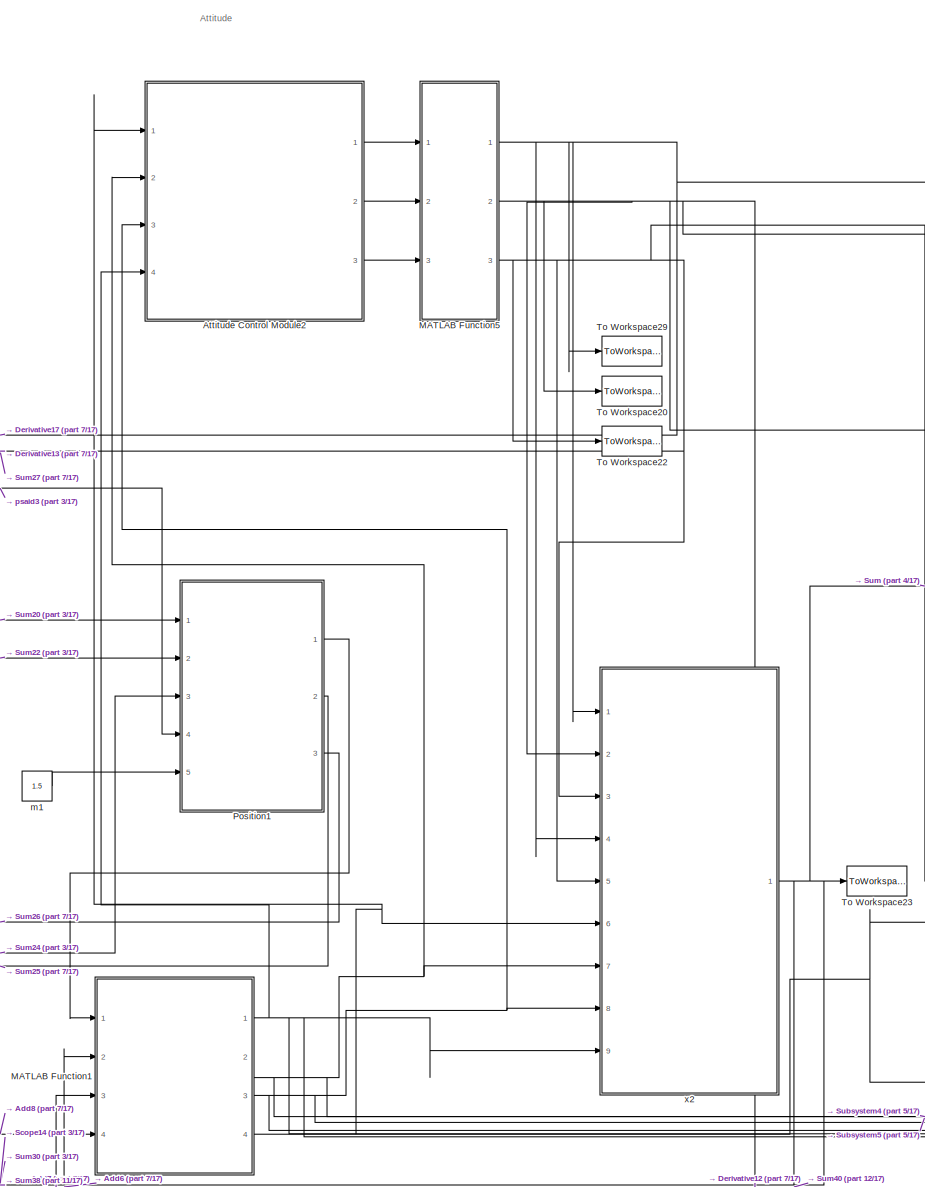
[diagram: root canvas - part 1/17, top left region]
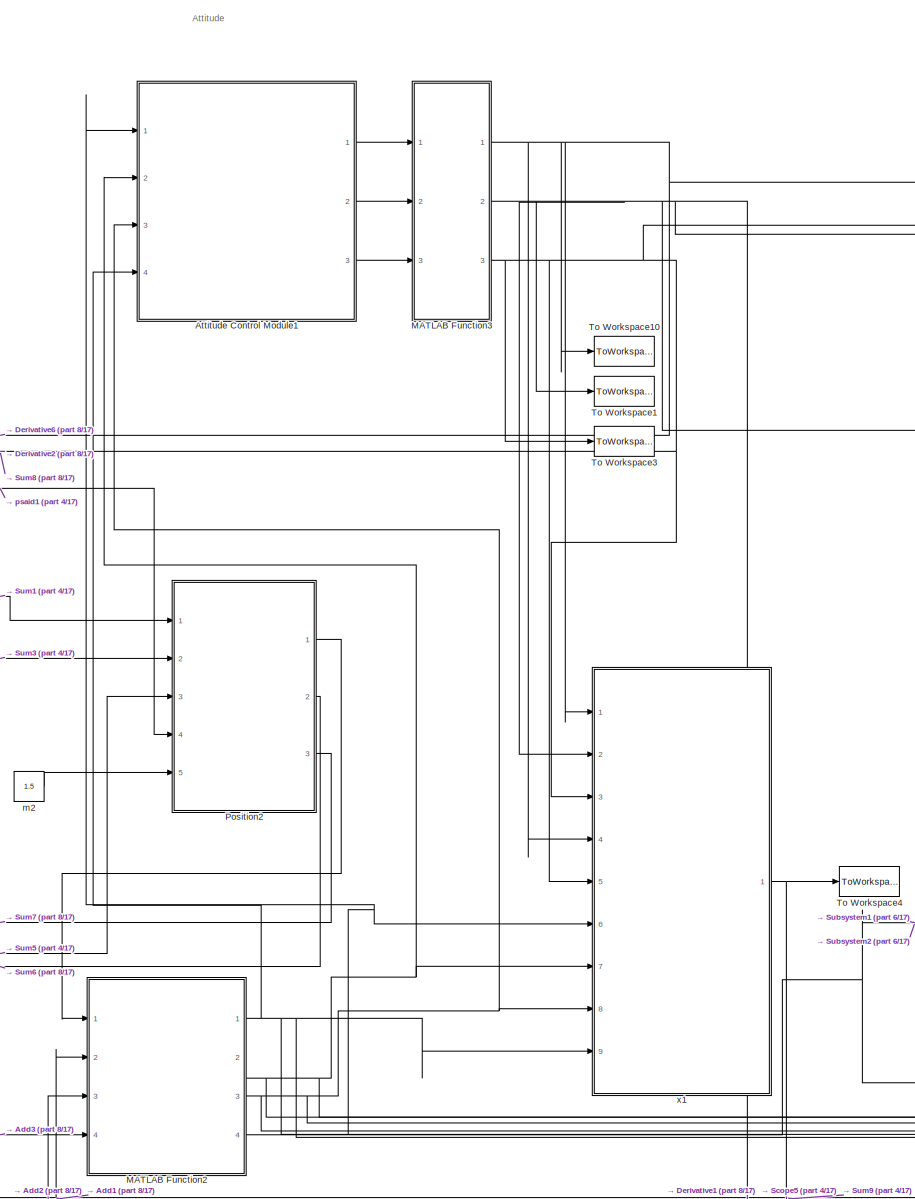
[diagram: root canvas - part 2/17, top right region]
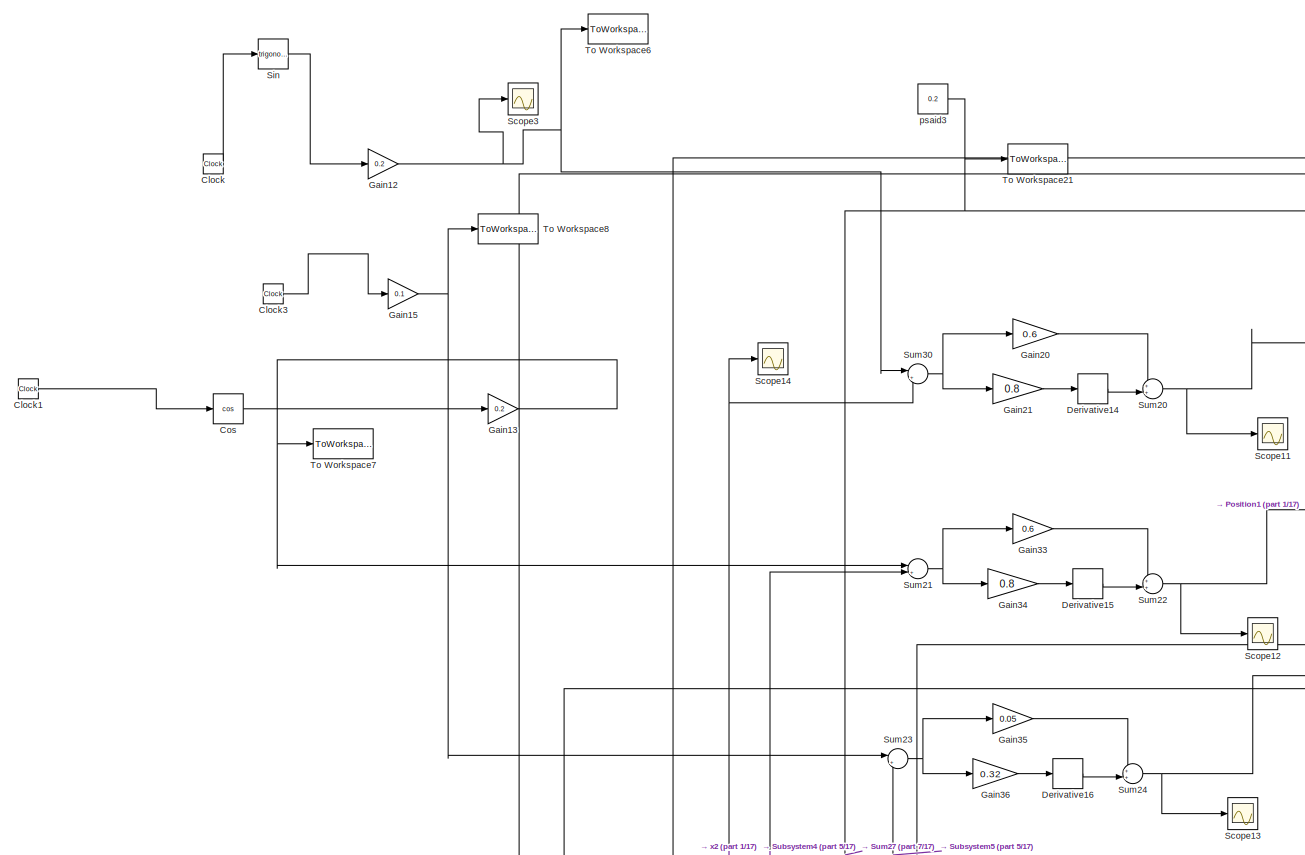
[diagram: root canvas - part 3/17, top left region]
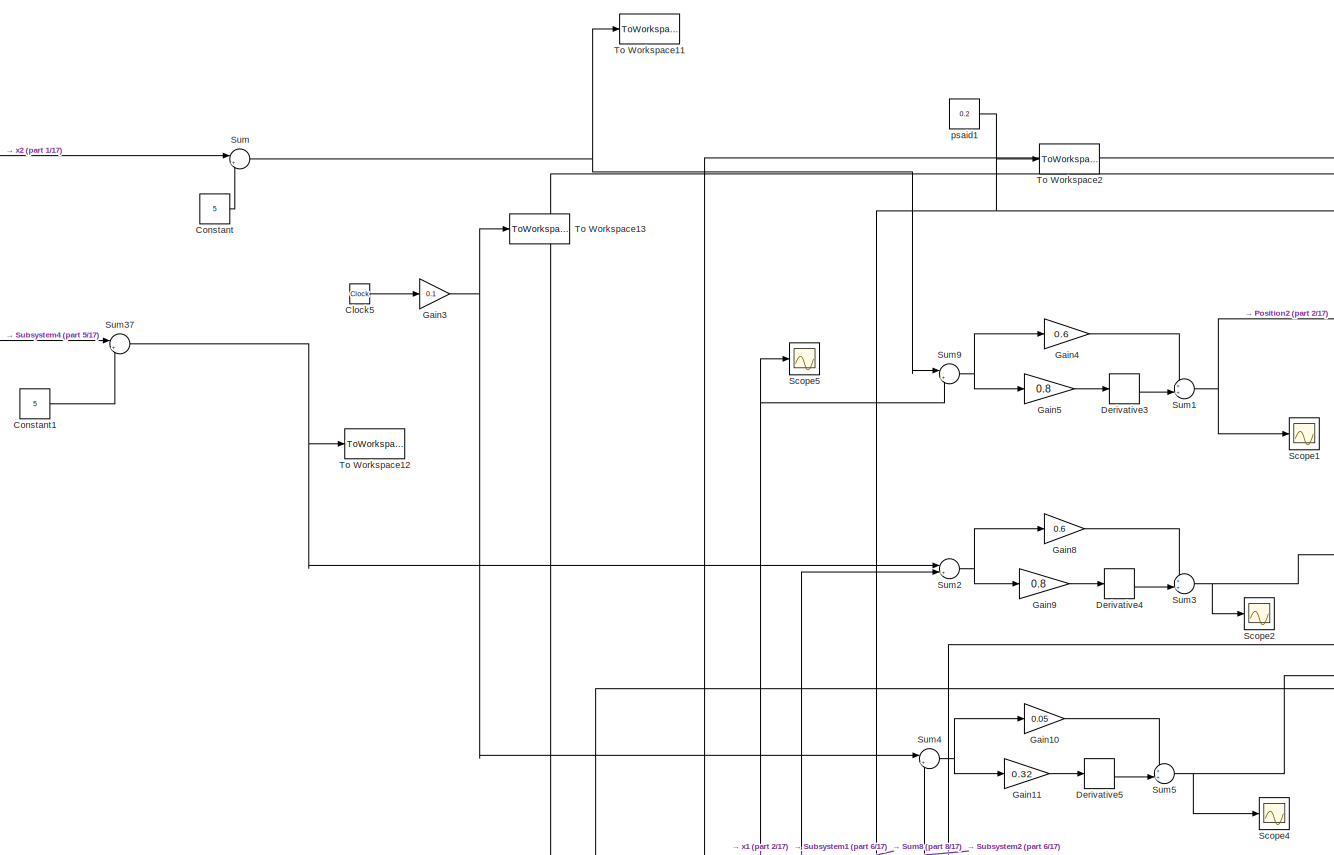
[diagram: root canvas - part 4/17, top center region]
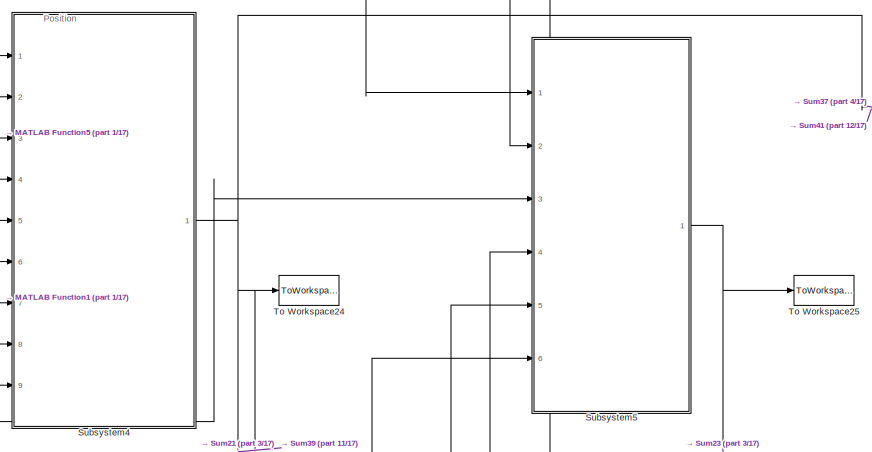
[diagram: root canvas - part 5/17, top center region]
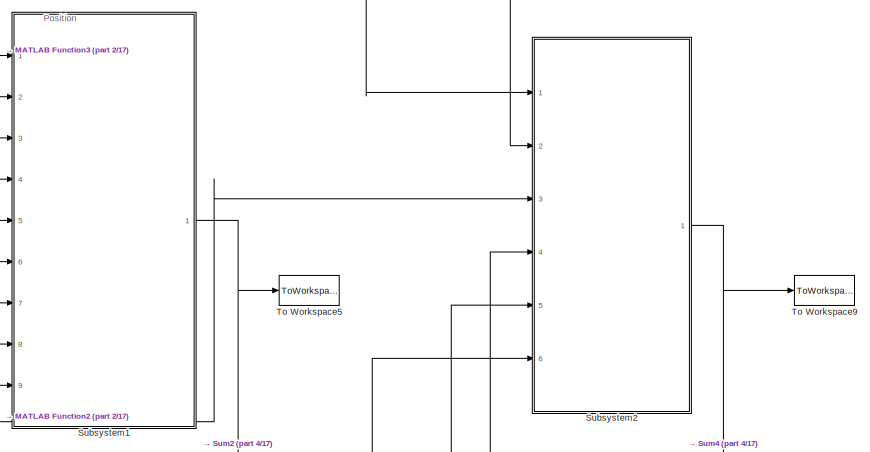
[diagram: root canvas - part 6/17, top right region]
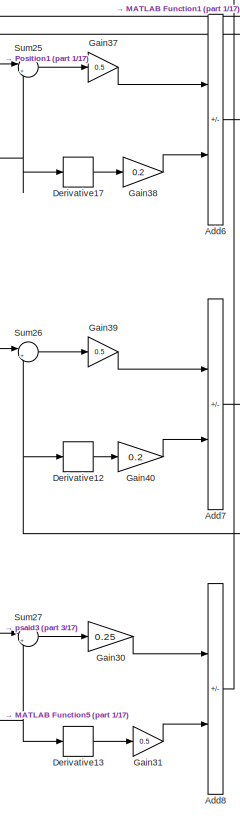
[diagram: root canvas - part 7/17, middle left region]
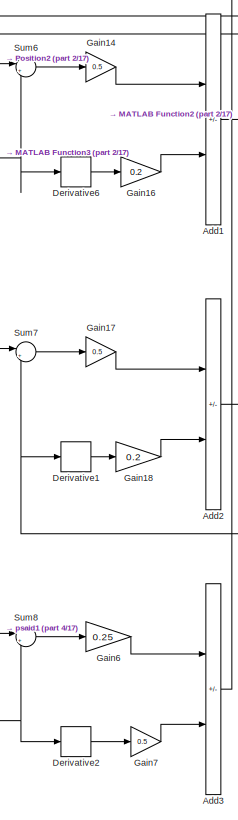
[diagram: root canvas - part 8/17, central region]
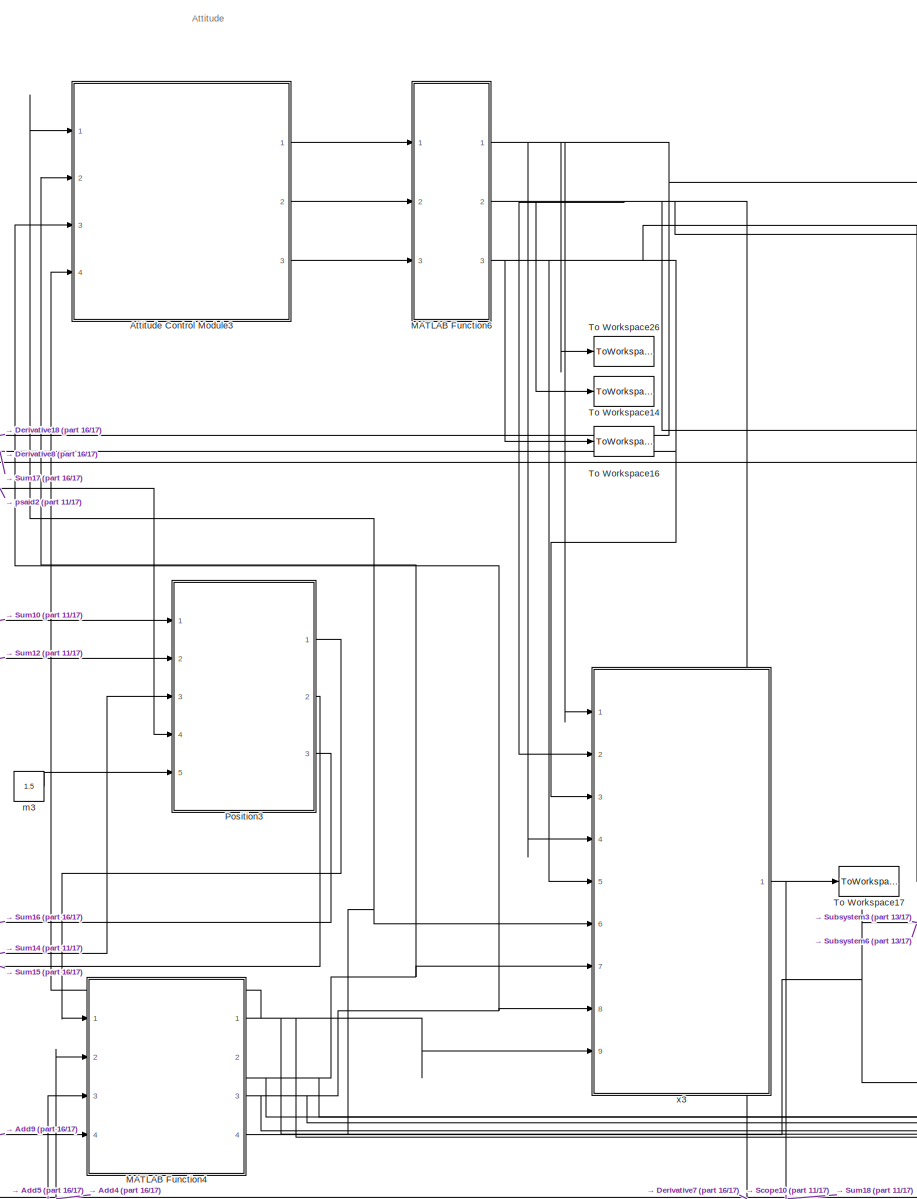
[diagram: root canvas - part 9/17, bottom left region]
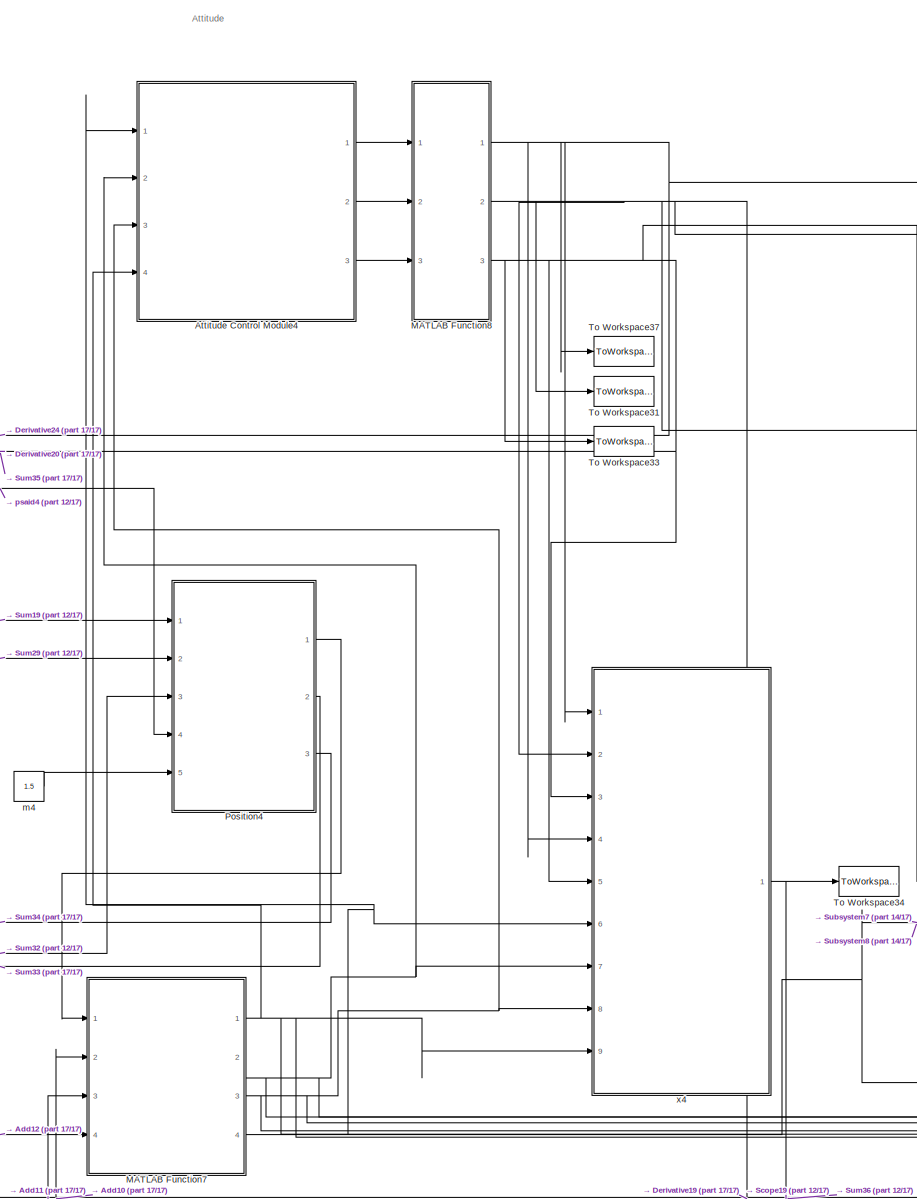
[diagram: root canvas - part 10/17, bottom right region]
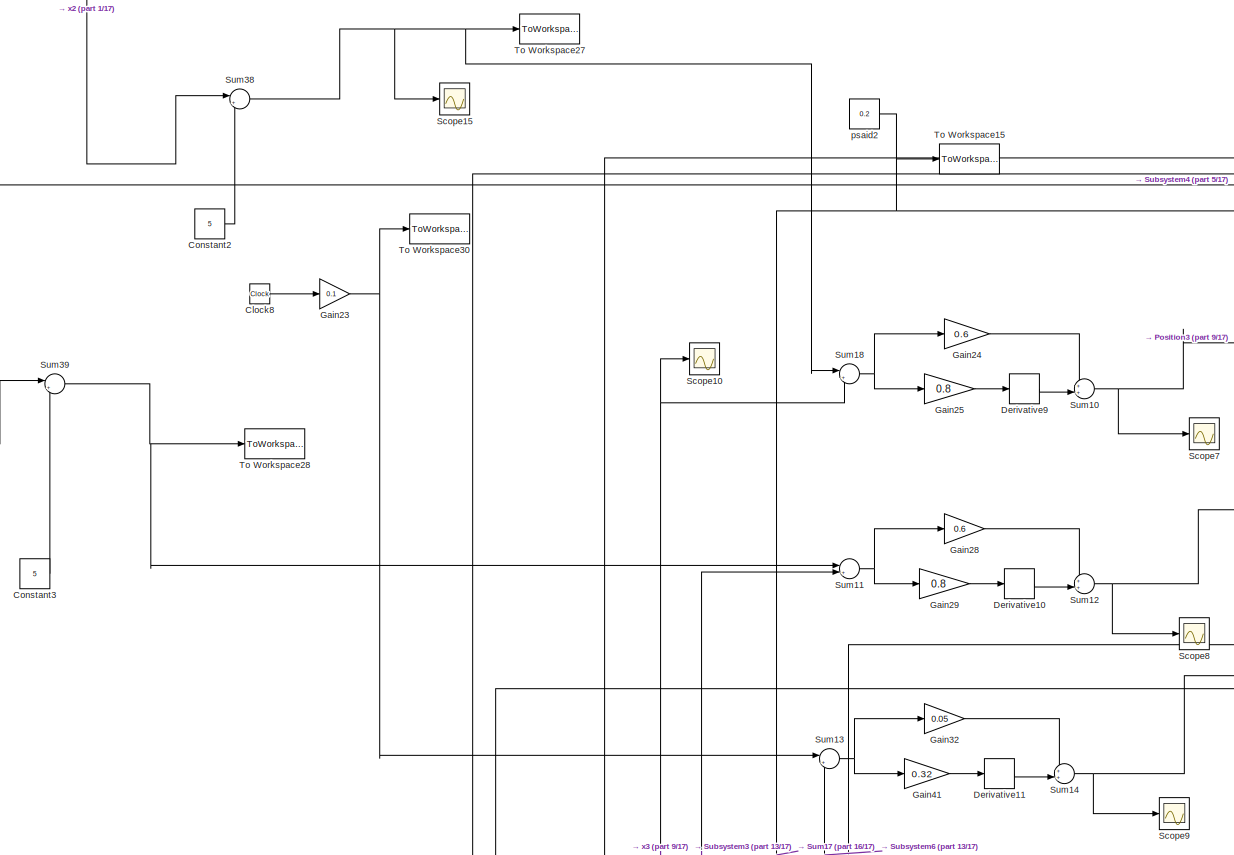
[diagram: root canvas - part 11/17, bottom left region]
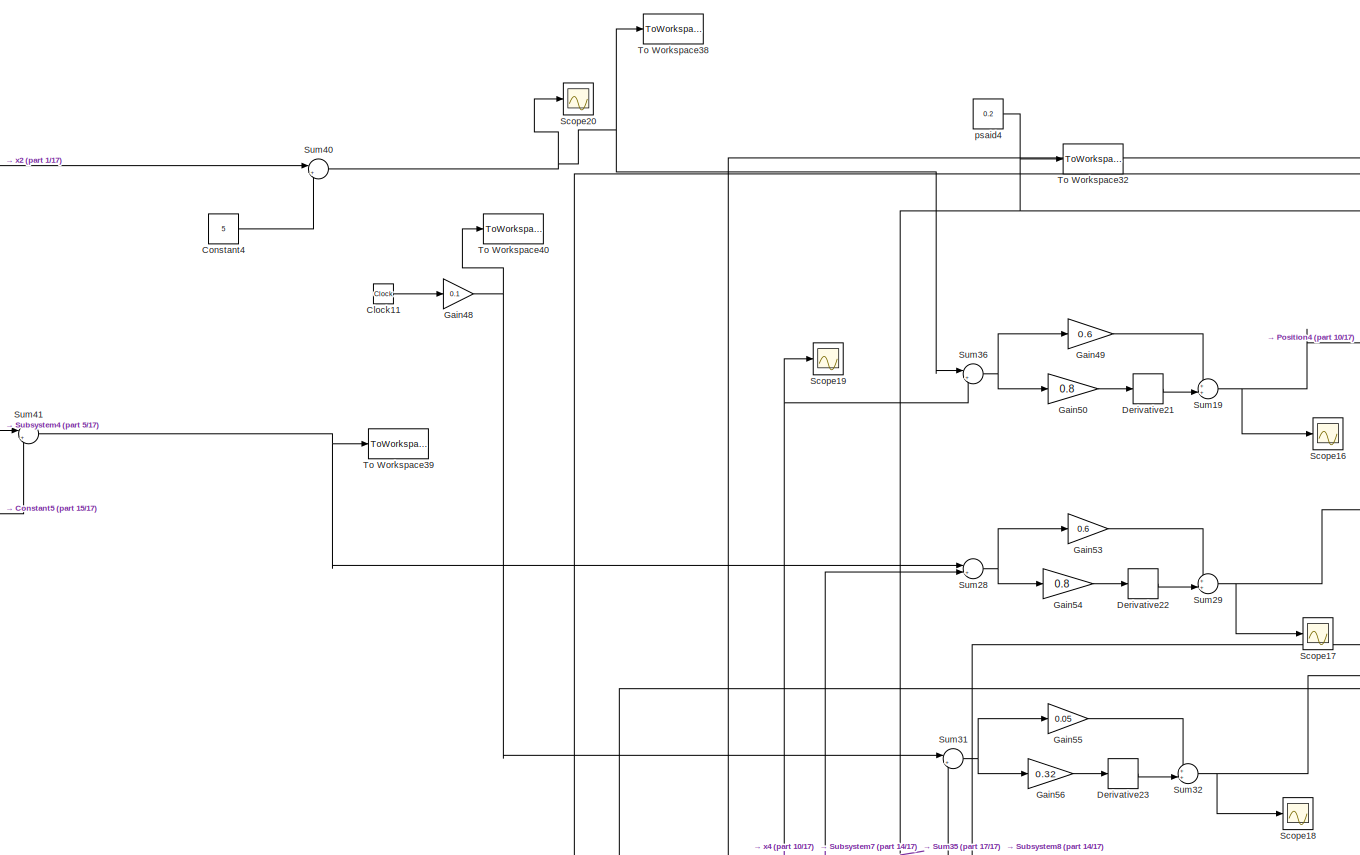
[diagram: root canvas - part 12/17, bottom center region]
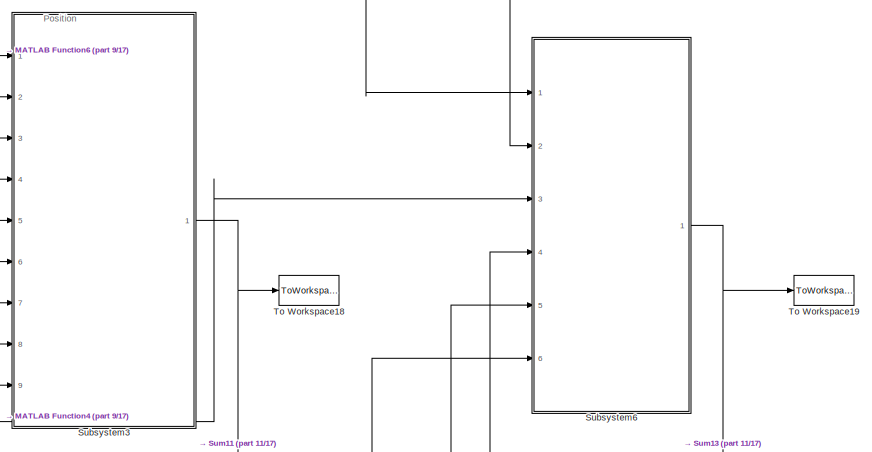
[diagram: root canvas - part 13/17, bottom center region]
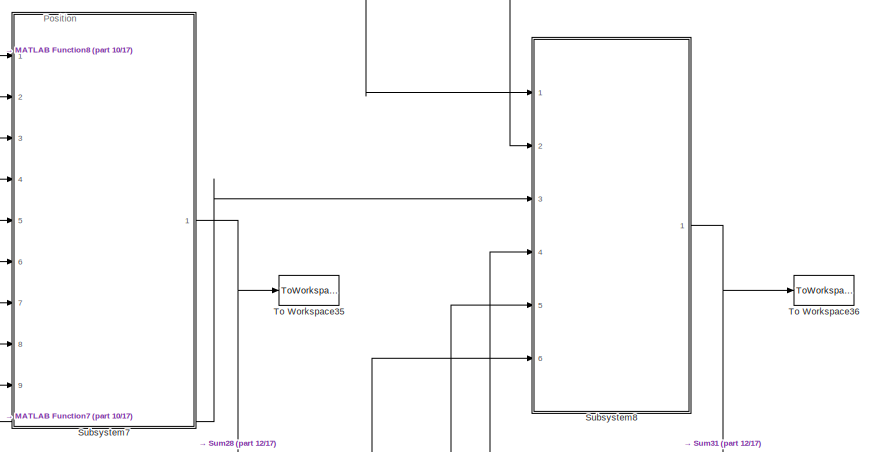
[diagram: root canvas - part 14/17, bottom right region]
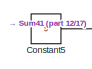
[diagram: root canvas - part 15/17, bottom center region]
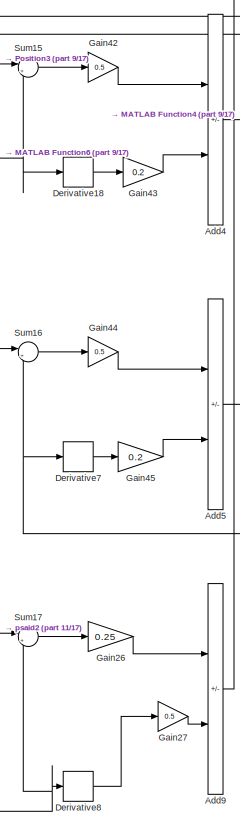
[diagram: root canvas - part 16/17, bottom left region]
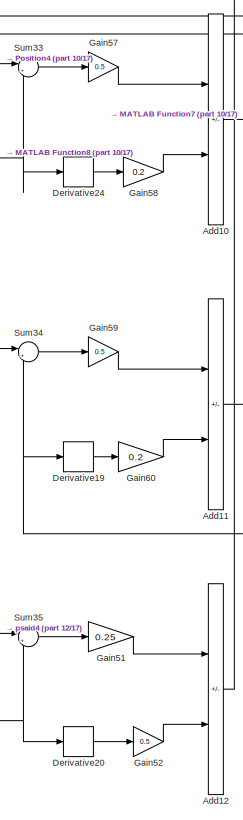
[diagram: root canvas - part 17/17, bottom right region]
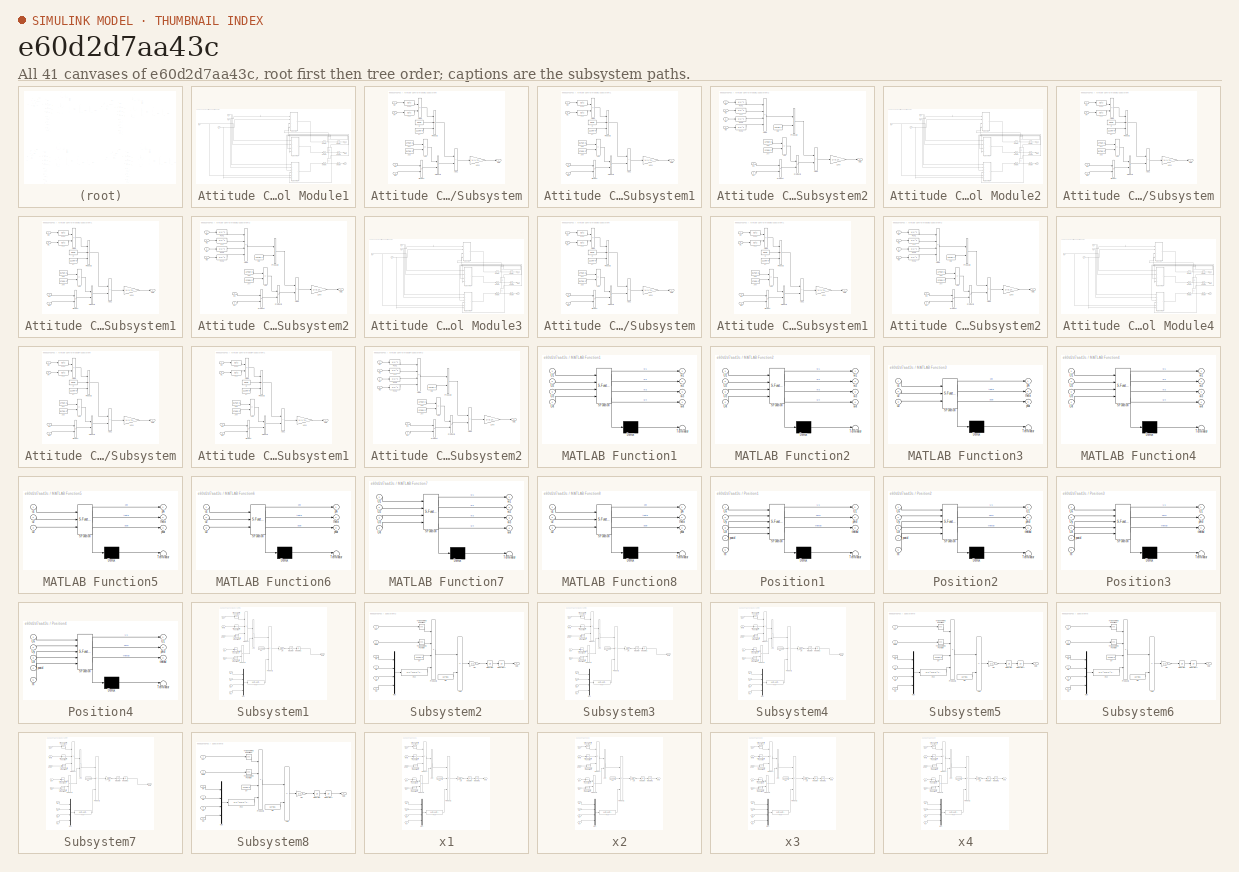
[diagram: thumbnail index - all 41 canvases of the model, root first then tree order]
MODEL slx_e60d2d7aa43c
KIND model
CONFIG AbsTol = auto
CONFIG EnableMultiTasking = off
CONFIG FixedStep = 0.1
CONFIG MaxStep = auto
CONFIG MinStep = auto
CONFIG RelTol = 1e-3
CONFIG SampleTimeConstraint = Unconstrained
CONFIG SolverName = FixedStepAuto
CONFIG StartTime = 0.0
CONFIG StopTime = 150
BLOCK [Sum] Add1
  IconShape = rectangular
  Inputs = +-
  Ports = [2, 1]
BLOCK [Sum] Add10
  IconShape = rectangular
  Inputs = +-
  Ports = [2, 1]
BLOCK [Sum] Add11
  IconShape = rectangular
  Inputs = +-
  Ports = [2, 1]
BLOCK [Sum] Add12
  IconShape = rectangular
  Inputs = +-
  Ports = [2, 1]
BLOCK [Sum] Add2
  IconShape = rectangular
  Inputs = +-
  Ports = [2, 1]
BLOCK [Sum] Add3
  IconShape = rectangular
  Inputs = +-
  Ports = [2, 1]
BLOCK [Sum] Add4
  IconShape = rectangular
  Inputs = +-
  Ports = [2, 1]
BLOCK [Sum] Add5
  IconShape = rectangular
  Inputs = +-
  Ports = [2, 1]
BLOCK [Sum] Add6
  IconShape = rectangular
  Inputs = +-
  Ports = [2, 1]
BLOCK [Sum] Add7
  IconShape = rectangular
  Inputs = +-
  Ports = [2, 1]
BLOCK [Sum] Add8
  IconShape = rectangular
  Inputs = +-
  Ports = [2, 1]
BLOCK [Sum] Add9
  IconShape = rectangular
  Inputs = +-
  Ports = [2, 1]
BLOCK [SubSystem] Attitude Control Module1
  Ports = [4, 3]
  RequestExecContextInheritance = off
BLOCK [Integrator] Attitude Control Module1/Integrator
  Ports = [1, 1]
BLOCK [Integrator] Attitude Control Module1/Integrator1
  Ports = [1, 1]
BLOCK [Integrator] Attitude Control Module1/Integrator2
  Ports = [1, 1]
BLOCK [Integrator] Attitude Control Module1/Integrator3
  Ports = [1, 1]
BLOCK [Integrator] Attitude Control Module1/Integrator4
  Ports = [1, 1]
BLOCK [Integrator] Attitude Control Module1/Integrator5
  Ports = [1, 1]
BLOCK [SubSystem] Attitude Control Module1/Subsystem
  Ports = [4, 1]
  RequestExecContextInheritance = off
BLOCK [Gain] Attitude Control Module1/Subsystem/1//Jxx
  Gain = 1/(1.745e-2)
BLOCK [Sum] Attitude Control Module1/Subsystem/Add
  IconShape = rectangular
  Inputs = +-
  Ports = [2, 1]
BLOCK [Sum] Attitude Control Module1/Subsystem/Add1
  IconShape = rectangular
  Ports = [2, 1]
BLOCK [Sum] Attitude Control Module1/Subsystem/Add2
  IconShape = rectangular
  Inputs = +-
  Ports = [2, 1]
BLOCK [Constant] Attitude Control Module1/Subsystem/CT
  Value = 1.116e-5
BLOCK [Fcn] Attitude Control Module1/Subsystem/Fcn
  Expr = u(1)^2
BLOCK [Fcn] Attitude Control Module1/Subsystem/Fcn1
  Expr = u(1)^2
BLOCK [Inport] Attitude Control Module1/Subsystem/In3
  Port = 3
BLOCK [Inport] Attitude Control Module1/Subsystem/In4
  Port = 4
BLOCK [Constant] Attitude Control Module1/Subsystem/Jyy
  Value = 1.745e-2
BLOCK [Constant] Attitude Control Module1/Subsystem/Jzz 
  Value = 3.175e-2
BLOCK [Outport] Attitude Control Module1/Subsystem/Out1
  VectorParamsAs1DForOutWhenUnconnected = off
BLOCK [Product] Attitude Control Module1/Subsystem/Product
  Ports = [2, 1]
BLOCK [Product] Attitude Control Module1/Subsystem/Product1
  Ports = [2, 1]
BLOCK [Product] Attitude Control Module1/Subsystem/Product2
  Inputs = 3
  Ports = [3, 1]
BLOCK [Constant] Attitude Control Module1/Subsystem/d
  Value = 0.225
BLOCK [Inport] Attitude Control Module1/Subsystem/w2
BLOCK [Inport] Attitude Control Module1/Subsystem/w4
  Port = 2
BLOCK [SubSystem] Attitude Control Module1/Subsystem1
  Ports = [4, 1]
  RequestExecContextInheritance = off
BLOCK [Gain] Attitude Control Module1/Subsystem1/1//Jxx
  Gain = 1/(1.745e-2)
BLOCK [Sum] Attitude Control Module1/Subsystem1/Add
  IconShape = rectangular
  Inputs = +-
  Ports = [2, 1]
BLOCK [Sum] Attitude Control Module1/Subsystem1/Add1
  IconShape = rectangular
  Ports = [2, 1]
BLOCK [Sum] Attitude Control Module1/Subsystem1/Add2
  IconShape = rectangular
  Inputs = +-
  Ports = [2, 1]
BLOCK [Constant] Attitude Control Module1/Subsystem1/CT
  Value = 1.116e-5
BLOCK [Fcn] Attitude Control Module1/Subsystem1/Fcn
  Expr = u(1)^2
BLOCK [Fcn] Attitude Control Module1/Subsystem1/Fcn1
  Expr = u(1)^2
BLOCK [Inport] Attitude Control Module1/Subsystem1/In3
  Port = 3
BLOCK [Inport] Attitude Control Module1/Subsystem1/In4
  Port = 4
BLOCK [Constant] Attitude Control Module1/Subsystem1/Jxx
  Value = 1.745e-2
BLOCK [Constant] Attitude Control Module1/Subsystem1/Jzz
  Value = 3.175e-2
BLOCK [Outport] Attitude Control Module1/Subsystem1/Out1
  VectorParamsAs1DForOutWhenUnconnected = off
BLOCK [Product] Attitude Control Module1/Subsystem1/Product
  Ports = [2, 1]
BLOCK [Product] Attitude Control Module1/Subsystem1/Product1
  Ports = [2, 1]
BLOCK [Product] Attitude Control Module1/Subsystem1/Product2
  Inputs = 3
  Ports = [3, 1]
BLOCK [Constant] Attitude Control Module1/Subsystem1/d
  Value = 0.225
BLOCK [Inport] Attitude Control Module1/Subsystem1/w1
  Port = 2
BLOCK [Inport] Attitude Control Module1/Subsystem1/w3
BLOCK [SubSystem] Attitude Control Module1/Subsystem2
  Ports = [6, 1]
  RequestExecContextInheritance = off
BLOCK [Gain] Attitude Control Module1/Subsystem2/1//Jxx
  Gain = 1/(3.175e-2)
BLOCK [Sum] Attitude Control Module1/Subsystem2/Add
  IconShape = rectangular
  Inputs = +-
  Ports = [2, 1]
BLOCK [Sum] Attitude Control Module1/Subsystem2/Add1
  IconShape = rectangular
  Ports = [2, 1]
BLOCK [Sum] Attitude Control Module1/Subsystem2/Add2
  IconShape = rectangular
  Inputs = +-+-
  Ports = [4, 1]
BLOCK [Constant] Attitude Control Module1/Subsystem2/CM
  Value = 1.474e-7
BLOCK [Fcn] Attitude Control Module1/Subsystem2/Fcn
  Expr = u(1)^2
BLOCK [Fcn] Attitude Control Module1/Subsystem2/Fcn1
  Expr = u(1)^2
BLOCK [Fcn] Attitude Control Module1/Subsystem2/Fcn2
  Expr = u(1)^2
BLOCK [Fcn] Attitude Control Module1/Subsystem2/Fcn3
  Expr = u(1)^2
BLOCK [Inport] Attitude Control Module1/Subsystem2/In3
  Port = 3
BLOCK [Inport] Attitude Control Module1/Subsystem2/In4
  Port = 4
BLOCK [Constant] Attitude Control Module1/Subsystem2/Jxx
  Value = 1.745e-2
BLOCK [Constant] Attitude Control Module1/Subsystem2/Jyy
  Value = 1.745e-2
BLOCK [Outport] Attitude Control Module1/Subsystem2/Out1
  VectorParamsAs1DForOutWhenUnconnected = off
BLOCK [Product] Attitude Control Module1/Subsystem2/Product
  Ports = [2, 1]
BLOCK [Product] Attitude Control Module1/Subsystem2/Product1
  Ports = [2, 1]
BLOCK [Product] Attitude Control Module1/Subsystem2/Product2
  Ports = [2, 1]
BLOCK [Inport] Attitude Control Module1/Subsystem2/w1
BLOCK [Inport] Attitude Control Module1/Subsystem2/w2
  Port = 2
BLOCK [Inport] Attitude Control Module1/Subsystem2/w3
  Port = 5
BLOCK [Inport] Attitude Control Module1/Subsystem2/w4
  Port = 6
BLOCK [Outport] Attitude Control Module1/phi
  VectorParamsAs1DForOutWhenUnconnected = off
BLOCK [Outport] Attitude Control Module1/psai
  Port = 3
  VectorParamsAs1DForOutWhenUnconnected = off
BLOCK [Outport] Attitude Control Module1/theta
  Port = 2
  VectorParamsAs1DForOutWhenUnconnected = off
BLOCK [Inport] Attitude Control Module1/w1
  Port = 4
BLOCK [Inport] Attitude Control Module1/w2
  Port = 2
BLOCK [Inport] Attitude Control Module1/w3
  Port = 3
BLOCK [Inport] Attitude Control Module1/w4
BLOCK [SubSystem] Attitude Control Module2
  Ports = [4, 3]
  RequestExecContextInheritance = off
BLOCK [Integrator] Attitude Control Module2/Integrator
  Ports = [1, 1]
BLOCK [Integrator] Attitude Control Module2/Integrator1
  Ports = [1, 1]
BLOCK [Integrator] Attitude Control Module2/Integrator2
  Ports = [1, 1]
BLOCK [Integrator] Attitude Control Module2/Integrator3
  Ports = [1, 1]
BLOCK [Integrator] Attitude Control Module2/Integrator4
  Ports = [1, 1]
BLOCK [Integrator] Attitude Control Module2/Integrator5
  Ports = [1, 1]
BLOCK [SubSystem] Attitude Control Module2/Subsystem
  Ports = [4, 1]
  RequestExecContextInheritance = off
BLOCK [Gain] Attitude Control Module2/Subsystem/1//Jxx
  Gain = 1/(1.745e-2)
BLOCK [Sum] Attitude Control Module2/Subsystem/Add
  IconShape = rectangular
  Inputs = +-
  Ports = [2, 1]
BLOCK [Sum] Attitude Control Module2/Subsystem/Add1
  IconShape = rectangular
  Ports = [2, 1]
BLOCK [Sum] Attitude Control Module2/Subsystem/Add2
  IconShape = rectangular
  Inputs = +-
  Ports = [2, 1]
BLOCK [Constant] Attitude Control Module2/Subsystem/CT
  Value = 1.116e-5
BLOCK [Fcn] Attitude Control Module2/Subsystem/Fcn
  Expr = u(1)^2
BLOCK [Fcn] Attitude Control Module2/Subsystem/Fcn1
  Expr = u(1)^2
BLOCK [Inport] Attitude Control Module2/Subsystem/In3
  Port = 3
BLOCK [Inport] Attitude Control Module2/Subsystem/In4
  Port = 4
BLOCK [Constant] Attitude Control Module2/Subsystem/Jyy
  Value = 1.745e-2
BLOCK [Constant] Attitude Control Module2/Subsystem/Jzz 
  Value = 3.175e-2
BLOCK [Outport] Attitude Control Module2/Subsystem/Out1
  VectorParamsAs1DForOutWhenUnconnected = off
BLOCK [Product] Attitude Control Module2/Subsystem/Product
  Ports = [2, 1]
BLOCK [Product] Attitude Control Module2/Subsystem/Product1
  Ports = [2, 1]
BLOCK [Product] Attitude Control Module2/Subsystem/Product2
  Inputs = 3
  Ports = [3, 1]
BLOCK [Constant] Attitude Control Module2/Subsystem/d
  Value = 0.225
BLOCK [Inport] Attitude Control Module2/Subsystem/w2
BLOCK [Inport] Attitude Control Module2/Subsystem/w4
  Port = 2
BLOCK [SubSystem] Attitude Control Module2/Subsystem1
  Ports = [4, 1]
  RequestExecContextInheritance = off
BLOCK [Gain] Attitude Control Module2/Subsystem1/1//Jxx
  Gain = 1/(1.745e-2)
BLOCK [Sum] Attitude Control Module2/Subsystem1/Add
  IconShape = rectangular
  Inputs = +-
  Ports = [2, 1]
BLOCK [Sum] Attitude Control Module2/Subsystem1/Add1
  IconShape = rectangular
  Ports = [2, 1]
BLOCK [Sum] Attitude Control Module2/Subsystem1/Add2
  IconShape = rectangular
  Inputs = +-
  Ports = [2, 1]
BLOCK [Constant] Attitude Control Module2/Subsystem1/CT
  Value = 1.116e-5
BLOCK [Fcn] Attitude Control Module2/Subsystem1/Fcn
  Expr = u(1)^2
BLOCK [Fcn] Attitude Control Module2/Subsystem1/Fcn1
  Expr = u(1)^2
BLOCK [Inport] Attitude Control Module2/Subsystem1/In3
  Port = 3
BLOCK [Inport] Attitude Control Module2/Subsystem1/In4
  Port = 4
BLOCK [Constant] Attitude Control Module2/Subsystem1/Jxx
  Value = 1.745e-2
BLOCK [Constant] Attitude Control Module2/Subsystem1/Jzz
  Value = 3.175e-2
BLOCK [Outport] Attitude Control Module2/Subsystem1/Out1
  VectorParamsAs1DForOutWhenUnconnected = off
BLOCK [Product] Attitude Control Module2/Subsystem1/Product
  Ports = [2, 1]
BLOCK [Product] Attitude Control Module2/Subsystem1/Product1
  Ports = [2, 1]
BLOCK [Product] Attitude Control Module2/Subsystem1/Product2
  Inputs = 3
  Ports = [3, 1]
BLOCK [Constant] Attitude Control Module2/Subsystem1/d
  Value = 0.225
BLOCK [Inport] Attitude Control Module2/Subsystem1/w1
  Port = 2
BLOCK [Inport] Attitude Control Module2/Subsystem1/w3
BLOCK [SubSystem] Attitude Control Module2/Subsystem2
  Ports = [6, 1]
  RequestExecContextInheritance = off
BLOCK [Gain] Attitude Control Module2/Subsystem2/1//Jxx
  Gain = 1/(3.175e-2)
BLOCK [Sum] Attitude Control Module2/Subsystem2/Add
  IconShape = rectangular
  Inputs = +-
  Ports = [2, 1]
BLOCK [Sum] Attitude Control Module2/Subsystem2/Add1
  IconShape = rectangular
  Ports = [2, 1]
BLOCK [Sum] Attitude Control Module2/Subsystem2/Add2
  IconShape = rectangular
  Inputs = +-+-
  Ports = [4, 1]
BLOCK [Constant] Attitude Control Module2/Subsystem2/CM
  Value = 1.474e-7
BLOCK [Fcn] Attitude Control Module2/Subsystem2/Fcn
  Expr = u(1)^2
BLOCK [Fcn] Attitude Control Module2/Subsystem2/Fcn1
  Expr = u(1)^2
BLOCK [Fcn] Attitude Control Module2/Subsystem2/Fcn2
  Expr = u(1)^2
BLOCK [Fcn] Attitude Control Module2/Subsystem2/Fcn3
  Expr = u(1)^2
BLOCK [Inport] Attitude Control Module2/Subsystem2/In3
  Port = 3
BLOCK [Inport] Attitude Control Module2/Subsystem2/In4
  Port = 4
BLOCK [Constant] Attitude Control Module2/Subsystem2/Jxx
  Value = 1.745e-2
BLOCK [Constant] Attitude Control Module2/Subsystem2/Jyy
  Value = 1.745e-2
BLOCK [Outport] Attitude Control Module2/Subsystem2/Out1
  VectorParamsAs1DForOutWhenUnconnected = off
BLOCK [Product] Attitude Control Module2/Subsystem2/Product
  Ports = [2, 1]
BLOCK [Product] Attitude Control Module2/Subsystem2/Product1
  Ports = [2, 1]
BLOCK [Product] Attitude Control Module2/Subsystem2/Product2
  Ports = [2, 1]
BLOCK [Inport] Attitude Control Module2/Subsystem2/w1
BLOCK [Inport] Attitude Control Module2/Subsystem2/w2
  Port = 2
BLOCK [Inport] Attitude Control Module2/Subsystem2/w3
  Port = 5
BLOCK [Inport] Attitude Control Module2/Subsystem2/w4
  Port = 6
BLOCK [Outport] Attitude Control Module2/phi
  VectorParamsAs1DForOutWhenUnconnected = off
BLOCK [Outport] Attitude Control Module2/psai
  Port = 3
  VectorParamsAs1DForOutWhenUnconnected = off
BLOCK [Outport] Attitude Control Module2/theta
  Port = 2
  VectorParamsAs1DForOutWhenUnconnected = off
BLOCK [Inport] Attitude Control Module2/w1
  Port = 4
BLOCK [Inport] Attitude Control Module2/w2
  Port = 2
BLOCK [Inport] Attitude Control Module2/w3
  Port = 3
BLOCK [Inport] Attitude Control Module2/w4
BLOCK [SubSystem] Attitude Control Module3
  Ports = [4, 3]
  RequestExecContextInheritance = off
BLOCK [Integrator] Attitude Control Module3/Integrator
  Ports = [1, 1]
BLOCK [Integrator] Attitude Control Module3/Integrator1
  Ports = [1, 1]
BLOCK [Integrator] Attitude Control Module3/Integrator2
  Ports = [1, 1]
BLOCK [Integrator] Attitude Control Module3/Integrator3
  Ports = [1, 1]
BLOCK [Integrator] Attitude Control Module3/Integrator4
  Ports = [1, 1]
BLOCK [Integrator] Attitude Control Module3/Integrator5
  Ports = [1, 1]
BLOCK [SubSystem] Attitude Control Module3/Subsystem
  Ports = [4, 1]
  RequestExecContextInheritance = off
BLOCK [Gain] Attitude Control Module3/Subsystem/1//Jxx
  Gain = 1/(1.745e-2)
BLOCK [Sum] Attitude Control Module3/Subsystem/Add
  IconShape = rectangular
  Inputs = +-
  Ports = [2, 1]
BLOCK [Sum] Attitude Control Module3/Subsystem/Add1
  IconShape = rectangular
  Ports = [2, 1]
BLOCK [Sum] Attitude Control Module3/Subsystem/Add2
  IconShape = rectangular
  Inputs = +-
  Ports = [2, 1]
BLOCK [Constant] Attitude Control Module3/Subsystem/CT
  Value = 1.116e-5
BLOCK [Fcn] Attitude Control Module3/Subsystem/Fcn
  Expr = u(1)^2
BLOCK [Fcn] Attitude Control Module3/Subsystem/Fcn1
  Expr = u(1)^2
BLOCK [Inport] Attitude Control Module3/Subsystem/In3
  Port = 3
BLOCK [Inport] Attitude Control Module3/Subsystem/In4
  Port = 4
BLOCK [Constant] Attitude Control Module3/Subsystem/Jyy
  Value = 1.745e-2
BLOCK [Constant] Attitude Control Module3/Subsystem/Jzz 
  Value = 3.175e-2
BLOCK [Outport] Attitude Control Module3/Subsystem/Out1
  VectorParamsAs1DForOutWhenUnconnected = off
BLOCK [Product] Attitude Control Module3/Subsystem/Product
  Ports = [2, 1]
BLOCK [Product] Attitude Control Module3/Subsystem/Product1
  Ports = [2, 1]
BLOCK [Product] Attitude Control Module3/Subsystem/Product2
  Inputs = 3
  Ports = [3, 1]
BLOCK [Constant] Attitude Control Module3/Subsystem/d
  Value = 0.225
BLOCK [Inport] Attitude Control Module3/Subsystem/w2
BLOCK [Inport] Attitude Control Module3/Subsystem/w4
  Port = 2
BLOCK [SubSystem] Attitude Control Module3/Subsystem1
  Ports = [4, 1]
  RequestExecContextInheritance = off
BLOCK [Gain] Attitude Control Module3/Subsystem1/1//Jxx
  Gain = 1/(1.745e-2)
BLOCK [Sum] Attitude Control Module3/Subsystem1/Add
  IconShape = rectangular
  Inputs = +-
  Ports = [2, 1]
BLOCK [Sum] Attitude Control Module3/Subsystem1/Add1
  IconShape = rectangular
  Ports = [2, 1]
BLOCK [Sum] Attitude Control Module3/Subsystem1/Add2
  IconShape = rectangular
  Inputs = +-
  Ports = [2, 1]
BLOCK [Constant] Attitude Control Module3/Subsystem1/CT
  Value = 1.116e-5
BLOCK [Fcn] Attitude Control Module3/Subsystem1/Fcn
  Expr = u(1)^2
BLOCK [Fcn] Attitude Control Module3/Subsystem1/Fcn1
  Expr = u(1)^2
BLOCK [Inport] Attitude Control Module3/Subsystem1/In3
  Port = 3
BLOCK [Inport] Attitude Control Module3/Subsystem1/In4
  Port = 4
BLOCK [Constant] Attitude Control Module3/Subsystem1/Jxx
  Value = 1.745e-2
BLOCK [Constant] Attitude Control Module3/Subsystem1/Jzz
  Value = 3.175e-2
BLOCK [Outport] Attitude Control Module3/Subsystem1/Out1
  VectorParamsAs1DForOutWhenUnconnected = off
BLOCK [Product] Attitude Control Module3/Subsystem1/Product
  Ports = [2, 1]
BLOCK [Product] Attitude Control Module3/Subsystem1/Product1
  Ports = [2, 1]
BLOCK [Product] Attitude Control Module3/Subsystem1/Product2
  Inputs = 3
  Ports = [3, 1]
BLOCK [Constant] Attitude Control Module3/Subsystem1/d
  Value = 0.225
BLOCK [Inport] Attitude Control Module3/Subsystem1/w1
  Port = 2
BLOCK [Inport] Attitude Control Module3/Subsystem1/w3
BLOCK [SubSystem] Attitude Control Module3/Subsystem2
  Ports = [6, 1]
  RequestExecContextInheritance = off
BLOCK [Gain] Attitude Control Module3/Subsystem2/1//Jxx
  Gain = 1/(3.175e-2)
BLOCK [Sum] Attitude Control Module3/Subsystem2/Add
  IconShape = rectangular
  Inputs = +-
  Ports = [2, 1]
BLOCK [Sum] Attitude Control Module3/Subsystem2/Add1
  IconShape = rectangular
  Ports = [2, 1]
BLOCK [Sum] Attitude Control Module3/Subsystem2/Add2
  IconShape = rectangular
  Inputs = +-+-
  Ports = [4, 1]
BLOCK [Constant] Attitude Control Module3/Subsystem2/CM
  Value = 1.474e-7
BLOCK [Fcn] Attitude Control Module3/Subsystem2/Fcn
  Expr = u(1)^2
BLOCK [Fcn] Attitude Control Module3/Subsystem2/Fcn1
  Expr = u(1)^2
BLOCK [Fcn] Attitude Control Module3/Subsystem2/Fcn2
  Expr = u(1)^2
BLOCK [Fcn] Attitude Control Module3/Subsystem2/Fcn3
  Expr = u(1)^2
BLOCK [Inport] Attitude Control Module3/Subsystem2/In3
  Port = 3
BLOCK [Inport] Attitude Control Module3/Subsystem2/In4
  Port = 4
BLOCK [Constant] Attitude Control Module3/Subsystem2/Jxx
  Value = 1.745e-2
BLOCK [Constant] Attitude Control Module3/Subsystem2/Jyy
  Value = 1.745e-2
BLOCK [Outport] Attitude Control Module3/Subsystem2/Out1
  VectorParamsAs1DForOutWhenUnconnected = off
BLOCK [Product] Attitude Control Module3/Subsystem2/Product
  Ports = [2, 1]
BLOCK [Product] Attitude Control Module3/Subsystem2/Product1
  Ports = [2, 1]
BLOCK [Product] Attitude Control Module3/Subsystem2/Product2
  Ports = [2, 1]
BLOCK [Inport] Attitude Control Module3/Subsystem2/w1
BLOCK [Inport] Attitude Control Module3/Subsystem2/w2
  Port = 2
BLOCK [Inport] Attitude Control Module3/Subsystem2/w3
  Port = 5
BLOCK [Inport] Attitude Control Module3/Subsystem2/w4
  Port = 6
BLOCK [Outport] Attitude Control Module3/phi
  VectorParamsAs1DForOutWhenUnconnected = off
BLOCK [Outport] Attitude Control Module3/psai
  Port = 3
  VectorParamsAs1DForOutWhenUnconnected = off
BLOCK [Outport] Attitude Control Module3/theta
  Port = 2
  VectorParamsAs1DForOutWhenUnconnected = off
BLOCK [Inport] Attitude Control Module3/w1
  Port = 4
BLOCK [Inport] Attitude Control Module3/w2
  Port = 2
BLOCK [Inport] Attitude Control Module3/w3
  Port = 3
BLOCK [Inport] Attitude Control Module3/w4
BLOCK [SubSystem] Attitude Control Module4
  Ports = [4, 3]
  RequestExecContextInheritance = off
BLOCK [Integrator] Attitude Control Module4/Integrator
  Ports = [1, 1]
BLOCK [Integrator] Attitude Control Module4/Integrator1
  Ports = [1, 1]
BLOCK [Integrator] Attitude Control Module4/Integrator2
  Ports = [1, 1]
BLOCK [Integrator] Attitude Control Module4/Integrator3
  Ports = [1, 1]
BLOCK [Integrator] Attitude Control Module4/Integrator4
  Ports = [1, 1]
BLOCK [Integrator] Attitude Control Module4/Integrator5
  Ports = [1, 1]
BLOCK [SubSystem] Attitude Control Module4/Subsystem
  Ports = [4, 1]
  RequestExecContextInheritance = off
BLOCK [Gain] Attitude Control Module4/Subsystem/1//Jxx
  Gain = 1/(1.745e-2)
BLOCK [Sum] Attitude Control Module4/Subsystem/Add
  IconShape = rectangular
  Inputs = +-
  Ports = [2, 1]
BLOCK [Sum] Attitude Control Module4/Subsystem/Add1
  IconShape = rectangular
  Ports = [2, 1]
BLOCK [Sum] Attitude Control Module4/Subsystem/Add2
  IconShape = rectangular
  Inputs = +-
  Ports = [2, 1]
BLOCK [Constant] Attitude Control Module4/Subsystem/CT
  Value = 1.116e-5
BLOCK [Fcn] Attitude Control Module4/Subsystem/Fcn
  Expr = u(1)^2
BLOCK [Fcn] Attitude Control Module4/Subsystem/Fcn1
  Expr = u(1)^2
BLOCK [Inport] Attitude Control Module4/Subsystem/In3
  Port = 3
BLOCK [Inport] Attitude Control Module4/Subsystem/In4
  Port = 4
BLOCK [Constant] Attitude Control Module4/Subsystem/Jyy
  Value = 1.745e-2
BLOCK [Constant] Attitude Control Module4/Subsystem/Jzz 
  Value = 3.175e-2
BLOCK [Outport] Attitude Control Module4/Subsystem/Out1
  VectorParamsAs1DForOutWhenUnconnected = off
BLOCK [Product] Attitude Control Module4/Subsystem/Product
  Ports = [2, 1]
BLOCK [Product] Attitude Control Module4/Subsystem/Product1
  Ports = [2, 1]
BLOCK [Product] Attitude Control Module4/Subsystem/Product2
  Inputs = 3
  Ports = [3, 1]
BLOCK [Constant] Attitude Control Module4/Subsystem/d
  Value = 0.225
BLOCK [Inport] Attitude Control Module4/Subsystem/w2
BLOCK [Inport] Attitude Control Module4/Subsystem/w4
  Port = 2
BLOCK [SubSystem] Attitude Control Module4/Subsystem1
  Ports = [4, 1]
  RequestExecContextInheritance = off
BLOCK [Gain] Attitude Control Module4/Subsystem1/1//Jxx
  Gain = 1/(1.745e-2)
BLOCK [Sum] Attitude Control Module4/Subsystem1/Add
  IconShape = rectangular
  Inputs = +-
  Ports = [2, 1]
BLOCK [Sum] Attitude Control Module4/Subsystem1/Add1
  IconShape = rectangular
  Ports = [2, 1]
BLOCK [Sum] Attitude Control Module4/Subsystem1/Add2
  IconShape = rectangular
  Inputs = +-
  Ports = [2, 1]
BLOCK [Constant] Attitude Control Module4/Subsystem1/CT
  Value = 1.116e-5
BLOCK [Fcn] Attitude Control Module4/Subsystem1/Fcn
  Expr = u(1)^2
BLOCK [Fcn] Attitude Control Module4/Subsystem1/Fcn1
  Expr = u(1)^2
BLOCK [Inport] Attitude Control Module4/Subsystem1/In3
  Port = 3
BLOCK [Inport] Attitude Control Module4/Subsystem1/In4
  Port = 4
BLOCK [Constant] Attitude Control Module4/Subsystem1/Jxx
  Value = 1.745e-2
BLOCK [Constant] Attitude Control Module4/Subsystem1/Jzz
  Value = 3.175e-2
BLOCK [Outport] Attitude Control Module4/Subsystem1/Out1
  VectorParamsAs1DForOutWhenUnconnected = off
BLOCK [Product] Attitude Control Module4/Subsystem1/Product
  Ports = [2, 1]
BLOCK [Product] Attitude Control Module4/Subsystem1/Product1
  Ports = [2, 1]
BLOCK [Product] Attitude Control Module4/Subsystem1/Product2
  Inputs = 3
  Ports = [3, 1]
BLOCK [Constant] Attitude Control Module4/Subsystem1/d
  Value = 0.225
BLOCK [Inport] Attitude Control Module4/Subsystem1/w1
  Port = 2
BLOCK [Inport] Attitude Control Module4/Subsystem1/w3
BLOCK [SubSystem] Attitude Control Module4/Subsystem2
  Ports = [6, 1]
  RequestExecContextInheritance = off
BLOCK [Gain] Attitude Control Module4/Subsystem2/1//Jxx
  Gain = 1/(3.175e-2)
BLOCK [Sum] Attitude Control Module4/Subsystem2/Add
  IconShape = rectangular
  Inputs = +-
  Ports = [2, 1]
BLOCK [Sum] Attitude Control Module4/Subsystem2/Add1
  IconShape = rectangular
  Ports = [2, 1]
BLOCK [Sum] Attitude Control Module4/Subsystem2/Add2
  IconShape = rectangular
  Inputs = +-+-
  Ports = [4, 1]
BLOCK [Constant] Attitude Control Module4/Subsystem2/CM
  Value = 1.474e-7
BLOCK [Fcn] Attitude Control Module4/Subsystem2/Fcn
  Expr = u(1)^2
BLOCK [Fcn] Attitude Control Module4/Subsystem2/Fcn1
  Expr = u(1)^2
BLOCK [Fcn] Attitude Control Module4/Subsystem2/Fcn2
  Expr = u(1)^2
BLOCK [Fcn] Attitude Control Module4/Subsystem2/Fcn3
  Expr = u(1)^2
BLOCK [Inport] Attitude Control Module4/Subsystem2/In3
  Port = 3
BLOCK [Inport] Attitude Control Module4/Subsystem2/In4
  Port = 4
BLOCK [Constant] Attitude Control Module4/Subsystem2/Jxx
  Value = 1.745e-2
BLOCK [Constant] Attitude Control Module4/Subsystem2/Jyy
  Value = 1.745e-2
BLOCK [Outport] Attitude Control Module4/Subsystem2/Out1
  VectorParamsAs1DForOutWhenUnconnected = off
BLOCK [Product] Attitude Control Module4/Subsystem2/Product
  Ports = [2, 1]
BLOCK [Product] Attitude Control Module4/Subsystem2/Product1
  Ports = [2, 1]
BLOCK [Product] Attitude Control Module4/Subsystem2/Product2
  Ports = [2, 1]
BLOCK [Inport] Attitude Control Module4/Subsystem2/w1
BLOCK [Inport] Attitude Control Module4/Subsystem2/w2
  Port = 2
BLOCK [Inport] Attitude Control Module4/Subsystem2/w3
  Port = 5
BLOCK [Inport] Attitude Control Module4/Subsystem2/w4
  Port = 6
BLOCK [Outport] Attitude Control Module4/phi
  VectorParamsAs1DForOutWhenUnconnected = off
BLOCK [Outport] Attitude Control Module4/psai
  Port = 3
  VectorParamsAs1DForOutWhenUnconnected = off
BLOCK [Outport] Attitude Control Module4/theta
  Port = 2
  VectorParamsAs1DForOutWhenUnconnected = off
BLOCK [Inport] Attitude Control Module4/w1
  Port = 4
BLOCK [Inport] Attitude Control Module4/w2
  Port = 2
BLOCK [Inport] Attitude Control Module4/w3
  Port = 3
BLOCK [Inport] Attitude Control Module4/w4
BLOCK [Clock] Clock
BLOCK [Clock] Clock1
BLOCK [Clock] Clock11
BLOCK [Clock] Clock3
BLOCK [Clock] Clock5
BLOCK [Clock] Clock8
BLOCK [Constant] Constant
  Value = 5
BLOCK [Constant] Constant1
  Value = 5
BLOCK [Constant] Constant2
  Value = 5
BLOCK [Constant] Constant3
  Value = 5
BLOCK [Constant] Constant4
  Value = 5
BLOCK [Constant] Constant5
  Value = 5
BLOCK [Trigonometry] Cos
  Operator = cos
  Ports = [1, 1]
BLOCK [Derivative] Derivative1
BLOCK [Derivative] Derivative10
BLOCK [Derivative] Derivative11
BLOCK [Derivative] Derivative12
BLOCK [Derivative] Derivative13
BLOCK [Derivative] Derivative14
BLOCK [Derivative] Derivative15
BLOCK [Derivative] Derivative16
BLOCK [Derivative] Derivative17
BLOCK [Derivative] Derivative18
BLOCK [Derivative] Derivative19
BLOCK [Derivative] Derivative2
BLOCK [Derivative] Derivative20
BLOCK [Derivative] Derivative21
BLOCK [Derivative] Derivative22
BLOCK [Derivative] Derivative23
BLOCK [Derivative] Derivative24
BLOCK [Derivative] Derivative3
BLOCK [Derivative] Derivative4
BLOCK [Derivative] Derivative5
BLOCK [Derivative] Derivative6
BLOCK [Derivative] Derivative7
BLOCK [Derivative] Derivative8
BLOCK [Derivative] Derivative9
BLOCK [Gain] Gain10
  Gain = 0.05
BLOCK [Gain] Gain11
  Gain = 0.32
BLOCK [Gain] Gain12
  Gain = 0.2
BLOCK [Gain] Gain13
  Gain = 0.2
BLOCK [Gain] Gain14
  Gain = 0.5
BLOCK [Gain] Gain15
  Gain = 0.1
BLOCK [Gain] Gain16
  Gain = 0.2
BLOCK [Gain] Gain17
  Gain = 0.5
BLOCK [Gain] Gain18
  Gain = 0.2
BLOCK [Gain] Gain20
  Gain = 0.6
BLOCK [Gain] Gain21
  Gain = 0.8
BLOCK [Gain] Gain23
  Gain = 0.1
BLOCK [Gain] Gain24
  Gain = 0.6
BLOCK [Gain] Gain25
  Gain = 0.8
BLOCK [Gain] Gain26
  Gain = 0.25
BLOCK [Gain] Gain27
  Gain = 0.5
BLOCK [Gain] Gain28
  Gain = 0.6
BLOCK [Gain] Gain29
  Gain = 0.8
BLOCK [Gain] Gain3
  Gain = 0.1
BLOCK [Gain] Gain30
  Gain = 0.25
BLOCK [Gain] Gain31
  Gain = 0.5
BLOCK [Gain] Gain32
  Gain = 0.05
BLOCK [Gain] Gain33
  Gain = 0.6
BLOCK [Gain] Gain34
  Gain = 0.8
BLOCK [Gain] Gain35
  Gain = 0.05
BLOCK [Gain] Gain36
  Gain = 0.32
BLOCK [Gain] Gain37
  Gain = 0.5
BLOCK [Gain] Gain38
  Gain = 0.2
BLOCK [Gain] Gain39
  Gain = 0.5
BLOCK [Gain] Gain4
  Gain = 0.6
BLOCK [Gain] Gain40
  Gain = 0.2
BLOCK [Gain] Gain41
  Gain = 0.32
BLOCK [Gain] Gain42
  Gain = 0.5
BLOCK [Gain] Gain43
  Gain = 0.2
BLOCK [Gain] Gain44
  Gain = 0.5
BLOCK [Gain] Gain45
  Gain = 0.2
BLOCK [Gain] Gain48
  Gain = 0.1
BLOCK [Gain] Gain49
  Gain = 0.6
BLOCK [Gain] Gain5
  Gain = 0.8
BLOCK [Gain] Gain50
  Gain = 0.8
BLOCK [Gain] Gain51
  Gain = 0.25
BLOCK [Gain] Gain52
  Gain = 0.5
BLOCK [Gain] Gain53
  Gain = 0.6
BLOCK [Gain] Gain54
  Gain = 0.8
BLOCK [Gain] Gain55
  Gain = 0.05
BLOCK [Gain] Gain56
  Gain = 0.32
BLOCK [Gain] Gain57
  Gain = 0.5
BLOCK [Gain] Gain58
  Gain = 0.2
BLOCK [Gain] Gain59
  Gain = 0.5
BLOCK [Gain] Gain6
  Gain = 0.25
BLOCK [Gain] Gain60
  Gain = 0.2
BLOCK [Gain] Gain7
  Gain = 0.5
BLOCK [Gain] Gain8
  Gain = 0.6
BLOCK [Gain] Gain9
  Gain = 0.8
BLOCK [SubSystem] MATLAB Function1
  ErrorFcn = Stateflow.Translate.translate
  PermitHierarchicalResolution = ExplicitOnly
  Ports = [4, 4]
  RequestExecContextInheritance = off
  SFBlockType = MATLAB Function
  TreatAsAtomicUnit = on
BLOCK [Demux] MATLAB Function1/ Demux 
  Outputs = 1
  Ports = [1, 1]
BLOCK [S-Function] MATLAB Function1/ SFunction 
  EnableBusSupport = on
  FunctionName = sf_sfun
  PortCounts = [4 5]
  Ports = [4, 5]
  SFcnIsStateOwnerBlock = off
  SFunctionDeploymentMode = off
  Tag = Stateflow S-Function 3
BLOCK [Terminator] MATLAB Function1/ Terminator 
BLOCK [Inport] MATLAB Function1/U1
BLOCK [Inport] MATLAB Function1/U2
  Port = 2
BLOCK [Inport] MATLAB Function1/U3
  Port = 3
BLOCK [Inport] MATLAB Function1/U4
  Port = 4
BLOCK [Outport] MATLAB Function1/w1
  VectorParamsAs1DForOutWhenUnconnected = off
BLOCK [Outport] MATLAB Function1/w2
  Port = 2
  VectorParamsAs1DForOutWhenUnconnected = off
BLOCK [Outport] MATLAB Function1/w3
  Port = 3
  VectorParamsAs1DForOutWhenUnconnected = off
BLOCK [Outport] MATLAB Function1/w4
  Port = 4
  VectorParamsAs1DForOutWhenUnconnected = off
BLOCK [SubSystem] MATLAB Function2
  ErrorFcn = Stateflow.Translate.translate
  PermitHierarchicalResolution = ExplicitOnly
  Ports = [4, 4]
  RequestExecContextInheritance = off
  SFBlockType = MATLAB Function
  TreatAsAtomicUnit = on
BLOCK [Demux] MATLAB Function2/ Demux 
  Outputs = 1
  Ports = [1, 1]
BLOCK [S-Function] MATLAB Function2/ SFunction 
  EnableBusSupport = on
  FunctionName = sf_sfun
  PortCounts = [4 5]
  Ports = [4, 5]
  SFcnIsStateOwnerBlock = off
  SFunctionDeploymentMode = off
  Tag = Stateflow S-Function 2
BLOCK [Terminator] MATLAB Function2/ Terminator 
BLOCK [Inport] MATLAB Function2/U1
BLOCK [Inport] MATLAB Function2/U2
  Port = 2
BLOCK [Inport] MATLAB Function2/U3
  Port = 3
BLOCK [Inport] MATLAB Function2/U4
  Port = 4
BLOCK [Outport] MATLAB Function2/w1
  VectorParamsAs1DForOutWhenUnconnected = off
BLOCK [Outport] MATLAB Function2/w2
  Port = 2
  VectorParamsAs1DForOutWhenUnconnected = off
BLOCK [Outport] MATLAB Function2/w3
  Port = 3
  VectorParamsAs1DForOutWhenUnconnected = off
BLOCK [Outport] MATLAB Function2/w4
  Port = 4
  VectorParamsAs1DForOutWhenUnconnected = off
BLOCK [SubSystem] MATLAB Function3
  ErrorFcn = Stateflow.Translate.translate
  PermitHierarchicalResolution = ExplicitOnly
  Ports = [3, 3]
  RequestExecContextInheritance = off
  SFBlockType = MATLAB Function
  TreatAsAtomicUnit = on
BLOCK [Demux] MATLAB Function3/ Demux 
  Outputs = 1
  Ports = [1, 1]
BLOCK [S-Function] MATLAB Function3/ SFunction 
  EnableBusSupport = on
  FunctionName = sf_sfun
  PortCounts = [3 4]
  Ports = [3, 4]
  SFcnIsStateOwnerBlock = off
  SFunctionDeploymentMode = off
  Tag = Stateflow S-Function 5
BLOCK [Terminator] MATLAB Function3/ Terminator 
BLOCK [Outport] MATLAB Function3/phi
  VectorParamsAs1DForOutWhenUnconnected = off
BLOCK [Outport] MATLAB Function3/psai
  Port = 3
  VectorParamsAs1DForOutWhenUnconnected = off
BLOCK [Outport] MATLAB Function3/theta
  Port = 2
  VectorParamsAs1DForOutWhenUnconnected = off
BLOCK [Inport] MATLAB Function3/u1
BLOCK [Inport] MATLAB Function3/u2
  Port = 2
BLOCK [Inport] MATLAB Function3/u3
  Port = 3
BLOCK [SubSystem] MATLAB Function4
  ErrorFcn = Stateflow.Translate.translate
  PermitHierarchicalResolution = ExplicitOnly
  Ports = [4, 4]
  RequestExecContextInheritance = off
  SFBlockType = MATLAB Function
  TreatAsAtomicUnit = on
BLOCK [Demux] MATLAB Function4/ Demux 
  Outputs = 1
  Ports = [1, 1]
BLOCK [S-Function] MATLAB Function4/ SFunction 
  EnableBusSupport = on
  FunctionName = sf_sfun
  PortCounts = [4 5]
  Ports = [4, 5]
  SFcnIsStateOwnerBlock = off
  SFunctionDeploymentMode = off
  Tag = Stateflow S-Function 7
BLOCK [Terminator] MATLAB Function4/ Terminator 
BLOCK [Inport] MATLAB Function4/U1
BLOCK [Inport] MATLAB Function4/U2
  Port = 2
BLOCK [Inport] MATLAB Function4/U3
  Port = 3
BLOCK [Inport] MATLAB Function4/U4
  Port = 4
BLOCK [Outport] MATLAB Function4/w1
  VectorParamsAs1DForOutWhenUnconnected = off
BLOCK [Outport] MATLAB Function4/w2
  Port = 2
  VectorParamsAs1DForOutWhenUnconnected = off
BLOCK [Outport] MATLAB Function4/w3
  Port = 3
  VectorParamsAs1DForOutWhenUnconnected = off
BLOCK [Outport] MATLAB Function4/w4
  Port = 4
  VectorParamsAs1DForOutWhenUnconnected = off
BLOCK [SubSystem] MATLAB Function5
  ErrorFcn = Stateflow.Translate.translate
  PermitHierarchicalResolution = ExplicitOnly
  Ports = [3, 3]
  RequestExecContextInheritance = off
  SFBlockType = MATLAB Function
  TreatAsAtomicUnit = on
BLOCK [Demux] MATLAB Function5/ Demux 
  Outputs = 1
  Ports = [1, 1]
BLOCK [S-Function] MATLAB Function5/ SFunction 
  EnableBusSupport = on
  FunctionName = sf_sfun
  PortCounts = [3 4]
  Ports = [3, 4]
  SFcnIsStateOwnerBlock = off
  SFunctionDeploymentMode = off
  Tag = Stateflow S-Function 1
BLOCK [Terminator] MATLAB Function5/ Terminator 
BLOCK [Outport] MATLAB Function5/phi
  VectorParamsAs1DForOutWhenUnconnected = off
BLOCK [Outport] MATLAB Function5/psai
  Port = 3
  VectorParamsAs1DForOutWhenUnconnected = off
BLOCK [Outport] MATLAB Function5/theta
  Port = 2
  VectorParamsAs1DForOutWhenUnconnected = off
BLOCK [Inport] MATLAB Function5/u1
BLOCK [Inport] MATLAB Function5/u2
  Port = 2
BLOCK [Inport] MATLAB Function5/u3
  Port = 3
BLOCK [SubSystem] MATLAB Function6
  ErrorFcn = Stateflow.Translate.translate
  PermitHierarchicalResolution = ExplicitOnly
  Ports = [3, 3]
  RequestExecContextInheritance = off
  SFBlockType = MATLAB Function
  TreatAsAtomicUnit = on
BLOCK [Demux] MATLAB Function6/ Demux 
  Outputs = 1
  Ports = [1, 1]
BLOCK [S-Function] MATLAB Function6/ SFunction 
  EnableBusSupport = on
  FunctionName = sf_sfun
  PortCounts = [3 4]
  Ports = [3, 4]
  SFcnIsStateOwnerBlock = off
  SFunctionDeploymentMode = off
  Tag = Stateflow S-Function 8
BLOCK [Terminator] MATLAB Function6/ Terminator 
BLOCK [Outport] MATLAB Function6/phi
  VectorParamsAs1DForOutWhenUnconnected = off
BLOCK [Outport] MATLAB Function6/psai
  Port = 3
  VectorParamsAs1DForOutWhenUnconnected = off
BLOCK [Outport] MATLAB Function6/theta
  Port = 2
  VectorParamsAs1DForOutWhenUnconnected = off
BLOCK [Inport] MATLAB Function6/u1
BLOCK [Inport] MATLAB Function6/u2
  Port = 2
BLOCK [Inport] MATLAB Function6/u3
  Port = 3
BLOCK [SubSystem] MATLAB Function7
  ErrorFcn = Stateflow.Translate.translate
  PermitHierarchicalResolution = ExplicitOnly
  Ports = [4, 4]
  RequestExecContextInheritance = off
  SFBlockType = MATLAB Function
  TreatAsAtomicUnit = on
BLOCK [Demux] MATLAB Function7/ Demux 
  Outputs = 1
  Ports = [1, 1]
BLOCK [S-Function] MATLAB Function7/ SFunction 
  EnableBusSupport = on
  FunctionName = sf_sfun
  PortCounts = [4 5]
  Ports = [4, 5]
  SFcnIsStateOwnerBlock = off
  SFunctionDeploymentMode = off
  Tag = Stateflow S-Function 10
BLOCK [Terminator] MATLAB Function7/ Terminator 
BLOCK [Inport] MATLAB Function7/U1
BLOCK [Inport] MATLAB Function7/U2
  Port = 2
BLOCK [Inport] MATLAB Function7/U3
  Port = 3
BLOCK [Inport] MATLAB Function7/U4
  Port = 4
BLOCK [Outport] MATLAB Function7/w1
  VectorParamsAs1DForOutWhenUnconnected = off
BLOCK [Outport] MATLAB Function7/w2
  Port = 2
  VectorParamsAs1DForOutWhenUnconnected = off
BLOCK [Outport] MATLAB Function7/w3
  Port = 3
  VectorParamsAs1DForOutWhenUnconnected = off
BLOCK [Outport] MATLAB Function7/w4
  Port = 4
  VectorParamsAs1DForOutWhenUnconnected = off
BLOCK [SubSystem] MATLAB Function8
  ErrorFcn = Stateflow.Translate.translate
  PermitHierarchicalResolution = ExplicitOnly
  Ports = [3, 3]
  RequestExecContextInheritance = off
  SFBlockType = MATLAB Function
  TreatAsAtomicUnit = on
BLOCK [Demux] MATLAB Function8/ Demux 
  Outputs = 1
  Ports = [1, 1]
BLOCK [S-Function] MATLAB Function8/ SFunction 
  EnableBusSupport = on
  FunctionName = sf_sfun
  PortCounts = [3 4]
  Ports = [3, 4]
  SFcnIsStateOwnerBlock = off
  SFunctionDeploymentMode = off
  Tag = Stateflow S-Function 11
BLOCK [Terminator] MATLAB Function8/ Terminator 
BLOCK [Outport] MATLAB Function8/phi
  VectorParamsAs1DForOutWhenUnconnected = off
BLOCK [Outport] MATLAB Function8/psai
  Port = 3
  VectorParamsAs1DForOutWhenUnconnected = off
BLOCK [Outport] MATLAB Function8/theta
  Port = 2
  VectorParamsAs1DForOutWhenUnconnected = off
BLOCK [Inport] MATLAB Function8/u1
BLOCK [Inport] MATLAB Function8/u2
  Port = 2
BLOCK [Inport] MATLAB Function8/u3
  Port = 3
BLOCK [SubSystem] Position1
  ErrorFcn = Stateflow.Translate.translate
  PermitHierarchicalResolution = ExplicitOnly
  Ports = [5, 3]
  RequestExecContextInheritance = off
  SFBlockType = MATLAB Function
  TreatAsAtomicUnit = on
BLOCK [Demux] Position1/ Demux 
  Outputs = 1
  Ports = [1, 1]
BLOCK [S-Function] Position1/ SFunction 
  EnableBusSupport = on
  FunctionName = sf_sfun
  PortCounts = [5 4]
  Ports = [5, 4]
  SFcnIsStateOwnerBlock = off
  SFunctionDeploymentMode = off
  Tag = Stateflow S-Function 4
BLOCK [Terminator] Position1/ Terminator 
BLOCK [Outport] Position1/U1
  VectorParamsAs1DForOutWhenUnconnected = off
BLOCK [Inport] Position1/Ux
BLOCK [Inport] Position1/Uy
  Port = 2
BLOCK [Inport] Position1/Uz
  Port = 3
BLOCK [Inport] Position1/m
  Port = 5
BLOCK [Outport] Position1/phid
  Port = 2
  VectorParamsAs1DForOutWhenUnconnected = off
BLOCK [Inport] Position1/psaid
  Port = 4
BLOCK [Outport] Position1/thetad
  Port = 3
  VectorParamsAs1DForOutWhenUnconnected = off
BLOCK [SubSystem] Position2
  ErrorFcn = Stateflow.Translate.translate
  PermitHierarchicalResolution = ExplicitOnly
  Ports = [5, 3]
  RequestExecContextInheritance = off
  SFBlockType = MATLAB Function
  TreatAsAtomicUnit = on
BLOCK [Demux] Position2/ Demux 
  Outputs = 1
  Ports = [1, 1]
BLOCK [S-Function] Position2/ SFunction 
  EnableBusSupport = on
  FunctionName = sf_sfun
  PortCounts = [5 4]
  Ports = [5, 4]
  SFcnIsStateOwnerBlock = off
  SFunctionDeploymentMode = off
  Tag = Stateflow S-Function 6
BLOCK [Terminator] Position2/ Terminator 
BLOCK [Outport] Position2/U1
  VectorParamsAs1DForOutWhenUnconnected = off
BLOCK [Inport] Position2/Ux
BLOCK [Inport] Position2/Uy
  Port = 2
BLOCK [Inport] Position2/Uz
  Port = 3
BLOCK [Inport] Position2/m
  Port = 5
BLOCK [Outport] Position2/phid
  Port = 2
  VectorParamsAs1DForOutWhenUnconnected = off
BLOCK [Inport] Position2/psaid
  Port = 4
BLOCK [Outport] Position2/thetad
  Port = 3
  VectorParamsAs1DForOutWhenUnconnected = off
BLOCK [SubSystem] Position3
  ErrorFcn = Stateflow.Translate.translate
  PermitHierarchicalResolution = ExplicitOnly
  Ports = [5, 3]
  RequestExecContextInheritance = off
  SFBlockType = MATLAB Function
  TreatAsAtomicUnit = on
BLOCK [Demux] Position3/ Demux 
  Outputs = 1
  Ports = [1, 1]
BLOCK [S-Function] Position3/ SFunction 
  EnableBusSupport = on
  FunctionName = sf_sfun
  PortCounts = [5 4]
  Ports = [5, 4]
  SFcnIsStateOwnerBlock = off
  SFunctionDeploymentMode = off
  Tag = Stateflow S-Function 9
BLOCK [Terminator] Position3/ Terminator 
BLOCK [Outport] Position3/U1
  VectorParamsAs1DForOutWhenUnconnected = off
BLOCK [Inport] Position3/Ux
BLOCK [Inport] Position3/Uy
  Port = 2
BLOCK [Inport] Position3/Uz
  Port = 3
BLOCK [Inport] Position3/m
  Port = 5
BLOCK [Outport] Position3/phid
  Port = 2
  VectorParamsAs1DForOutWhenUnconnected = off
BLOCK [Inport] Position3/psaid
  Port = 4
BLOCK [Outport] Position3/thetad
  Port = 3
  VectorParamsAs1DForOutWhenUnconnected = off
BLOCK [SubSystem] Position4
  ErrorFcn = Stateflow.Translate.translate
  PermitHierarchicalResolution = ExplicitOnly
  Ports = [5, 3]
  RequestExecContextInheritance = off
  SFBlockType = MATLAB Function
  TreatAsAtomicUnit = on
BLOCK [Demux] Position4/ Demux 
  Outputs = 1
  Ports = [1, 1]
BLOCK [S-Function] Position4/ SFunction 
  EnableBusSupport = on
  FunctionName = sf_sfun
  PortCounts = [5 4]
  Ports = [5, 4]
  SFcnIsStateOwnerBlock = off
  SFunctionDeploymentMode = off
  Tag = Stateflow S-Function 12
BLOCK [Terminator] Position4/ Terminator 
BLOCK [Outport] Position4/U1
  VectorParamsAs1DForOutWhenUnconnected = off
BLOCK [Inport] Position4/Ux
BLOCK [Inport] Position4/Uy
  Port = 2
BLOCK [Inport] Position4/Uz
  Port = 3
BLOCK [Inport] Position4/m
  Port = 5
BLOCK [Outport] Position4/phid
  Port = 2
  VectorParamsAs1DForOutWhenUnconnected = off
BLOCK [Inport] Position4/psaid
  Port = 4
BLOCK [Outport] Position4/thetad
  Port = 3
  VectorParamsAs1DForOutWhenUnconnected = off
BLOCK [Scope] Scope1
  Floating = off
  NumInputPorts = 1
  Ports = [1]
  ScopeSpecificationString = Simulink.scopes.TimeScopeBlockCfg('CurrentConfiguration', extmgr.ConfigurationSet(extmgr.Configuration('Core','General UI',true),extmgr.Configuration('Core','Source UI',true),extmgr.Configuration('Sources','WiredSimulink',true),extmgr.Configuration('Visuals','Time Domain',true,'SerializedDisplays',{struct('MinYLimReal','-0.19028','MaxYLimReal','0.21254','YLabelReal','','MinYLimMag','0.00000','MaxY...<+1352ch>
BLOCK [Scope] Scope10
  Floating = off
  NumInputPorts = 1
  Ports = [1]
  ScopeSpecificationString = Simulink.scopes.TimeScopeBlockCfg('CurrentConfiguration', extmgr.ConfigurationSet(extmgr.Configuration('Core','General UI',true),extmgr.Configuration('Core','Source UI',true),extmgr.Configuration('Sources','WiredSimulink',true,'DataLoggingVariableName','ScopeData10'),extmgr.Configuration('Visuals','Time Domain',true,'SerializedDisplays',{struct('MinYLimReal','-8.03998','MaxYLimReal','1.82933','YLa...<+1362ch>
BLOCK [Scope] Scope11
  Floating = off
  NumInputPorts = 1
  Ports = [1]
  ScopeSpecificationString = Simulink.scopes.TimeScopeBlockCfg('CurrentConfiguration', extmgr.ConfigurationSet(extmgr.Configuration('Core','General UI',true),extmgr.Configuration('Core','Source UI',true),extmgr.Configuration('Sources','WiredSimulink',true,'DataLoggingVariableName','ScopeData4'),extmgr.Configuration('Visuals','Time Domain',true,'SerializedDisplays',{struct('MinYLimReal','-0.19028','MaxYLimReal','0.21254','YLab...<+1391ch>
BLOCK [Scope] Scope12
  Floating = off
  NumInputPorts = 1
  Ports = [1]
  ScopeSpecificationString = Simulink.scopes.TimeScopeBlockCfg('CurrentConfiguration', extmgr.ConfigurationSet(extmgr.Configuration('Core','General UI',true),extmgr.Configuration('Core','Source UI',true),extmgr.Configuration('Sources','WiredSimulink',true,'DataLoggingVariableName','ScopeData5'),extmgr.Configuration('Visuals','Time Domain',true,'SerializedDisplays',{struct('MinYLimReal','-0.13767','MaxYLimReal','0.10974','YLab...<+1364ch>
BLOCK [Scope] Scope13
  Floating = off
  NumInputPorts = 1
  Ports = [1]
  ScopeSpecificationString = Simulink.scopes.TimeScopeBlockCfg('CurrentConfiguration', extmgr.ConfigurationSet(extmgr.Configuration('Core','General UI',true),extmgr.Configuration('Core','Source UI',true),extmgr.Configuration('Sources','WiredSimulink',true,'DataLoggingVariableName','ScopeData6'),extmgr.Configuration('Visuals','Time Domain',true,'SerializedDisplays',{struct('MinYLimReal','-0.00636','MaxYLimReal','0.0364','YLabe...<+1360ch>
BLOCK [Scope] Scope14
  Floating = off
  NumInputPorts = 1
  Ports = [1]
  ScopeSpecificationString = Simulink.scopes.TimeScopeBlockCfg('CurrentConfiguration', extmgr.ConfigurationSet(extmgr.Configuration('Core','General UI',true),extmgr.Configuration('Core','Source UI',true),extmgr.Configuration('Sources','WiredSimulink',true,'DataLoggingVariableName','ScopeData7'),extmgr.Configuration('Visuals','Time Domain',true,'SerializedDisplays',{struct('MinYLimReal','-8.03998','MaxYLimReal','1.82933','YLab...<+1361ch>
BLOCK [Scope] Scope15
  Floating = off
  NumInputPorts = 1
  Ports = [1]
  ScopeSpecificationString = Simulink.scopes.TimeScopeBlockCfg('CurrentConfiguration', extmgr.ConfigurationSet(extmgr.Configuration('Core','General UI',true),extmgr.Configuration('Core','Source UI',true),extmgr.Configuration('Sources','WiredSimulink',true,'DataLoggingVariableName','ScopeData11'),extmgr.Configuration('Visuals','Time Domain',true,'SerializedDisplays',{struct('MinYLimReal','-2.5','MaxYLimReal','2.5','YLabelReal'...<+1380ch>
BLOCK [Scope] Scope16
  Floating = off
  NumInputPorts = 1
  Ports = [1]
  ScopeSpecificationString = Simulink.scopes.TimeScopeBlockCfg('CurrentConfiguration', extmgr.ConfigurationSet(extmgr.Configuration('Core','General UI',true),extmgr.Configuration('Core','Source UI',true),extmgr.Configuration('Sources','WiredSimulink',true,'DataLoggingVariableName','ScopeData15'),extmgr.Configuration('Visuals','Time Domain',true,'SerializedDisplays',{struct('MinYLimReal','-0.19028','MaxYLimReal','0.21254','YLa...<+1392ch>
BLOCK [Scope] Scope17
  Floating = off
  NumInputPorts = 1
  Ports = [1]
  ScopeSpecificationString = Simulink.scopes.TimeScopeBlockCfg('CurrentConfiguration', extmgr.ConfigurationSet(extmgr.Configuration('Core','General UI',true),extmgr.Configuration('Core','Source UI',true),extmgr.Configuration('Sources','WiredSimulink',true,'DataLoggingVariableName','ScopeData16'),extmgr.Configuration('Visuals','Time Domain',true,'SerializedDisplays',{struct('MinYLimReal','-0.13767','MaxYLimReal','0.10974','YLa...<+1365ch>
BLOCK [Scope] Scope18
  Floating = off
  NumInputPorts = 1
  Ports = [1]
  ScopeSpecificationString = Simulink.scopes.TimeScopeBlockCfg('CurrentConfiguration', extmgr.ConfigurationSet(extmgr.Configuration('Core','General UI',true),extmgr.Configuration('Core','Source UI',true),extmgr.Configuration('Sources','WiredSimulink',true,'DataLoggingVariableName','ScopeData17'),extmgr.Configuration('Visuals','Time Domain',true,'SerializedDisplays',{struct('MinYLimReal','-0.00636','MaxYLimReal','0.0364','YLab...<+1361ch>
BLOCK [Scope] Scope19
  Floating = off
  NumInputPorts = 1
  Ports = [1]
  ScopeSpecificationString = Simulink.scopes.TimeScopeBlockCfg('CurrentConfiguration', extmgr.ConfigurationSet(extmgr.Configuration('Core','General UI',true),extmgr.Configuration('Core','Source UI',true),extmgr.Configuration('Sources','WiredSimulink',true,'DataLoggingVariableName','ScopeData18'),extmgr.Configuration('Visuals','Time Domain',true,'SerializedDisplays',{struct('MinYLimReal','-8.03998','MaxYLimReal','1.82933','YLa...<+1362ch>
BLOCK [Scope] Scope2
  Floating = off
  NumInputPorts = 1
  Ports = [1]
  ScopeSpecificationString = Simulink.scopes.TimeScopeBlockCfg('CurrentConfiguration', extmgr.ConfigurationSet(extmgr.Configuration('Core','General UI',true),extmgr.Configuration('Core','Source UI',true),extmgr.Configuration('Sources','WiredSimulink',true,'DataLoggingVariableName','ScopeData1'),extmgr.Configuration('Visuals','Time Domain',true,'SerializedDisplays',{struct('MinYLimReal','-3.66667','MaxYLimReal','3.00006','YLab...<+1363ch>
BLOCK [Scope] Scope20
  Floating = off
  NumInputPorts = 1
  Ports = [1]
  ScopeSpecificationString = Simulink.scopes.TimeScopeBlockCfg('CurrentConfiguration', extmgr.ConfigurationSet(extmgr.Configuration('Core','General UI',true),extmgr.Configuration('Core','Source UI',true),extmgr.Configuration('Sources','WiredSimulink',true,'DataLoggingVariableName','ScopeData19'),extmgr.Configuration('Visuals','Time Domain',true,'SerializedDisplays',{struct('MinYLimReal','-2.5','MaxYLimReal','2.5','YLabelReal'...<+1380ch>
BLOCK [Scope] Scope3
  Floating = off
  NumInputPorts = 1
  Ports = [1]
  ScopeSpecificationString = Simulink.scopes.TimeScopeBlockCfg('CurrentConfiguration', extmgr.ConfigurationSet(extmgr.Configuration('Core','General UI',true),extmgr.Configuration('Core','Source UI',true),extmgr.Configuration('Sources','WiredSimulink',true,'DataLoggingVariableName','ScopeData8'),extmgr.Configuration('Visuals','Time Domain',true,'SerializedDisplays',{struct('MinYLimReal','-2.5','MaxYLimReal','2.5','YLabelReal',...<+1379ch>
BLOCK [Scope] Scope4
  Floating = off
  NumInputPorts = 1
  Ports = [1]
  ScopeSpecificationString = Simulink.scopes.TimeScopeBlockCfg('CurrentConfiguration', extmgr.ConfigurationSet(extmgr.Configuration('Core','General UI',true),extmgr.Configuration('Core','Source UI',true),extmgr.Configuration('Sources','WiredSimulink',true,'DataLoggingVariableName','ScopeData2'),extmgr.Configuration('Visuals','Time Domain',true,'SerializedDisplays',{struct('MinYLimReal','-0.00636','MaxYLimReal','0.0364','YLabe...<+1360ch>
BLOCK [Scope] Scope5
  Floating = off
  NumInputPorts = 1
  Ports = [1]
  ScopeSpecificationString = Simulink.scopes.TimeScopeBlockCfg('CurrentConfiguration', extmgr.ConfigurationSet(extmgr.Configuration('Core','General UI',true),extmgr.Configuration('Core','Source UI',true),extmgr.Configuration('Sources','WiredSimulink',true,'DataLoggingVariableName','ScopeData3'),extmgr.Configuration('Visuals','Time Domain',true,'SerializedDisplays',{struct('MinYLimReal','-8.03998','MaxYLimReal','1.82933','YLab...<+1361ch>
BLOCK [Scope] Scope7
  Floating = off
  NumInputPorts = 1
  Ports = [1]
  ScopeSpecificationString = Simulink.scopes.TimeScopeBlockCfg('CurrentConfiguration', extmgr.ConfigurationSet(extmgr.Configuration('Core','General UI',true),extmgr.Configuration('Core','Source UI',true),extmgr.Configuration('Sources','WiredSimulink',true,'DataLoggingVariableName','ScopeData12'),extmgr.Configuration('Visuals','Time Domain',true,'SerializedDisplays',{struct('MinYLimReal','-0.19028','MaxYLimReal','0.21254','YLa...<+1392ch>
BLOCK [Scope] Scope8
  Floating = off
  NumInputPorts = 1
  Ports = [1]
  ScopeSpecificationString = Simulink.scopes.TimeScopeBlockCfg('CurrentConfiguration', extmgr.ConfigurationSet(extmgr.Configuration('Core','General UI',true),extmgr.Configuration('Core','Source UI',true),extmgr.Configuration('Sources','WiredSimulink',true,'DataLoggingVariableName','ScopeData13'),extmgr.Configuration('Visuals','Time Domain',true,'SerializedDisplays',{struct('MinYLimReal','-0.13767','MaxYLimReal','0.10974','YLa...<+1365ch>
BLOCK [Scope] Scope9
  Floating = off
  NumInputPorts = 1
  Ports = [1]
  ScopeSpecificationString = Simulink.scopes.TimeScopeBlockCfg('CurrentConfiguration', extmgr.ConfigurationSet(extmgr.Configuration('Core','General UI',true),extmgr.Configuration('Core','Source UI',true),extmgr.Configuration('Sources','WiredSimulink',true,'DataLoggingVariableName','ScopeData14'),extmgr.Configuration('Visuals','Time Domain',true,'SerializedDisplays',{struct('MinYLimReal','-0.00636','MaxYLimReal','0.0364','YLab...<+1361ch>
BLOCK [Trigonometry] Sin
  Ports = [1, 1]
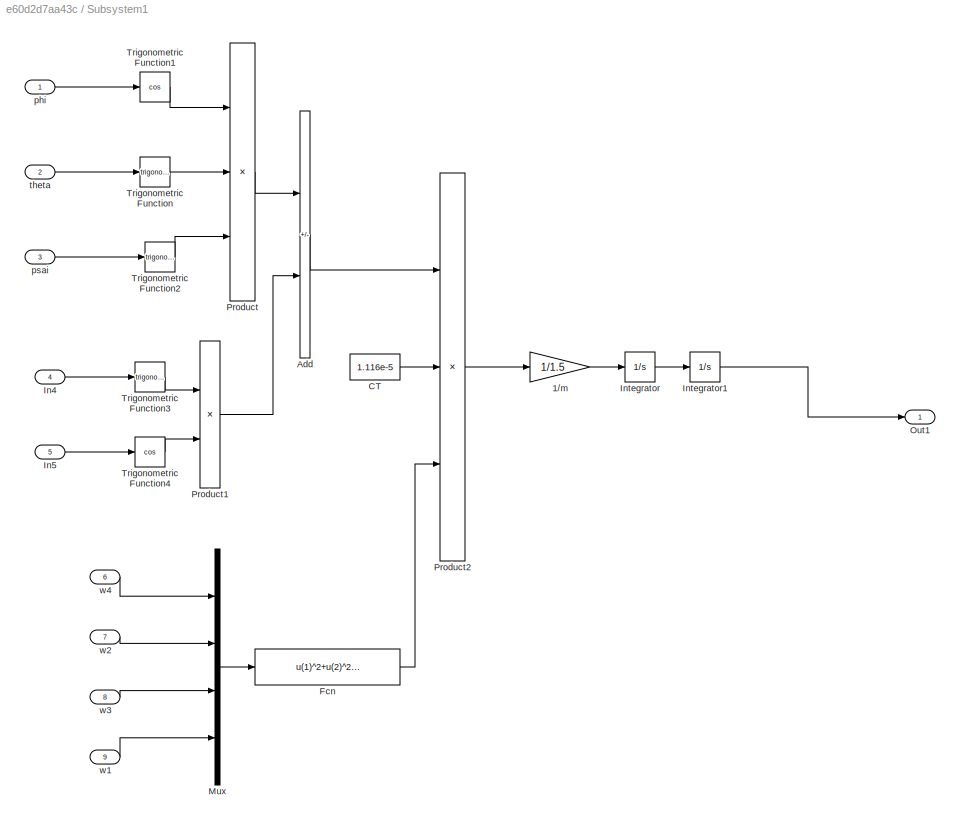
BLOCK [SubSystem] Subsystem1
  Ports = [9, 1]
  RequestExecContextInheritance = off
BLOCK [Gain] Subsystem1/1//m
  Gain = 1/1.5
BLOCK [Sum] Subsystem1/Add
  IconShape = rectangular
  Inputs = +-
  Ports = [2, 1]
BLOCK [Constant] Subsystem1/CT
  Value = 1.116e-5
BLOCK [Fcn] Subsystem1/Fcn
  Expr = u(1)^2+u(2)^2+u(3)^2+u(4)^2
BLOCK [Inport] Subsystem1/In4
  Port = 4
BLOCK [Inport] Subsystem1/In5
  Port = 5
BLOCK [Integrator] Subsystem1/Integrator
  Ports = [1, 1]
BLOCK [Integrator] Subsystem1/Integrator1
  Ports = [1, 1]
BLOCK [Mux] Subsystem1/Mux
  DisplayOption = bar
  Ports = [4, 1]
BLOCK [Outport] Subsystem1/Out1
  VectorParamsAs1DForOutWhenUnconnected = off
BLOCK [Product] Subsystem1/Product
  Inputs = 3
  Ports = [3, 1]
BLOCK [Product] Subsystem1/Product1
  Ports = [2, 1]
BLOCK [Product] Subsystem1/Product2
  Inputs = 3
  Ports = [3, 1]
BLOCK [Trigonometry] Subsystem1/Trigonometric Function
  Ports = [1, 1]
BLOCK [Trigonometry] Subsystem1/Trigonometric Function1
  Operator = cos
  Ports = [1, 1]
BLOCK [Trigonometry] Subsystem1/Trigonometric Function2
  Ports = [1, 1]
BLOCK [Trigonometry] Subsystem1/Trigonometric Function3
  Ports = [1, 1]
BLOCK [Trigonometry] Subsystem1/Trigonometric Function4
  Operator = cos
  Ports = [1, 1]
BLOCK [Inport] Subsystem1/phi
BLOCK [Inport] Subsystem1/psai
  Port = 3
BLOCK [Inport] Subsystem1/theta
  Port = 2
BLOCK [Inport] Subsystem1/w1
  Port = 9
BLOCK [Inport] Subsystem1/w2
  Port = 7
BLOCK [Inport] Subsystem1/w3
  Port = 8
BLOCK [Inport] Subsystem1/w4
  Port = 6
BLOCK [SubSystem] Subsystem2
  Ports = [6, 1]
  RequestExecContextInheritance = off
BLOCK [Gain] Subsystem2/1//m
  Gain = 1/1.5
BLOCK [Sum] Subsystem2/Add
  IconShape = rectangular
  Inputs = +-
  Ports = [2, 1]
BLOCK [Constant] Subsystem2/CT
  Value = 1.116e-5
BLOCK [Fcn] Subsystem2/Fcn
  Expr = u(1)^2+u(2)^2+u(3)^2+u(4)^2
BLOCK [Integrator] Subsystem2/Integrator
  Ports = [1, 1]
BLOCK [Integrator] Subsystem2/Integrator1
  Ports = [1, 1]
BLOCK [Mux] Subsystem2/Mux
  DisplayOption = bar
  Ports = [4, 1]
BLOCK [Outport] Subsystem2/Out1
  VectorParamsAs1DForOutWhenUnconnected = off
BLOCK [Product] Subsystem2/Product1
  Inputs = 4
  Ports = [4, 1]
BLOCK [Trigonometry] Subsystem2/Trigonometric Function
  Operator = cos
  Ports = [1, 1]
BLOCK [Trigonometry] Subsystem2/Trigonometric Function1
  Operator = cos
  Ports = [1, 1]
BLOCK [Constant] Subsystem2/mg
  Value = 1.5*9.81
BLOCK [Inport] Subsystem2/phi
BLOCK [Inport] Subsystem2/theta
  Port = 2
BLOCK [Inport] Subsystem2/w1
  Port = 6
BLOCK [Inport] Subsystem2/w2
  Port = 4
BLOCK [Inport] Subsystem2/w3
  Port = 5
BLOCK [Inport] Subsystem2/w4
  Port = 3
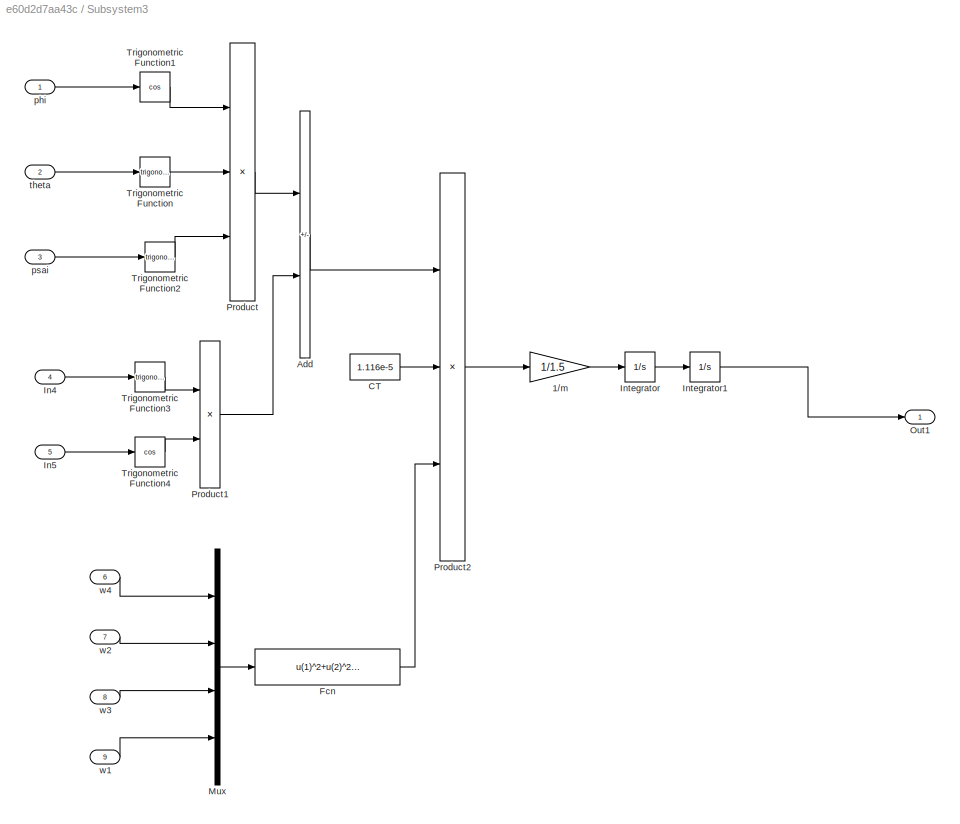
BLOCK [SubSystem] Subsystem3
  Ports = [9, 1]
  RequestExecContextInheritance = off
BLOCK [Gain] Subsystem3/1//m
  Gain = 1/1.5
BLOCK [Sum] Subsystem3/Add
  IconShape = rectangular
  Inputs = +-
  Ports = [2, 1]
BLOCK [Constant] Subsystem3/CT
  Value = 1.116e-5
BLOCK [Fcn] Subsystem3/Fcn
  Expr = u(1)^2+u(2)^2+u(3)^2+u(4)^2
BLOCK [Inport] Subsystem3/In4
  Port = 4
BLOCK [Inport] Subsystem3/In5
  Port = 5
BLOCK [Integrator] Subsystem3/Integrator
  Ports = [1, 1]
BLOCK [Integrator] Subsystem3/Integrator1
  Ports = [1, 1]
BLOCK [Mux] Subsystem3/Mux
  DisplayOption = bar
  Ports = [4, 1]
BLOCK [Outport] Subsystem3/Out1
  VectorParamsAs1DForOutWhenUnconnected = off
BLOCK [Product] Subsystem3/Product
  Inputs = 3
  Ports = [3, 1]
BLOCK [Product] Subsystem3/Product1
  Ports = [2, 1]
BLOCK [Product] Subsystem3/Product2
  Inputs = 3
  Ports = [3, 1]
BLOCK [Trigonometry] Subsystem3/Trigonometric Function
  Ports = [1, 1]
BLOCK [Trigonometry] Subsystem3/Trigonometric Function1
  Operator = cos
  Ports = [1, 1]
BLOCK [Trigonometry] Subsystem3/Trigonometric Function2
  Ports = [1, 1]
BLOCK [Trigonometry] Subsystem3/Trigonometric Function3
  Ports = [1, 1]
BLOCK [Trigonometry] Subsystem3/Trigonometric Function4
  Operator = cos
  Ports = [1, 1]
BLOCK [Inport] Subsystem3/phi
BLOCK [Inport] Subsystem3/psai
  Port = 3
BLOCK [Inport] Subsystem3/theta
  Port = 2
BLOCK [Inport] Subsystem3/w1
  Port = 9
BLOCK [Inport] Subsystem3/w2
  Port = 7
BLOCK [Inport] Subsystem3/w3
  Port = 8
BLOCK [Inport] Subsystem3/w4
  Port = 6
BLOCK [SubSystem] Subsystem4
  Ports = [9, 1]
  RequestExecContextInheritance = off
BLOCK [Gain] Subsystem4/1//m
  Gain = 1/1.5
BLOCK [Sum] Subsystem4/Add
  IconShape = rectangular
  Inputs = +-
  Ports = [2, 1]
BLOCK [Constant] Subsystem4/CT
  Value = 1.116e-5
BLOCK [Fcn] Subsystem4/Fcn
  Expr = u(1)^2+u(2)^2+u(3)^2+u(4)^2
BLOCK [Inport] Subsystem4/In4
  Port = 4
BLOCK [Inport] Subsystem4/In5
  Port = 5
BLOCK [Integrator] Subsystem4/Integrator
  Ports = [1, 1]
BLOCK [Integrator] Subsystem4/Integrator1
  Ports = [1, 1]
BLOCK [Mux] Subsystem4/Mux
  DisplayOption = bar
  Ports = [4, 1]
BLOCK [Outport] Subsystem4/Out1
  VectorParamsAs1DForOutWhenUnconnected = off
BLOCK [Product] Subsystem4/Product
  Inputs = 3
  Ports = [3, 1]
BLOCK [Product] Subsystem4/Product1
  Ports = [2, 1]
BLOCK [Product] Subsystem4/Product2
  Inputs = 3
  Ports = [3, 1]
BLOCK [Trigonometry] Subsystem4/Trigonometric Function
  Ports = [1, 1]
BLOCK [Trigonometry] Subsystem4/Trigonometric Function1
  Operator = cos
  Ports = [1, 1]
BLOCK [Trigonometry] Subsystem4/Trigonometric Function2
  Ports = [1, 1]
BLOCK [Trigonometry] Subsystem4/Trigonometric Function3
  Ports = [1, 1]
BLOCK [Trigonometry] Subsystem4/Trigonometric Function4
  Operator = cos
  Ports = [1, 1]
BLOCK [Inport] Subsystem4/phi
BLOCK [Inport] Subsystem4/psai
  Port = 3
BLOCK [Inport] Subsystem4/theta
  Port = 2
BLOCK [Inport] Subsystem4/w1
  Port = 9
BLOCK [Inport] Subsystem4/w2
  Port = 7
BLOCK [Inport] Subsystem4/w3
  Port = 8
BLOCK [Inport] Subsystem4/w4
  Port = 6
BLOCK [SubSystem] Subsystem5
  Ports = [6, 1]
  RequestExecContextInheritance = off
BLOCK [Gain] Subsystem5/1//m
  Gain = 1/1.5
BLOCK [Sum] Subsystem5/Add
  IconShape = rectangular
  Inputs = +-
  Ports = [2, 1]
BLOCK [Constant] Subsystem5/CT
  Value = 1.116e-5
BLOCK [Fcn] Subsystem5/Fcn
  Expr = u(1)^2+u(2)^2+u(3)^2+u(4)^2
BLOCK [Integrator] Subsystem5/Integrator
  Ports = [1, 1]
BLOCK [Integrator] Subsystem5/Integrator1
  Ports = [1, 1]
BLOCK [Mux] Subsystem5/Mux
  DisplayOption = bar
  Ports = [4, 1]
BLOCK [Outport] Subsystem5/Out1
  VectorParamsAs1DForOutWhenUnconnected = off
BLOCK [Product] Subsystem5/Product1
  Inputs = 4
  Ports = [4, 1]
BLOCK [Trigonometry] Subsystem5/Trigonometric Function
  Operator = cos
  Ports = [1, 1]
BLOCK [Trigonometry] Subsystem5/Trigonometric Function1
  Operator = cos
  Ports = [1, 1]
BLOCK [Constant] Subsystem5/mg
  Value = 1.5*9.81
BLOCK [Inport] Subsystem5/phi
BLOCK [Inport] Subsystem5/theta
  Port = 2
BLOCK [Inport] Subsystem5/w1
  Port = 6
BLOCK [Inport] Subsystem5/w2
  Port = 4
BLOCK [Inport] Subsystem5/w3
  Port = 5
BLOCK [Inport] Subsystem5/w4
  Port = 3
BLOCK [SubSystem] Subsystem6
  Ports = [6, 1]
  RequestExecContextInheritance = off
BLOCK [Gain] Subsystem6/1//m
  Gain = 1/1.5
BLOCK [Sum] Subsystem6/Add
  IconShape = rectangular
  Inputs = +-
  Ports = [2, 1]
BLOCK [Constant] Subsystem6/CT
  Value = 1.116e-5
BLOCK [Fcn] Subsystem6/Fcn
  Expr = u(1)^2+u(2)^2+u(3)^2+u(4)^2
BLOCK [Integrator] Subsystem6/Integrator
  Ports = [1, 1]
BLOCK [Integrator] Subsystem6/Integrator1
  Ports = [1, 1]
BLOCK [Mux] Subsystem6/Mux
  DisplayOption = bar
  Ports = [4, 1]
BLOCK [Outport] Subsystem6/Out1
  VectorParamsAs1DForOutWhenUnconnected = off
BLOCK [Product] Subsystem6/Product1
  Inputs = 4
  Ports = [4, 1]
BLOCK [Trigonometry] Subsystem6/Trigonometric Function
  Operator = cos
  Ports = [1, 1]
BLOCK [Trigonometry] Subsystem6/Trigonometric Function1
  Operator = cos
  Ports = [1, 1]
BLOCK [Constant] Subsystem6/mg
  Value = 1.5*9.81
BLOCK [Inport] Subsystem6/phi
BLOCK [Inport] Subsystem6/theta
  Port = 2
BLOCK [Inport] Subsystem6/w1
  Port = 6
BLOCK [Inport] Subsystem6/w2
  Port = 4
BLOCK [Inport] Subsystem6/w3
  Port = 5
BLOCK [Inport] Subsystem6/w4
  Port = 3
BLOCK [SubSystem] Subsystem7
  Ports = [9, 1]
  RequestExecContextInheritance = off
BLOCK [Gain] Subsystem7/1//m
  Gain = 1/1.5
BLOCK [Sum] Subsystem7/Add
  IconShape = rectangular
  Inputs = +-
  Ports = [2, 1]
BLOCK [Constant] Subsystem7/CT
  Value = 1.116e-5
BLOCK [Fcn] Subsystem7/Fcn
  Expr = u(1)^2+u(2)^2+u(3)^2+u(4)^2
BLOCK [Inport] Subsystem7/In4
  Port = 4
BLOCK [Inport] Subsystem7/In5
  Port = 5
BLOCK [Integrator] Subsystem7/Integrator
  Ports = [1, 1]
BLOCK [Integrator] Subsystem7/Integrator1
  Ports = [1, 1]
BLOCK [Mux] Subsystem7/Mux
  DisplayOption = bar
  Ports = [4, 1]
BLOCK [Outport] Subsystem7/Out1
  VectorParamsAs1DForOutWhenUnconnected = off
BLOCK [Product] Subsystem7/Product
  Inputs = 3
  Ports = [3, 1]
BLOCK [Product] Subsystem7/Product1
  Ports = [2, 1]
BLOCK [Product] Subsystem7/Product2
  Inputs = 3
  Ports = [3, 1]
BLOCK [Trigonometry] Subsystem7/Trigonometric Function
  Ports = [1, 1]
BLOCK [Trigonometry] Subsystem7/Trigonometric Function1
  Operator = cos
  Ports = [1, 1]
BLOCK [Trigonometry] Subsystem7/Trigonometric Function2
  Ports = [1, 1]
BLOCK [Trigonometry] Subsystem7/Trigonometric Function3
  Ports = [1, 1]
BLOCK [Trigonometry] Subsystem7/Trigonometric Function4
  Operator = cos
  Ports = [1, 1]
BLOCK [Inport] Subsystem7/phi
BLOCK [Inport] Subsystem7/psai
  Port = 3
BLOCK [Inport] Subsystem7/theta
  Port = 2
BLOCK [Inport] Subsystem7/w1
  Port = 9
BLOCK [Inport] Subsystem7/w2
  Port = 7
BLOCK [Inport] Subsystem7/w3
  Port = 8
BLOCK [Inport] Subsystem7/w4
  Port = 6
BLOCK [SubSystem] Subsystem8
  Ports = [6, 1]
  RequestExecContextInheritance = off
BLOCK [Gain] Subsystem8/1//m
  Gain = 1/1.5
BLOCK [Sum] Subsystem8/Add
  IconShape = rectangular
  Inputs = +-
  Ports = [2, 1]
BLOCK [Constant] Subsystem8/CT
  Value = 1.116e-5
BLOCK [Fcn] Subsystem8/Fcn
  Expr = u(1)^2+u(2)^2+u(3)^2+u(4)^2
BLOCK [Integrator] Subsystem8/Integrator
  Ports = [1, 1]
BLOCK [Integrator] Subsystem8/Integrator1
  Ports = [1, 1]
BLOCK [Mux] Subsystem8/Mux
  DisplayOption = bar
  Ports = [4, 1]
BLOCK [Outport] Subsystem8/Out1
  VectorParamsAs1DForOutWhenUnconnected = off
BLOCK [Product] Subsystem8/Product1
  Inputs = 4
  Ports = [4, 1]
BLOCK [Trigonometry] Subsystem8/Trigonometric Function
  Operator = cos
  Ports = [1, 1]
BLOCK [Trigonometry] Subsystem8/Trigonometric Function1
  Operator = cos
  Ports = [1, 1]
BLOCK [Constant] Subsystem8/mg
  Value = 1.5*9.81
BLOCK [Inport] Subsystem8/phi
BLOCK [Inport] Subsystem8/theta
  Port = 2
BLOCK [Inport] Subsystem8/w1
  Port = 6
BLOCK [Inport] Subsystem8/w2
  Port = 4
BLOCK [Inport] Subsystem8/w3
  Port = 5
BLOCK [Inport] Subsystem8/w4
  Port = 3
BLOCK [Sum] Sum
  Inputs = |+-
  Ports = [2, 1]
BLOCK [Sum] Sum1
  Inputs = ++|
  Ports = [2, 1]
BLOCK [Sum] Sum10
  Inputs = ++|
  Ports = [2, 1]
BLOCK [Sum] Sum11
  Inputs = |+-
  Ports = [2, 1]
BLOCK [Sum] Sum12
  Inputs = ++|
  Ports = [2, 1]
BLOCK [Sum] Sum13
  Inputs = |+-
  Ports = [2, 1]
BLOCK [Sum] Sum14
  Inputs = ++|
  Ports = [2, 1]
BLOCK [Sum] Sum15
  Inputs = |+-
  Ports = [2, 1]
BLOCK [Sum] Sum16
  Inputs = |+-
  Ports = [2, 1]
BLOCK [Sum] Sum17
  Inputs = |+-
  Ports = [2, 1]
BLOCK [Sum] Sum18
  Inputs = |+-
  Ports = [2, 1]
BLOCK [Sum] Sum19
  Inputs = ++|
  Ports = [2, 1]
BLOCK [Sum] Sum2
  Inputs = |+-
  Ports = [2, 1]
BLOCK [Sum] Sum20
  Inputs = ++|
  Ports = [2, 1]
BLOCK [Sum] Sum21
  Inputs = |+-
  Ports = [2, 1]
BLOCK [Sum] Sum22
  Inputs = ++|
  Ports = [2, 1]
BLOCK [Sum] Sum23
  Inputs = |+-
  Ports = [2, 1]
BLOCK [Sum] Sum24
  Inputs = ++|
  Ports = [2, 1]
BLOCK [Sum] Sum25
  Inputs = |+-
  Ports = [2, 1]
BLOCK [Sum] Sum26
  Inputs = |+-
  Ports = [2, 1]
BLOCK [Sum] Sum27
  Inputs = |+-
  Ports = [2, 1]
BLOCK [Sum] Sum28
  Inputs = |+-
  Ports = [2, 1]
BLOCK [Sum] Sum29
  Inputs = ++|
  Ports = [2, 1]
BLOCK [Sum] Sum3
  Inputs = ++|
  Ports = [2, 1]
BLOCK [Sum] Sum30
  Inputs = |+-
  Ports = [2, 1]
BLOCK [Sum] Sum31
  Inputs = |+-
  Ports = [2, 1]
BLOCK [Sum] Sum32
  Inputs = ++|
  Ports = [2, 1]
BLOCK [Sum] Sum33
  Inputs = |+-
  Ports = [2, 1]
BLOCK [Sum] Sum34
  Inputs = |+-
  Ports = [2, 1]
BLOCK [Sum] Sum35
  Inputs = |+-
  Ports = [2, 1]
BLOCK [Sum] Sum36
  Inputs = |+-
  Ports = [2, 1]
BLOCK [Sum] Sum37
  Inputs = |+-
  Ports = [2, 1]
BLOCK [Sum] Sum38
  Inputs = |+-
  Ports = [2, 1]
BLOCK [Sum] Sum39
  Inputs = |++
  Ports = [2, 1]
BLOCK [Sum] Sum4
  Inputs = |+-
  Ports = [2, 1]
BLOCK [Sum] Sum40
  Inputs = |++
  Ports = [2, 1]
BLOCK [Sum] Sum41
  Inputs = |+-
  Ports = [2, 1]
BLOCK [Sum] Sum5
  Inputs = ++|
  Ports = [2, 1]
BLOCK [Sum] Sum6
  Inputs = |+-
  Ports = [2, 1]
BLOCK [Sum] Sum7
  Inputs = |+-
  Ports = [2, 1]
BLOCK [Sum] Sum8
  Inputs = |+-
  Ports = [2, 1]
BLOCK [Sum] Sum9
  Inputs = |+-
  Ports = [2, 1]
BLOCK [ToWorkspace] To Workspace1
  FixptAsFi = on
  MaxDataPoints = inf
  Ports = [1]
  SampleTime = -1
  VariableName = theta1
BLOCK [ToWorkspace] To Workspace10
  FixptAsFi = on
  MaxDataPoints = inf
  Ports = [1]
  SampleTime = -1
  VariableName = phi1
BLOCK [ToWorkspace] To Workspace11
  FixptAsFi = on
  MaxDataPoints = inf
  Ports = [1]
  SampleTime = -1
  VariableName = xd1
BLOCK [ToWorkspace] To Workspace12
  FixptAsFi = on
  MaxDataPoints = inf
  Ports = [1]
  SampleTime = -1
  VariableName = yd1
BLOCK [ToWorkspace] To Workspace13
  FixptAsFi = on
  MaxDataPoints = inf
  Ports = [1]
  SampleTime = -1
  VariableName = zd1
BLOCK [ToWorkspace] To Workspace14
  FixptAsFi = on
  MaxDataPoints = inf
  Ports = [1]
  SampleTime = -1
  VariableName = theta2
BLOCK [ToWorkspace] To Workspace15
  FixptAsFi = on
  MaxDataPoints = inf
  Ports = [1]
  SampleTime = -1
  VariableName = psid2
BLOCK [ToWorkspace] To Workspace16
  FixptAsFi = on
  MaxDataPoints = inf
  Ports = [1]
  SampleTime = -1
  VariableName = psi2
BLOCK [ToWorkspace] To Workspace17
  FixptAsFi = on
  MaxDataPoints = inf
  Ports = [1]
  SampleTime = -1
  VariableName = x2
BLOCK [ToWorkspace] To Workspace18
  FixptAsFi = on
  MaxDataPoints = inf
  Ports = [1]
  SampleTime = -1
  VariableName = y2
BLOCK [ToWorkspace] To Workspace19
  FixptAsFi = on
  MaxDataPoints = inf
  Ports = [1]
  SampleTime = -1
  VariableName = z2
BLOCK [ToWorkspace] To Workspace2
  FixptAsFi = on
  MaxDataPoints = inf
  Ports = [1]
  SampleTime = -1
  VariableName = psid1
BLOCK [ToWorkspace] To Workspace20
  FixptAsFi = on
  MaxDataPoints = inf
  Ports = [1]
  SampleTime = -1
  VariableName = theta
BLOCK [ToWorkspace] To Workspace21
  FixptAsFi = on
  MaxDataPoints = inf
  Ports = [1]
  SampleTime = -1
  VariableName = psid
BLOCK [ToWorkspace] To Workspace22
  FixptAsFi = on
  MaxDataPoints = inf
  Ports = [1]
  SampleTime = -1
  VariableName = psi
BLOCK [ToWorkspace] To Workspace23
  FixptAsFi = on
  MaxDataPoints = inf
  Ports = [1]
  SampleTime = -1
  VariableName = x
BLOCK [ToWorkspace] To Workspace24
  FixptAsFi = on
  MaxDataPoints = inf
  Ports = [1]
  SampleTime = -1
  VariableName = y
BLOCK [ToWorkspace] To Workspace25
  FixptAsFi = on
  MaxDataPoints = inf
  Ports = [1]
  SampleTime = -1
  VariableName = z
BLOCK [ToWorkspace] To Workspace26
  FixptAsFi = on
  MaxDataPoints = inf
  Ports = [1]
  SampleTime = -1
  VariableName = phi2
BLOCK [ToWorkspace] To Workspace27
  FixptAsFi = on
  MaxDataPoints = inf
  Ports = [1]
  SampleTime = -1
  VariableName = xd2
BLOCK [ToWorkspace] To Workspace28
  FixptAsFi = on
  MaxDataPoints = inf
  Ports = [1]
  SampleTime = -1
  VariableName = yd2
BLOCK [ToWorkspace] To Workspace29
  FixptAsFi = on
  MaxDataPoints = inf
  Ports = [1]
  SampleTime = -1
  VariableName = phi
BLOCK [ToWorkspace] To Workspace3
  FixptAsFi = on
  MaxDataPoints = inf
  Ports = [1]
  SampleTime = -1
  VariableName = psi1
BLOCK [ToWorkspace] To Workspace30
  FixptAsFi = on
  MaxDataPoints = inf
  Ports = [1]
  SampleTime = -1
  VariableName = zd2
BLOCK [ToWorkspace] To Workspace31
  FixptAsFi = on
  MaxDataPoints = inf
  Ports = [1]
  SampleTime = -1
  VariableName = theta3
BLOCK [ToWorkspace] To Workspace32
  FixptAsFi = on
  MaxDataPoints = inf
  Ports = [1]
  SampleTime = -1
  VariableName = psid3
BLOCK [ToWorkspace] To Workspace33
  FixptAsFi = on
  MaxDataPoints = inf
  Ports = [1]
  SampleTime = -1
  VariableName = psi3
BLOCK [ToWorkspace] To Workspace34
  FixptAsFi = on
  MaxDataPoints = inf
  Ports = [1]
  SampleTime = -1
  VariableName = x3
BLOCK [ToWorkspace] To Workspace35
  FixptAsFi = on
  MaxDataPoints = inf
  Ports = [1]
  SampleTime = -1
  VariableName = y3
BLOCK [ToWorkspace] To Workspace36
  FixptAsFi = on
  MaxDataPoints = inf
  Ports = [1]
  SampleTime = -1
  VariableName = z3
BLOCK [ToWorkspace] To Workspace37
  FixptAsFi = on
  MaxDataPoints = inf
  Ports = [1]
  SampleTime = -1
  VariableName = phi3
BLOCK [ToWorkspace] To Workspace38
  FixptAsFi = on
  MaxDataPoints = inf
  Ports = [1]
  SampleTime = -1
  VariableName = xd3
BLOCK [ToWorkspace] To Workspace39
  FixptAsFi = on
  MaxDataPoints = inf
  Ports = [1]
  SampleTime = -1
  VariableName = yd3
BLOCK [ToWorkspace] To Workspace4
  FixptAsFi = on
  MaxDataPoints = inf
  Ports = [1]
  SampleTime = -1
  VariableName = x1
BLOCK [ToWorkspace] To Workspace40
  FixptAsFi = on
  MaxDataPoints = inf
  Ports = [1]
  SampleTime = -1
  VariableName = zd3
BLOCK [ToWorkspace] To Workspace5
  FixptAsFi = on
  MaxDataPoints = inf
  Ports = [1]
  SampleTime = -1
  VariableName = y1
BLOCK [ToWorkspace] To Workspace6
  FixptAsFi = on
  MaxDataPoints = inf
  Ports = [1]
  SampleTime = -1
  VariableName = xd
BLOCK [ToWorkspace] To Workspace7
  FixptAsFi = on
  MaxDataPoints = inf
  Ports = [1]
  SampleTime = -1
  VariableName = yd
BLOCK [ToWorkspace] To Workspace8
  FixptAsFi = on
  MaxDataPoints = inf
  Ports = [1]
  SampleTime = -1
  VariableName = zd
BLOCK [ToWorkspace] To Workspace9
  FixptAsFi = on
  MaxDataPoints = inf
  Ports = [1]
  SampleTime = -1
  VariableName = z1
BLOCK [Constant] m1
  Value = 1.5
BLOCK [Constant] m2
  Value = 1.5
BLOCK [Constant] m3
  Value = 1.5
BLOCK [Constant] m4
  Value = 1.5
BLOCK [Constant] psaid1
  Value = 0.2
BLOCK [Constant] psaid2
  Value = 0.2
BLOCK [Constant] psaid3
  Value = 0.2
BLOCK [Constant] psaid4
  Value = 0.2
BLOCK [SubSystem] x1
  Ports = [9, 1]
  RequestExecContextInheritance = off
BLOCK [Gain] x1/1//m
  Gain = 1/1.5
BLOCK [Sum] x1/Add
  IconShape = rectangular
  Ports = [2, 1]
BLOCK [Constant] x1/CT
  Value = 1.116e-5
BLOCK [Fcn] x1/Fcn
  Expr = u(1)^2+u(2)^2+u(3)^2+u(4)^2
BLOCK [Inport] x1/In4
  Port = 4
BLOCK [Inport] x1/In5
  Port = 5
BLOCK [Integrator] x1/Integrator
  Ports = [1, 1]
BLOCK [Integrator] x1/Integrator1
  Ports = [1, 1]
BLOCK [Mux] x1/Mux
  DisplayOption = bar
  Ports = [4, 1]
BLOCK [Outport] x1/Out1
  VectorParamsAs1DForOutWhenUnconnected = off
BLOCK [Product] x1/Product
  Inputs = 3
  Ports = [3, 1]
BLOCK [Product] x1/Product1
  Ports = [2, 1]
BLOCK [Product] x1/Product2
  Inputs = 3
  Ports = [3, 1]
BLOCK [Trigonometry] x1/Trigonometric Function
  Ports = [1, 1]
BLOCK [Trigonometry] x1/Trigonometric Function1
  Operator = cos
  Ports = [1, 1]
BLOCK [Trigonometry] x1/Trigonometric Function2
  Operator = cos
  Ports = [1, 1]
BLOCK [Trigonometry] x1/Trigonometric Function3
  Ports = [1, 1]
BLOCK [Trigonometry] x1/Trigonometric Function4
  Ports = [1, 1]
BLOCK [Inport] x1/phi
BLOCK [Inport] x1/psai
  Port = 3
BLOCK [Inport] x1/theta
  Port = 2
BLOCK [Inport] x1/w1
  Port = 9
BLOCK [Inport] x1/w2
  Port = 7
BLOCK [Inport] x1/w3
  Port = 8
BLOCK [Inport] x1/w4
  Port = 6
BLOCK [SubSystem] x2
  Ports = [9, 1]
  RequestExecContextInheritance = off
BLOCK [Gain] x2/1//m
  Gain = 1/1.5
BLOCK [Sum] x2/Add
  IconShape = rectangular
  Ports = [2, 1]
BLOCK [Constant] x2/CT
  Value = 1.116e-5
BLOCK [Fcn] x2/Fcn
  Expr = u(1)^2+u(2)^2+u(3)^2+u(4)^2
BLOCK [Inport] x2/In4
  Port = 4
BLOCK [Inport] x2/In5
  Port = 5
BLOCK [Integrator] x2/Integrator
  Ports = [1, 1]
BLOCK [Integrator] x2/Integrator1
  Ports = [1, 1]
BLOCK [Mux] x2/Mux
  DisplayOption = bar
  Ports = [4, 1]
BLOCK [Outport] x2/Out1
  VectorParamsAs1DForOutWhenUnconnected = off
BLOCK [Product] x2/Product
  Inputs = 3
  Ports = [3, 1]
BLOCK [Product] x2/Product1
  Ports = [2, 1]
BLOCK [Product] x2/Product2
  Inputs = 3
  Ports = [3, 1]
BLOCK [Trigonometry] x2/Trigonometric Function
  Ports = [1, 1]
BLOCK [Trigonometry] x2/Trigonometric Function1
  Operator = cos
  Ports = [1, 1]
BLOCK [Trigonometry] x2/Trigonometric Function2
  Operator = cos
  Ports = [1, 1]
BLOCK [Trigonometry] x2/Trigonometric Function3
  Ports = [1, 1]
BLOCK [Trigonometry] x2/Trigonometric Function4
  Ports = [1, 1]
BLOCK [Inport] x2/phi
BLOCK [Inport] x2/psai
  Port = 3
BLOCK [Inport] x2/theta
  Port = 2
BLOCK [Inport] x2/w1
  Port = 9
BLOCK [Inport] x2/w2
  Port = 7
BLOCK [Inport] x2/w3
  Port = 8
BLOCK [Inport] x2/w4
  Port = 6
BLOCK [SubSystem] x3
  Ports = [9, 1]
  RequestExecContextInheritance = off
BLOCK [Gain] x3/1//m
  Gain = 1/1.5
BLOCK [Sum] x3/Add
  IconShape = rectangular
  Ports = [2, 1]
BLOCK [Constant] x3/CT
  Value = 1.116e-5
BLOCK [Fcn] x3/Fcn
  Expr = u(1)^2+u(2)^2+u(3)^2+u(4)^2
BLOCK [Inport] x3/In4
  Port = 4
BLOCK [Inport] x3/In5
  Port = 5
BLOCK [Integrator] x3/Integrator
  Ports = [1, 1]
BLOCK [Integrator] x3/Integrator1
  Ports = [1, 1]
BLOCK [Mux] x3/Mux
  DisplayOption = bar
  Ports = [4, 1]
BLOCK [Outport] x3/Out1
  VectorParamsAs1DForOutWhenUnconnected = off
BLOCK [Product] x3/Product
  Inputs = 3
  Ports = [3, 1]
BLOCK [Product] x3/Product1
  Ports = [2, 1]
BLOCK [Product] x3/Product2
  Inputs = 3
  Ports = [3, 1]
BLOCK [Trigonometry] x3/Trigonometric Function
  Ports = [1, 1]
BLOCK [Trigonometry] x3/Trigonometric Function1
  Operator = cos
  Ports = [1, 1]
BLOCK [Trigonometry] x3/Trigonometric Function2
  Operator = cos
  Ports = [1, 1]
BLOCK [Trigonometry] x3/Trigonometric Function3
  Ports = [1, 1]
BLOCK [Trigonometry] x3/Trigonometric Function4
  Ports = [1, 1]
BLOCK [Inport] x3/phi
BLOCK [Inport] x3/psai
  Port = 3
BLOCK [Inport] x3/theta
  Port = 2
BLOCK [Inport] x3/w1
  Port = 9
BLOCK [Inport] x3/w2
  Port = 7
BLOCK [Inport] x3/w3
  Port = 8
BLOCK [Inport] x3/w4
  Port = 6
BLOCK [SubSystem] x4
  Ports = [9, 1]
  RequestExecContextInheritance = off
BLOCK [Gain] x4/1//m
  Gain = 1/1.5
BLOCK [Sum] x4/Add
  IconShape = rectangular
  Ports = [2, 1]
BLOCK [Constant] x4/CT
  Value = 1.116e-5
BLOCK [Fcn] x4/Fcn
  Expr = u(1)^2+u(2)^2+u(3)^2+u(4)^2
BLOCK [Inport] x4/In4
  Port = 4
BLOCK [Inport] x4/In5
  Port = 5
BLOCK [Integrator] x4/Integrator
  Ports = [1, 1]
BLOCK [Integrator] x4/Integrator1
  Ports = [1, 1]
BLOCK [Mux] x4/Mux
  DisplayOption = bar
  Ports = [4, 1]
BLOCK [Outport] x4/Out1
  VectorParamsAs1DForOutWhenUnconnected = off
BLOCK [Product] x4/Product
  Inputs = 3
  Ports = [3, 1]
BLOCK [Product] x4/Product1
  Ports = [2, 1]
BLOCK [Product] x4/Product2
  Inputs = 3
  Ports = [3, 1]
BLOCK [Trigonometry] x4/Trigonometric Function
  Ports = [1, 1]
BLOCK [Trigonometry] x4/Trigonometric Function1
  Operator = cos
  Ports = [1, 1]
BLOCK [Trigonometry] x4/Trigonometric Function2
  Operator = cos
  Ports = [1, 1]
BLOCK [Trigonometry] x4/Trigonometric Function3
  Ports = [1, 1]
BLOCK [Trigonometry] x4/Trigonometric Function4
  Ports = [1, 1]
BLOCK [Inport] x4/phi
BLOCK [Inport] x4/psai
  Port = 3
BLOCK [Inport] x4/theta
  Port = 2
BLOCK [Inport] x4/w1
  Port = 9
BLOCK [Inport] x4/w2
  Port = 7
BLOCK [Inport] x4/w3
  Port = 8
BLOCK [Inport] x4/w4
  Port = 6
ANNOTATION (root): Position
ANNOTATION (root): Attitude
ANNOTATION Attitude Control Module1: phi
ANNOTATION Attitude Control Module1: psi
ANNOTATION Attitude Control Module1: theta
ANNOTATION Attitude Control Module2: phi
ANNOTATION Attitude Control Module2: psi
ANNOTATION Attitude Control Module2: theta
ANNOTATION Attitude Control Module3: phi
ANNOTATION Attitude Control Module3: psi
ANNOTATION Attitude Control Module3: theta
ANNOTATION Attitude Control Module4: phi
ANNOTATION Attitude Control Module4: psi
ANNOTATION Attitude Control Module4: theta
LINE Add10:1 -> MATLAB Function7:2
LINE Add11:1 -> MATLAB Function7:3
LINE Add12:1 -> MATLAB Function7:4
LINE Add1:1 -> MATLAB Function2:2
LINE Add2:1 -> MATLAB Function2:3
LINE Add3:1 -> MATLAB Function2:4
LINE Add4:1 -> MATLAB Function4:2
LINE Add5:1 -> MATLAB Function4:3
LINE Add6:1 -> MATLAB Function1:2
LINE Add7:1 -> MATLAB Function1:3
LINE Add8:1 -> MATLAB Function1:4
LINE Add9:1 -> MATLAB Function4:4
NET Attitude Control Module1/Integrator1:1 -> Attitude Control Module1/Integrator:1, Attitude Control Module1/Subsystem1:3, Attitude Control Module1/Subsystem2:3
LINE Attitude Control Module1/Integrator2:1 -> Attitude Control Module1/theta:1
NET Attitude Control Module1/Integrator3:1 -> Attitude Control Module1/Integrator2:1, Attitude Control Module1/Subsystem2:4, Attitude Control Module1/Subsystem:3
LINE Attitude Control Module1/Integrator4:1 -> Attitude Control Module1/psai:1
NET Attitude Control Module1/Integrator5:1 -> Attitude Control Module1/Integrator4:1, Attitude Control Module1/Subsystem1:4, Attitude Control Module1/Subsystem:4
LINE Attitude Control Module1/Integrator:1 -> Attitude Control Module1/phi:1
LINE Attitude Control Module1/Subsystem/1//Jxx:1 -> Attitude Control Module1/Subsystem/Out1:1
LINE Attitude Control Module1/Subsystem/Add1:1 -> Attitude Control Module1/Subsystem/1//Jxx:1
LINE Attitude Control Module1/Subsystem/Add2:1 -> Attitude Control Module1/Subsystem/Product2:1
LINE Attitude Control Module1/Subsystem/Add:1 -> Attitude Control Module1/Subsystem/Product1:1
LINE Attitude Control Module1/Subsystem/CT:1 -> Attitude Control Module1/Subsystem/Product2:3
LINE Attitude Control Module1/Subsystem/Fcn1:1 -> Attitude Control Module1/Subsystem/Add2:1
LINE Attitude Control Module1/Subsystem/Fcn:1 -> Attitude Control Module1/Subsystem/Add2:2
LINE Attitude Control Module1/Subsystem/In3:1 -> Attitude Control Module1/Subsystem/Product:1
LINE Attitude Control Module1/Subsystem/In4:1 -> Attitude Control Module1/Subsystem/Product:2
LINE Attitude Control Module1/Subsystem/Jyy:1 -> Attitude Control Module1/Subsystem/Add:1
LINE Attitude Control Module1/Subsystem/Jzz :1 -> Attitude Control Module1/Subsystem/Add:2
LINE Attitude Control Module1/Subsystem/Product1:1 -> Attitude Control Module1/Subsystem/Add1:2
LINE Attitude Control Module1/Subsystem/Product2:1 -> Attitude Control Module1/Subsystem/Add1:1
LINE Attitude Control Module1/Subsystem/Product:1 -> Attitude Control Module1/Subsystem/Product1:2
LINE Attitude Control Module1/Subsystem/d:1 -> Attitude Control Module1/Subsystem/Product2:2
LINE Attitude Control Module1/Subsystem/w2:1 -> Attitude Control Module1/Subsystem/Fcn1:1
LINE Attitude Control Module1/Subsystem/w4:1 -> Attitude Control Module1/Subsystem/Fcn:1
LINE Attitude Control Module1/Subsystem1/1//Jxx:1 -> Attitude Control Module1/Subsystem1/Out1:1
LINE Attitude Control Module1/Subsystem1/Add1:1 -> Attitude Control Module1/Subsystem1/1//Jxx:1
LINE Attitude Control Module1/Subsystem1/Add2:1 -> Attitude Control Module1/Subsystem1/Product2:1
LINE Attitude Control Module1/Subsystem1/Add:1 -> Attitude Control Module1/Subsystem1/Product1:1
LINE Attitude Control Module1/Subsystem1/CT:1 -> Attitude Control Module1/Subsystem1/Product2:3
LINE Attitude Control Module1/Subsystem1/Fcn1:1 -> Attitude Control Module1/Subsystem1/Add2:1
LINE Attitude Control Module1/Subsystem1/Fcn:1 -> Attitude Control Module1/Subsystem1/Add2:2
LINE Attitude Control Module1/Subsystem1/In3:1 -> Attitude Control Module1/Subsystem1/Product:1
LINE Attitude Control Module1/Subsystem1/In4:1 -> Attitude Control Module1/Subsystem1/Product:2
LINE Attitude Control Module1/Subsystem1/Jxx:1 -> Attitude Control Module1/Subsystem1/Add:2
LINE Attitude Control Module1/Subsystem1/Jzz:1 -> Attitude Control Module1/Subsystem1/Add:1
LINE Attitude Control Module1/Subsystem1/Product1:1 -> Attitude Control Module1/Subsystem1/Add1:2
LINE Attitude Control Module1/Subsystem1/Product2:1 -> Attitude Control Module1/Subsystem1/Add1:1
LINE Attitude Control Module1/Subsystem1/Product:1 -> Attitude Control Module1/Subsystem1/Product1:2
LINE Attitude Control Module1/Subsystem1/d:1 -> Attitude Control Module1/Subsystem1/Product2:2
LINE Attitude Control Module1/Subsystem1/w1:1 -> Attitude Control Module1/Subsystem1/Fcn:1
LINE Attitude Control Module1/Subsystem1/w3:1 -> Attitude Control Module1/Subsystem1/Fcn1:1
LINE Attitude Control Module1/Subsystem1:1 -> Attitude Control Module1/Integrator3:1
LINE Attitude Control Module1/Subsystem2/1//Jxx:1 -> Attitude Control Module1/Subsystem2/Out1:1
LINE Attitude Control Module1/Subsystem2/Add1:1 -> Attitude Control Module1/Subsystem2/1//Jxx:1
LINE Attitude Control Module1/Subsystem2/Add2:1 -> Attitude Control Module1/Subsystem2/Product2:1
LINE Attitude Control Module1/Subsystem2/Add:1 -> Attitude Control Module1/Subsystem2/Product1:1
LINE Attitude Control Module1/Subsystem2/CM:1 -> Attitude Control Module1/Subsystem2/Product2:2
LINE Attitude Control Module1/Subsystem2/Fcn1:1 -> Attitude Control Module1/Subsystem2/Add2:1
LINE Attitude Control Module1/Subsystem2/Fcn2:1 -> Attitude Control Module1/Subsystem2/Add2:4
LINE Attitude Control Module1/Subsystem2/Fcn3:1 -> Attitude Control Module1/Subsystem2/Add2:3
LINE Attitude Control Module1/Subsystem2/Fcn:1 -> Attitude Control Module1/Subsystem2/Add2:2
LINE Attitude Control Module1/Subsystem2/In3:1 -> Attitude Control Module1/Subsystem2/Product:1
LINE Attitude Control Module1/Subsystem2/In4:1 -> Attitude Control Module1/Subsystem2/Product:2
LINE Attitude Control Module1/Subsystem2/Jxx:1 -> Attitude Control Module1/Subsystem2/Add:1
LINE Attitude Control Module1/Subsystem2/Jyy:1 -> Attitude Control Module1/Subsystem2/Add:2
LINE Attitude Control Module1/Subsystem2/Product1:1 -> Attitude Control Module1/Subsystem2/Add1:2
LINE Attitude Control Module1/Subsystem2/Product2:1 -> Attitude Control Module1/Subsystem2/Add1:1
LINE Attitude Control Module1/Subsystem2/Product:1 -> Attitude Control Module1/Subsystem2/Product1:2
LINE Attitude Control Module1/Subsystem2/w1:1 -> Attitude Control Module1/Subsystem2/Fcn:1
LINE Attitude Control Module1/Subsystem2/w2:1 -> Attitude Control Module1/Subsystem2/Fcn1:1
LINE Attitude Control Module1/Subsystem2/w3:1 -> Attitude Control Module1/Subsystem2/Fcn2:1
LINE Attitude Control Module1/Subsystem2/w4:1 -> Attitude Control Module1/Subsystem2/Fcn3:1
LINE Attitude Control Module1/Subsystem2:1 -> Attitude Control Module1/Integrator5:1
LINE Attitude Control Module1/Subsystem:1 -> Attitude Control Module1/Integrator1:1
NET Attitude Control Module1/w1:1 -> Attitude Control Module1/Subsystem1:2, Attitude Control Module1/Subsystem2:1
NET Attitude Control Module1/w2:1 -> Attitude Control Module1/Subsystem2:2, Attitude Control Module1/Subsystem:1
NET Attitude Control Module1/w3:1 -> Attitude Control Module1/Subsystem1:1, Attitude Control Module1/Subsystem2:5
NET Attitude Control Module1/w4:1 -> Attitude Control Module1/Subsystem2:6, Attitude Control Module1/Subsystem:2
LINE Attitude Control Module1:1 -> MATLAB Function3:1
LINE Attitude Control Module1:2 -> MATLAB Function3:2
LINE Attitude Control Module1:3 -> MATLAB Function3:3
NET Attitude Control Module2/Integrator1:1 -> Attitude Control Module2/Integrator:1, Attitude Control Module2/Subsystem1:3, Attitude Control Module2/Subsystem2:3
LINE Attitude Control Module2/Integrator2:1 -> Attitude Control Module2/theta:1
NET Attitude Control Module2/Integrator3:1 -> Attitude Control Module2/Integrator2:1, Attitude Control Module2/Subsystem2:4, Attitude Control Module2/Subsystem:3
LINE Attitude Control Module2/Integrator4:1 -> Attitude Control Module2/psai:1
NET Attitude Control Module2/Integrator5:1 -> Attitude Control Module2/Integrator4:1, Attitude Control Module2/Subsystem1:4, Attitude Control Module2/Subsystem:4
LINE Attitude Control Module2/Integrator:1 -> Attitude Control Module2/phi:1
LINE Attitude Control Module2/Subsystem/1//Jxx:1 -> Attitude Control Module2/Subsystem/Out1:1
LINE Attitude Control Module2/Subsystem/Add1:1 -> Attitude Control Module2/Subsystem/1//Jxx:1
LINE Attitude Control Module2/Subsystem/Add2:1 -> Attitude Control Module2/Subsystem/Product2:1
LINE Attitude Control Module2/Subsystem/Add:1 -> Attitude Control Module2/Subsystem/Product1:1
LINE Attitude Control Module2/Subsystem/CT:1 -> Attitude Control Module2/Subsystem/Product2:3
LINE Attitude Control Module2/Subsystem/Fcn1:1 -> Attitude Control Module2/Subsystem/Add2:1
LINE Attitude Control Module2/Subsystem/Fcn:1 -> Attitude Control Module2/Subsystem/Add2:2
LINE Attitude Control Module2/Subsystem/In3:1 -> Attitude Control Module2/Subsystem/Product:1
LINE Attitude Control Module2/Subsystem/In4:1 -> Attitude Control Module2/Subsystem/Product:2
LINE Attitude Control Module2/Subsystem/Jyy:1 -> Attitude Control Module2/Subsystem/Add:1
LINE Attitude Control Module2/Subsystem/Jzz :1 -> Attitude Control Module2/Subsystem/Add:2
LINE Attitude Control Module2/Subsystem/Product1:1 -> Attitude Control Module2/Subsystem/Add1:2
LINE Attitude Control Module2/Subsystem/Product2:1 -> Attitude Control Module2/Subsystem/Add1:1
LINE Attitude Control Module2/Subsystem/Product:1 -> Attitude Control Module2/Subsystem/Product1:2
LINE Attitude Control Module2/Subsystem/d:1 -> Attitude Control Module2/Subsystem/Product2:2
LINE Attitude Control Module2/Subsystem/w2:1 -> Attitude Control Module2/Subsystem/Fcn1:1
LINE Attitude Control Module2/Subsystem/w4:1 -> Attitude Control Module2/Subsystem/Fcn:1
LINE Attitude Control Module2/Subsystem1/1//Jxx:1 -> Attitude Control Module2/Subsystem1/Out1:1
LINE Attitude Control Module2/Subsystem1/Add1:1 -> Attitude Control Module2/Subsystem1/1//Jxx:1
LINE Attitude Control Module2/Subsystem1/Add2:1 -> Attitude Control Module2/Subsystem1/Product2:1
LINE Attitude Control Module2/Subsystem1/Add:1 -> Attitude Control Module2/Subsystem1/Product1:1
LINE Attitude Control Module2/Subsystem1/CT:1 -> Attitude Control Module2/Subsystem1/Product2:3
LINE Attitude Control Module2/Subsystem1/Fcn1:1 -> Attitude Control Module2/Subsystem1/Add2:1
LINE Attitude Control Module2/Subsystem1/Fcn:1 -> Attitude Control Module2/Subsystem1/Add2:2
LINE Attitude Control Module2/Subsystem1/In3:1 -> Attitude Control Module2/Subsystem1/Product:1
LINE Attitude Control Module2/Subsystem1/In4:1 -> Attitude Control Module2/Subsystem1/Product:2
LINE Attitude Control Module2/Subsystem1/Jxx:1 -> Attitude Control Module2/Subsystem1/Add:2
LINE Attitude Control Module2/Subsystem1/Jzz:1 -> Attitude Control Module2/Subsystem1/Add:1
LINE Attitude Control Module2/Subsystem1/Product1:1 -> Attitude Control Module2/Subsystem1/Add1:2
LINE Attitude Control Module2/Subsystem1/Product2:1 -> Attitude Control Module2/Subsystem1/Add1:1
LINE Attitude Control Module2/Subsystem1/Product:1 -> Attitude Control Module2/Subsystem1/Product1:2
LINE Attitude Control Module2/Subsystem1/d:1 -> Attitude Control Module2/Subsystem1/Product2:2
LINE Attitude Control Module2/Subsystem1/w1:1 -> Attitude Control Module2/Subsystem1/Fcn:1
LINE Attitude Control Module2/Subsystem1/w3:1 -> Attitude Control Module2/Subsystem1/Fcn1:1
LINE Attitude Control Module2/Subsystem1:1 -> Attitude Control Module2/Integrator3:1
LINE Attitude Control Module2/Subsystem2/1//Jxx:1 -> Attitude Control Module2/Subsystem2/Out1:1
LINE Attitude Control Module2/Subsystem2/Add1:1 -> Attitude Control Module2/Subsystem2/1//Jxx:1
LINE Attitude Control Module2/Subsystem2/Add2:1 -> Attitude Control Module2/Subsystem2/Product2:1
LINE Attitude Control Module2/Subsystem2/Add:1 -> Attitude Control Module2/Subsystem2/Product1:1
LINE Attitude Control Module2/Subsystem2/CM:1 -> Attitude Control Module2/Subsystem2/Product2:2
LINE Attitude Control Module2/Subsystem2/Fcn1:1 -> Attitude Control Module2/Subsystem2/Add2:1
LINE Attitude Control Module2/Subsystem2/Fcn2:1 -> Attitude Control Module2/Subsystem2/Add2:4
LINE Attitude Control Module2/Subsystem2/Fcn3:1 -> Attitude Control Module2/Subsystem2/Add2:3
LINE Attitude Control Module2/Subsystem2/Fcn:1 -> Attitude Control Module2/Subsystem2/Add2:2
LINE Attitude Control Module2/Subsystem2/In3:1 -> Attitude Control Module2/Subsystem2/Product:1
LINE Attitude Control Module2/Subsystem2/In4:1 -> Attitude Control Module2/Subsystem2/Product:2
LINE Attitude Control Module2/Subsystem2/Jxx:1 -> Attitude Control Module2/Subsystem2/Add:1
LINE Attitude Control Module2/Subsystem2/Jyy:1 -> Attitude Control Module2/Subsystem2/Add:2
LINE Attitude Control Module2/Subsystem2/Product1:1 -> Attitude Control Module2/Subsystem2/Add1:2
LINE Attitude Control Module2/Subsystem2/Product2:1 -> Attitude Control Module2/Subsystem2/Add1:1
LINE Attitude Control Module2/Subsystem2/Product:1 -> Attitude Control Module2/Subsystem2/Product1:2
LINE Attitude Control Module2/Subsystem2/w1:1 -> Attitude Control Module2/Subsystem2/Fcn:1
LINE Attitude Control Module2/Subsystem2/w2:1 -> Attitude Control Module2/Subsystem2/Fcn1:1
LINE Attitude Control Module2/Subsystem2/w3:1 -> Attitude Control Module2/Subsystem2/Fcn2:1
LINE Attitude Control Module2/Subsystem2/w4:1 -> Attitude Control Module2/Subsystem2/Fcn3:1
LINE Attitude Control Module2/Subsystem2:1 -> Attitude Control Module2/Integrator5:1
LINE Attitude Control Module2/Subsystem:1 -> Attitude Control Module2/Integrator1:1
NET Attitude Control Module2/w1:1 -> Attitude Control Module2/Subsystem1:2, Attitude Control Module2/Subsystem2:1
NET Attitude Control Module2/w2:1 -> Attitude Control Module2/Subsystem2:2, Attitude Control Module2/Subsystem:1
NET Attitude Control Module2/w3:1 -> Attitude Control Module2/Subsystem1:1, Attitude Control Module2/Subsystem2:5
NET Attitude Control Module2/w4:1 -> Attitude Control Module2/Subsystem2:6, Attitude Control Module2/Subsystem:2
LINE Attitude Control Module2:1 -> MATLAB Function5:1
LINE Attitude Control Module2:2 -> MATLAB Function5:2
LINE Attitude Control Module2:3 -> MATLAB Function5:3
NET Attitude Control Module3/Integrator1:1 -> Attitude Control Module3/Integrator:1, Attitude Control Module3/Subsystem1:3, Attitude Control Module3/Subsystem2:3
LINE Attitude Control Module3/Integrator2:1 -> Attitude Control Module3/theta:1
NET Attitude Control Module3/Integrator3:1 -> Attitude Control Module3/Integrator2:1, Attitude Control Module3/Subsystem2:4, Attitude Control Module3/Subsystem:3
LINE Attitude Control Module3/Integrator4:1 -> Attitude Control Module3/psai:1
NET Attitude Control Module3/Integrator5:1 -> Attitude Control Module3/Integrator4:1, Attitude Control Module3/Subsystem1:4, Attitude Control Module3/Subsystem:4
LINE Attitude Control Module3/Integrator:1 -> Attitude Control Module3/phi:1
LINE Attitude Control Module3/Subsystem/1//Jxx:1 -> Attitude Control Module3/Subsystem/Out1:1
LINE Attitude Control Module3/Subsystem/Add1:1 -> Attitude Control Module3/Subsystem/1//Jxx:1
LINE Attitude Control Module3/Subsystem/Add2:1 -> Attitude Control Module3/Subsystem/Product2:1
LINE Attitude Control Module3/Subsystem/Add:1 -> Attitude Control Module3/Subsystem/Product1:1
LINE Attitude Control Module3/Subsystem/CT:1 -> Attitude Control Module3/Subsystem/Product2:3
LINE Attitude Control Module3/Subsystem/Fcn1:1 -> Attitude Control Module3/Subsystem/Add2:1
LINE Attitude Control Module3/Subsystem/Fcn:1 -> Attitude Control Module3/Subsystem/Add2:2
LINE Attitude Control Module3/Subsystem/In3:1 -> Attitude Control Module3/Subsystem/Product:1
LINE Attitude Control Module3/Subsystem/In4:1 -> Attitude Control Module3/Subsystem/Product:2
LINE Attitude Control Module3/Subsystem/Jyy:1 -> Attitude Control Module3/Subsystem/Add:1
LINE Attitude Control Module3/Subsystem/Jzz :1 -> Attitude Control Module3/Subsystem/Add:2
LINE Attitude Control Module3/Subsystem/Product1:1 -> Attitude Control Module3/Subsystem/Add1:2
LINE Attitude Control Module3/Subsystem/Product2:1 -> Attitude Control Module3/Subsystem/Add1:1
LINE Attitude Control Module3/Subsystem/Product:1 -> Attitude Control Module3/Subsystem/Product1:2
LINE Attitude Control Module3/Subsystem/d:1 -> Attitude Control Module3/Subsystem/Product2:2
LINE Attitude Control Module3/Subsystem/w2:1 -> Attitude Control Module3/Subsystem/Fcn1:1
LINE Attitude Control Module3/Subsystem/w4:1 -> Attitude Control Module3/Subsystem/Fcn:1
LINE Attitude Control Module3/Subsystem1/1//Jxx:1 -> Attitude Control Module3/Subsystem1/Out1:1
LINE Attitude Control Module3/Subsystem1/Add1:1 -> Attitude Control Module3/Subsystem1/1//Jxx:1
LINE Attitude Control Module3/Subsystem1/Add2:1 -> Attitude Control Module3/Subsystem1/Product2:1
LINE Attitude Control Module3/Subsystem1/Add:1 -> Attitude Control Module3/Subsystem1/Product1:1
LINE Attitude Control Module3/Subsystem1/CT:1 -> Attitude Control Module3/Subsystem1/Product2:3
LINE Attitude Control Module3/Subsystem1/Fcn1:1 -> Attitude Control Module3/Subsystem1/Add2:1
LINE Attitude Control Module3/Subsystem1/Fcn:1 -> Attitude Control Module3/Subsystem1/Add2:2
LINE Attitude Control Module3/Subsystem1/In3:1 -> Attitude Control Module3/Subsystem1/Product:1
LINE Attitude Control Module3/Subsystem1/In4:1 -> Attitude Control Module3/Subsystem1/Product:2
LINE Attitude Control Module3/Subsystem1/Jxx:1 -> Attitude Control Module3/Subsystem1/Add:2
LINE Attitude Control Module3/Subsystem1/Jzz:1 -> Attitude Control Module3/Subsystem1/Add:1
LINE Attitude Control Module3/Subsystem1/Product1:1 -> Attitude Control Module3/Subsystem1/Add1:2
LINE Attitude Control Module3/Subsystem1/Product2:1 -> Attitude Control Module3/Subsystem1/Add1:1
LINE Attitude Control Module3/Subsystem1/Product:1 -> Attitude Control Module3/Subsystem1/Product1:2
LINE Attitude Control Module3/Subsystem1/d:1 -> Attitude Control Module3/Subsystem1/Product2:2
LINE Attitude Control Module3/Subsystem1/w1:1 -> Attitude Control Module3/Subsystem1/Fcn:1
LINE Attitude Control Module3/Subsystem1/w3:1 -> Attitude Control Module3/Subsystem1/Fcn1:1
LINE Attitude Control Module3/Subsystem1:1 -> Attitude Control Module3/Integrator3:1
LINE Attitude Control Module3/Subsystem2/1//Jxx:1 -> Attitude Control Module3/Subsystem2/Out1:1
LINE Attitude Control Module3/Subsystem2/Add1:1 -> Attitude Control Module3/Subsystem2/1//Jxx:1
LINE Attitude Control Module3/Subsystem2/Add2:1 -> Attitude Control Module3/Subsystem2/Product2:1
LINE Attitude Control Module3/Subsystem2/Add:1 -> Attitude Control Module3/Subsystem2/Product1:1
LINE Attitude Control Module3/Subsystem2/CM:1 -> Attitude Control Module3/Subsystem2/Product2:2
LINE Attitude Control Module3/Subsystem2/Fcn1:1 -> Attitude Control Module3/Subsystem2/Add2:1
LINE Attitude Control Module3/Subsystem2/Fcn2:1 -> Attitude Control Module3/Subsystem2/Add2:4
LINE Attitude Control Module3/Subsystem2/Fcn3:1 -> Attitude Control Module3/Subsystem2/Add2:3
LINE Attitude Control Module3/Subsystem2/Fcn:1 -> Attitude Control Module3/Subsystem2/Add2:2
LINE Attitude Control Module3/Subsystem2/In3:1 -> Attitude Control Module3/Subsystem2/Product:1
LINE Attitude Control Module3/Subsystem2/In4:1 -> Attitude Control Module3/Subsystem2/Product:2
LINE Attitude Control Module3/Subsystem2/Jxx:1 -> Attitude Control Module3/Subsystem2/Add:1
LINE Attitude Control Module3/Subsystem2/Jyy:1 -> Attitude Control Module3/Subsystem2/Add:2
LINE Attitude Control Module3/Subsystem2/Product1:1 -> Attitude Control Module3/Subsystem2/Add1:2
LINE Attitude Control Module3/Subsystem2/Product2:1 -> Attitude Control Module3/Subsystem2/Add1:1
LINE Attitude Control Module3/Subsystem2/Product:1 -> Attitude Control Module3/Subsystem2/Product1:2
LINE Attitude Control Module3/Subsystem2/w1:1 -> Attitude Control Module3/Subsystem2/Fcn:1
LINE Attitude Control Module3/Subsystem2/w2:1 -> Attitude Control Module3/Subsystem2/Fcn1:1
LINE Attitude Control Module3/Subsystem2/w3:1 -> Attitude Control Module3/Subsystem2/Fcn2:1
LINE Attitude Control Module3/Subsystem2/w4:1 -> Attitude Control Module3/Subsystem2/Fcn3:1
LINE Attitude Control Module3/Subsystem2:1 -> Attitude Control Module3/Integrator5:1
LINE Attitude Control Module3/Subsystem:1 -> Attitude Control Module3/Integrator1:1
NET Attitude Control Module3/w1:1 -> Attitude Control Module3/Subsystem1:2, Attitude Control Module3/Subsystem2:1
NET Attitude Control Module3/w2:1 -> Attitude Control Module3/Subsystem2:2, Attitude Control Module3/Subsystem:1
NET Attitude Control Module3/w3:1 -> Attitude Control Module3/Subsystem1:1, Attitude Control Module3/Subsystem2:5
NET Attitude Control Module3/w4:1 -> Attitude Control Module3/Subsystem2:6, Attitude Control Module3/Subsystem:2
LINE Attitude Control Module3:1 -> MATLAB Function6:1
LINE Attitude Control Module3:2 -> MATLAB Function6:2
LINE Attitude Control Module3:3 -> MATLAB Function6:3
NET Attitude Control Module4/Integrator1:1 -> Attitude Control Module4/Integrator:1, Attitude Control Module4/Subsystem1:3, Attitude Control Module4/Subsystem2:3
LINE Attitude Control Module4/Integrator2:1 -> Attitude Control Module4/theta:1
NET Attitude Control Module4/Integrator3:1 -> Attitude Control Module4/Integrator2:1, Attitude Control Module4/Subsystem2:4, Attitude Control Module4/Subsystem:3
LINE Attitude Control Module4/Integrator4:1 -> Attitude Control Module4/psai:1
NET Attitude Control Module4/Integrator5:1 -> Attitude Control Module4/Integrator4:1, Attitude Control Module4/Subsystem1:4, Attitude Control Module4/Subsystem:4
LINE Attitude Control Module4/Integrator:1 -> Attitude Control Module4/phi:1
LINE Attitude Control Module4/Subsystem/1//Jxx:1 -> Attitude Control Module4/Subsystem/Out1:1
LINE Attitude Control Module4/Subsystem/Add1:1 -> Attitude Control Module4/Subsystem/1//Jxx:1
LINE Attitude Control Module4/Subsystem/Add2:1 -> Attitude Control Module4/Subsystem/Product2:1
LINE Attitude Control Module4/Subsystem/Add:1 -> Attitude Control Module4/Subsystem/Product1:1
LINE Attitude Control Module4/Subsystem/CT:1 -> Attitude Control Module4/Subsystem/Product2:3
LINE Attitude Control Module4/Subsystem/Fcn1:1 -> Attitude Control Module4/Subsystem/Add2:1
LINE Attitude Control Module4/Subsystem/Fcn:1 -> Attitude Control Module4/Subsystem/Add2:2
LINE Attitude Control Module4/Subsystem/In3:1 -> Attitude Control Module4/Subsystem/Product:1
LINE Attitude Control Module4/Subsystem/In4:1 -> Attitude Control Module4/Subsystem/Product:2
LINE Attitude Control Module4/Subsystem/Jyy:1 -> Attitude Control Module4/Subsystem/Add:1
LINE Attitude Control Module4/Subsystem/Jzz :1 -> Attitude Control Module4/Subsystem/Add:2
LINE Attitude Control Module4/Subsystem/Product1:1 -> Attitude Control Module4/Subsystem/Add1:2
LINE Attitude Control Module4/Subsystem/Product2:1 -> Attitude Control Module4/Subsystem/Add1:1
LINE Attitude Control Module4/Subsystem/Product:1 -> Attitude Control Module4/Subsystem/Product1:2
LINE Attitude Control Module4/Subsystem/d:1 -> Attitude Control Module4/Subsystem/Product2:2
LINE Attitude Control Module4/Subsystem/w2:1 -> Attitude Control Module4/Subsystem/Fcn1:1
LINE Attitude Control Module4/Subsystem/w4:1 -> Attitude Control Module4/Subsystem/Fcn:1
LINE Attitude Control Module4/Subsystem1/1//Jxx:1 -> Attitude Control Module4/Subsystem1/Out1:1
LINE Attitude Control Module4/Subsystem1/Add1:1 -> Attitude Control Module4/Subsystem1/1//Jxx:1
LINE Attitude Control Module4/Subsystem1/Add2:1 -> Attitude Control Module4/Subsystem1/Product2:1
LINE Attitude Control Module4/Subsystem1/Add:1 -> Attitude Control Module4/Subsystem1/Product1:1
LINE Attitude Control Module4/Subsystem1/CT:1 -> Attitude Control Module4/Subsystem1/Product2:3
LINE Attitude Control Module4/Subsystem1/Fcn1:1 -> Attitude Control Module4/Subsystem1/Add2:1
LINE Attitude Control Module4/Subsystem1/Fcn:1 -> Attitude Control Module4/Subsystem1/Add2:2
LINE Attitude Control Module4/Subsystem1/In3:1 -> Attitude Control Module4/Subsystem1/Product:1
LINE Attitude Control Module4/Subsystem1/In4:1 -> Attitude Control Module4/Subsystem1/Product:2
LINE Attitude Control Module4/Subsystem1/Jxx:1 -> Attitude Control Module4/Subsystem1/Add:2
LINE Attitude Control Module4/Subsystem1/Jzz:1 -> Attitude Control Module4/Subsystem1/Add:1
LINE Attitude Control Module4/Subsystem1/Product1:1 -> Attitude Control Module4/Subsystem1/Add1:2
LINE Attitude Control Module4/Subsystem1/Product2:1 -> Attitude Control Module4/Subsystem1/Add1:1
LINE Attitude Control Module4/Subsystem1/Product:1 -> Attitude Control Module4/Subsystem1/Product1:2
LINE Attitude Control Module4/Subsystem1/d:1 -> Attitude Control Module4/Subsystem1/Product2:2
LINE Attitude Control Module4/Subsystem1/w1:1 -> Attitude Control Module4/Subsystem1/Fcn:1
LINE Attitude Control Module4/Subsystem1/w3:1 -> Attitude Control Module4/Subsystem1/Fcn1:1
LINE Attitude Control Module4/Subsystem1:1 -> Attitude Control Module4/Integrator3:1
LINE Attitude Control Module4/Subsystem2/1//Jxx:1 -> Attitude Control Module4/Subsystem2/Out1:1
LINE Attitude Control Module4/Subsystem2/Add1:1 -> Attitude Control Module4/Subsystem2/1//Jxx:1
LINE Attitude Control Module4/Subsystem2/Add2:1 -> Attitude Control Module4/Subsystem2/Product2:1
LINE Attitude Control Module4/Subsystem2/Add:1 -> Attitude Control Module4/Subsystem2/Product1:1
LINE Attitude Control Module4/Subsystem2/CM:1 -> Attitude Control Module4/Subsystem2/Product2:2
LINE Attitude Control Module4/Subsystem2/Fcn1:1 -> Attitude Control Module4/Subsystem2/Add2:1
LINE Attitude Control Module4/Subsystem2/Fcn2:1 -> Attitude Control Module4/Subsystem2/Add2:4
LINE Attitude Control Module4/Subsystem2/Fcn3:1 -> Attitude Control Module4/Subsystem2/Add2:3
LINE Attitude Control Module4/Subsystem2/Fcn:1 -> Attitude Control Module4/Subsystem2/Add2:2
LINE Attitude Control Module4/Subsystem2/In3:1 -> Attitude Control Module4/Subsystem2/Product:1
LINE Attitude Control Module4/Subsystem2/In4:1 -> Attitude Control Module4/Subsystem2/Product:2
LINE Attitude Control Module4/Subsystem2/Jxx:1 -> Attitude Control Module4/Subsystem2/Add:1
LINE Attitude Control Module4/Subsystem2/Jyy:1 -> Attitude Control Module4/Subsystem2/Add:2
LINE Attitude Control Module4/Subsystem2/Product1:1 -> Attitude Control Module4/Subsystem2/Add1:2
LINE Attitude Control Module4/Subsystem2/Product2:1 -> Attitude Control Module4/Subsystem2/Add1:1
LINE Attitude Control Module4/Subsystem2/Product:1 -> Attitude Control Module4/Subsystem2/Product1:2
LINE Attitude Control Module4/Subsystem2/w1:1 -> Attitude Control Module4/Subsystem2/Fcn:1
LINE Attitude Control Module4/Subsystem2/w2:1 -> Attitude Control Module4/Subsystem2/Fcn1:1
LINE Attitude Control Module4/Subsystem2/w3:1 -> Attitude Control Module4/Subsystem2/Fcn2:1
LINE Attitude Control Module4/Subsystem2/w4:1 -> Attitude Control Module4/Subsystem2/Fcn3:1
LINE Attitude Control Module4/Subsystem2:1 -> Attitude Control Module4/Integrator5:1
LINE Attitude Control Module4/Subsystem:1 -> Attitude Control Module4/Integrator1:1
NET Attitude Control Module4/w1:1 -> Attitude Control Module4/Subsystem1:2, Attitude Control Module4/Subsystem2:1
NET Attitude Control Module4/w2:1 -> Attitude Control Module4/Subsystem2:2, Attitude Control Module4/Subsystem:1
NET Attitude Control Module4/w3:1 -> Attitude Control Module4/Subsystem1:1, Attitude Control Module4/Subsystem2:5
NET Attitude Control Module4/w4:1 -> Attitude Control Module4/Subsystem2:6, Attitude Control Module4/Subsystem:2
LINE Attitude Control Module4:1 -> MATLAB Function8:1
LINE Attitude Control Module4:2 -> MATLAB Function8:2
LINE Attitude Control Module4:3 -> MATLAB Function8:3
LINE Clock11:1 -> Gain48:1
LINE Clock1:1 -> Cos:1
LINE Clock3:1 -> Gain15:1
LINE Clock5:1 -> Gain3:1
LINE Clock8:1 -> Gain23:1
LINE Clock:1 -> Sin:1
LINE Constant1:1 -> Sum37:2
LINE Constant2:1 -> Sum38:2
LINE Constant3:1 -> Sum39:2
LINE Constant4:1 -> Sum40:2
LINE Constant5:1 -> Sum41:2
LINE Constant:1 -> Sum:2
LINE Cos:1 -> Gain13:1
LINE Derivative10:1 -> Sum12:2
LINE Derivative11:1 -> Sum14:2
LINE Derivative12:1 -> Gain40:1
LINE Derivative13:1 -> Gain31:1
LINE Derivative14:1 -> Sum20:2
LINE Derivative15:1 -> Sum22:2
LINE Derivative16:1 -> Sum24:2
LINE Derivative17:1 -> Gain38:1
LINE Derivative18:1 -> Gain43:1
LINE Derivative19:1 -> Gain60:1
LINE Derivative1:1 -> Gain18:1
LINE Derivative20:1 -> Gain52:1
LINE Derivative21:1 -> Sum19:2
LINE Derivative22:1 -> Sum29:2
LINE Derivative23:1 -> Sum32:2
LINE Derivative24:1 -> Gain58:1
LINE Derivative2:1 -> Gain7:1
LINE Derivative3:1 -> Sum1:2
LINE Derivative4:1 -> Sum3:2
LINE Derivative5:1 -> Sum5:2
LINE Derivative6:1 -> Gain16:1
LINE Derivative7:1 -> Gain45:1
LINE Derivative8:1 -> Gain27:1
LINE Derivative9:1 -> Sum10:2
LINE Gain10:1 -> Sum5:1
LINE Gain11:1 -> Derivative5:1
NET Gain12:1 -> Scope3:1, Sum30:1, To Workspace6:1
NET Gain13:1 -> Sum21:1, To Workspace7:1
LINE Gain14:1 -> Add1:1
NET Gain15:1 -> Sum23:1, To Workspace8:1
LINE Gain16:1 -> Add1:2
LINE Gain17:1 -> Add2:1
LINE Gain18:1 -> Add2:2
LINE Gain20:1 -> Sum20:1
LINE Gain21:1 -> Derivative14:1
NET Gain23:1 -> Sum13:1, To Workspace30:1
LINE Gain24:1 -> Sum10:1
LINE Gain25:1 -> Derivative9:1
LINE Gain26:1 -> Add9:1
LINE Gain27:1 -> Add9:2
LINE Gain28:1 -> Sum12:1
LINE Gain29:1 -> Derivative10:1
LINE Gain30:1 -> Add8:1
LINE Gain31:1 -> Add8:2
LINE Gain32:1 -> Sum14:1
LINE Gain33:1 -> Sum22:1
LINE Gain34:1 -> Derivative15:1
LINE Gain35:1 -> Sum24:1
LINE Gain36:1 -> Derivative16:1
LINE Gain37:1 -> Add6:1
LINE Gain38:1 -> Add6:2
LINE Gain39:1 -> Add7:1
NET Gain3:1 -> Sum4:1, To Workspace13:1
LINE Gain40:1 -> Add7:2
LINE Gain41:1 -> Derivative11:1
LINE Gain42:1 -> Add4:1
LINE Gain43:1 -> Add4:2
LINE Gain44:1 -> Add5:1
LINE Gain45:1 -> Add5:2
NET Gain48:1 -> Sum31:1, To Workspace40:1
LINE Gain49:1 -> Sum19:1
LINE Gain4:1 -> Sum1:1
LINE Gain50:1 -> Derivative21:1
LINE Gain51:1 -> Add12:1
LINE Gain52:1 -> Add12:2
LINE Gain53:1 -> Sum29:1
LINE Gain54:1 -> Derivative22:1
LINE Gain55:1 -> Sum32:1
LINE Gain56:1 -> Derivative23:1
LINE Gain57:1 -> Add10:1
LINE Gain58:1 -> Add10:2
LINE Gain59:1 -> Add11:1
LINE Gain5:1 -> Derivative3:1
LINE Gain60:1 -> Add11:2
LINE Gain6:1 -> Add3:1
LINE Gain7:1 -> Add3:2
LINE Gain8:1 -> Sum3:1
LINE Gain9:1 -> Derivative4:1
NET MATLAB Function1:1 -> Attitude Control Module2:4, Subsystem4:9, Subsystem5:6, x2:9
NET MATLAB Function1:2 -> Attitude Control Module2:2, Subsystem4:7, Subsystem5:4, x2:7
NET MATLAB Function1:3 -> Attitude Control Module2:3, Subsystem4:8, Subsystem5:5, x2:8
NET MATLAB Function1:4 -> Attitude Control Module2:1, Subsystem4:6, Subsystem5:3, x2:6
NET MATLAB Function2:1 -> Attitude Control Module1:4, Subsystem1:9, Subsystem2:6, x1:9
NET MATLAB Function2:2 -> Attitude Control Module1:2, Subsystem1:7, Subsystem2:4, x1:7
NET MATLAB Function2:3 -> Attitude Control Module1:3, Subsystem1:8, Subsystem2:5, x1:8
NET MATLAB Function2:4 -> Attitude Control Module1:1, Subsystem1:6, Subsystem2:3, x1:6
NET MATLAB Function3:1 -> Derivative6:1, Subsystem1:1, Subsystem1:4, Subsystem2:1, Sum6:2, To Workspace10:1, x1:1, x1:4
NET MATLAB Function3:2 -> Derivative1:1, Subsystem1:2, Subsystem2:2, Sum7:2, To Workspace1:1, x1:2
NET MATLAB Function3:3 -> Derivative2:1, Subsystem1:3, Subsystem1:5, Sum8:2, To Workspace3:1, x1:3, x1:5
NET MATLAB Function4:1 -> Attitude Control Module3:4, Subsystem3:9, Subsystem6:6, x3:9
NET MATLAB Function4:2 -> Attitude Control Module3:2, Subsystem3:7, Subsystem6:4, x3:7
NET MATLAB Function4:3 -> Attitude Control Module3:3, Subsystem3:8, Subsystem6:5, x3:8
NET MATLAB Function4:4 -> Attitude Control Module3:1, Subsystem3:6, Subsystem6:3, x3:6
NET MATLAB Function5:1 -> Derivative17:1, Subsystem4:1, Subsystem4:4, Subsystem5:1, Sum25:2, To Workspace29:1, x2:1, x2:4
NET MATLAB Function5:2 -> Derivative12:1, Subsystem4:2, Subsystem5:2, Sum26:2, To Workspace20:1, x2:2
NET MATLAB Function5:3 -> Derivative13:1, Subsystem4:3, Subsystem4:5, Sum27:2, To Workspace22:1, x2:3, x2:5
NET MATLAB Function6:1 -> Derivative18:1, Subsystem3:1, Subsystem3:4, Subsystem6:1, Sum15:2, To Workspace26:1, x3:1, x3:4
NET MATLAB Function6:2 -> Derivative7:1, Subsystem3:2, Subsystem6:2, Sum16:2, To Workspace14:1, x3:2
NET MATLAB Function6:3 -> Derivative8:1, Subsystem3:3, Subsystem3:5, Sum17:2, To Workspace16:1, x3:3, x3:5
NET MATLAB Function7:1 -> Attitude Control Module4:4, Subsystem7:9, Subsystem8:6, x4:9
NET MATLAB Function7:2 -> Attitude Control Module4:2, Subsystem7:7, Subsystem8:4, x4:7
NET MATLAB Function7:3 -> Attitude Control Module4:3, Subsystem7:8, Subsystem8:5, x4:8
NET MATLAB Function7:4 -> Attitude Control Module4:1, Subsystem7:6, Subsystem8:3, x4:6
NET MATLAB Function8:1 -> Derivative24:1, Subsystem7:1, Subsystem7:4, Subsystem8:1, Sum33:2, To Workspace37:1, x4:1, x4:4
NET MATLAB Function8:2 -> Derivative19:1, Subsystem7:2, Subsystem8:2, Sum34:2, To Workspace31:1, x4:2
NET MATLAB Function8:3 -> Derivative20:1, Subsystem7:3, Subsystem7:5, Sum35:2, To Workspace33:1, x4:3, x4:5
LINE Position1:1 -> MATLAB Function1:1
LINE Position1:2 -> Sum25:1
LINE Position1:3 -> Sum26:1
LINE Position2:1 -> MATLAB Function2:1
LINE Position2:2 -> Sum6:1
LINE Position2:3 -> Sum7:1
LINE Position3:1 -> MATLAB Function4:1
LINE Position3:2 -> Sum15:1
LINE Position3:3 -> Sum16:1
LINE Position4:1 -> MATLAB Function7:1
LINE Position4:2 -> Sum33:1
LINE Position4:3 -> Sum34:1
LINE Sin:1 -> Gain12:1
LINE Subsystem1/1//m:1 -> Subsystem1/Integrator:1
LINE Subsystem1/Add:1 -> Subsystem1/Product2:1
LINE Subsystem1/CT:1 -> Subsystem1/Product2:2
LINE Subsystem1/Fcn:1 -> Subsystem1/Product2:3
LINE Subsystem1/In4:1 -> Subsystem1/Trigonometric Function3:1
LINE Subsystem1/In5:1 -> Subsystem1/Trigonometric Function4:1
LINE Subsystem1/Integrator1:1 -> Subsystem1/Out1:1
LINE Subsystem1/Integrator:1 -> Subsystem1/Integrator1:1
LINE Subsystem1/Mux:1 -> Subsystem1/Fcn:1
LINE Subsystem1/Product1:1 -> Subsystem1/Add:2
LINE Subsystem1/Product2:1 -> Subsystem1/1//m:1
LINE Subsystem1/Product:1 -> Subsystem1/Add:1
LINE Subsystem1/Trigonometric Function1:1 -> Subsystem1/Product:1
LINE Subsystem1/Trigonometric Function2:1 -> Subsystem1/Product:3
LINE Subsystem1/Trigonometric Function3:1 -> Subsystem1/Product1:1
LINE Subsystem1/Trigonometric Function4:1 -> Subsystem1/Product1:2
LINE Subsystem1/Trigonometric Function:1 -> Subsystem1/Product:2
LINE Subsystem1/phi:1 -> Subsystem1/Trigonometric Function1:1
LINE Subsystem1/psai:1 -> Subsystem1/Trigonometric Function2:1
LINE Subsystem1/theta:1 -> Subsystem1/Trigonometric Function:1
LINE Subsystem1/w1:1 -> Subsystem1/Mux:4
LINE Subsystem1/w2:1 -> Subsystem1/Mux:2
LINE Subsystem1/w3:1 -> Subsystem1/Mux:3
LINE Subsystem1/w4:1 -> Subsystem1/Mux:1
NET Subsystem1:1 -> Sum2:2, To Workspace5:1
LINE Subsystem2/1//m:1 -> Subsystem2/Integrator:1
LINE Subsystem2/Add:1 -> Subsystem2/1//m:1
LINE Subsystem2/CT:1 -> Subsystem2/Product1:3
LINE Subsystem2/Fcn:1 -> Subsystem2/Product1:4
LINE Subsystem2/Integrator1:1 -> Subsystem2/Out1:1
LINE Subsystem2/Integrator:1 -> Subsystem2/Integrator1:1
LINE Subsystem2/Mux:1 -> Subsystem2/Fcn:1
LINE Subsystem2/Product1:1 -> Subsystem2/Add:1
LINE Subsystem2/Trigonometric Function1:1 -> Subsystem2/Product1:1
LINE Subsystem2/Trigonometric Function:1 -> Subsystem2/Product1:2
LINE Subsystem2/mg:1 -> Subsystem2/Add:2
LINE Subsystem2/phi:1 -> Subsystem2/Trigonometric Function1:1
LINE Subsystem2/theta:1 -> Subsystem2/Trigonometric Function:1
LINE Subsystem2/w1:1 -> Subsystem2/Mux:4
LINE Subsystem2/w2:1 -> Subsystem2/Mux:2
LINE Subsystem2/w3:1 -> Subsystem2/Mux:3
LINE Subsystem2/w4:1 -> Subsystem2/Mux:1
NET Subsystem2:1 -> Sum4:2, To Workspace9:1
LINE Subsystem3/1//m:1 -> Subsystem3/Integrator:1
LINE Subsystem3/Add:1 -> Subsystem3/Product2:1
LINE Subsystem3/CT:1 -> Subsystem3/Product2:2
LINE Subsystem3/Fcn:1 -> Subsystem3/Product2:3
LINE Subsystem3/In4:1 -> Subsystem3/Trigonometric Function3:1
LINE Subsystem3/In5:1 -> Subsystem3/Trigonometric Function4:1
LINE Subsystem3/Integrator1:1 -> Subsystem3/Out1:1
LINE Subsystem3/Integrator:1 -> Subsystem3/Integrator1:1
LINE Subsystem3/Mux:1 -> Subsystem3/Fcn:1
LINE Subsystem3/Product1:1 -> Subsystem3/Add:2
LINE Subsystem3/Product2:1 -> Subsystem3/1//m:1
LINE Subsystem3/Product:1 -> Subsystem3/Add:1
LINE Subsystem3/Trigonometric Function1:1 -> Subsystem3/Product:1
LINE Subsystem3/Trigonometric Function2:1 -> Subsystem3/Product:3
LINE Subsystem3/Trigonometric Function3:1 -> Subsystem3/Product1:1
LINE Subsystem3/Trigonometric Function4:1 -> Subsystem3/Product1:2
LINE Subsystem3/Trigonometric Function:1 -> Subsystem3/Product:2
LINE Subsystem3/phi:1 -> Subsystem3/Trigonometric Function1:1
LINE Subsystem3/psai:1 -> Subsystem3/Trigonometric Function2:1
LINE Subsystem3/theta:1 -> Subsystem3/Trigonometric Function:1
LINE Subsystem3/w1:1 -> Subsystem3/Mux:4
LINE Subsystem3/w2:1 -> Subsystem3/Mux:2
LINE Subsystem3/w3:1 -> Subsystem3/Mux:3
LINE Subsystem3/w4:1 -> Subsystem3/Mux:1
NET Subsystem3:1 -> Sum11:2, To Workspace18:1
LINE Subsystem4/1//m:1 -> Subsystem4/Integrator:1
LINE Subsystem4/Add:1 -> Subsystem4/Product2:1
LINE Subsystem4/CT:1 -> Subsystem4/Product2:2
LINE Subsystem4/Fcn:1 -> Subsystem4/Product2:3
LINE Subsystem4/In4:1 -> Subsystem4/Trigonometric Function3:1
LINE Subsystem4/In5:1 -> Subsystem4/Trigonometric Function4:1
LINE Subsystem4/Integrator1:1 -> Subsystem4/Out1:1
LINE Subsystem4/Integrator:1 -> Subsystem4/Integrator1:1
LINE Subsystem4/Mux:1 -> Subsystem4/Fcn:1
LINE Subsystem4/Product1:1 -> Subsystem4/Add:2
LINE Subsystem4/Product2:1 -> Subsystem4/1//m:1
LINE Subsystem4/Product:1 -> Subsystem4/Add:1
LINE Subsystem4/Trigonometric Function1:1 -> Subsystem4/Product:1
LINE Subsystem4/Trigonometric Function2:1 -> Subsystem4/Product:3
LINE Subsystem4/Trigonometric Function3:1 -> Subsystem4/Product1:1
LINE Subsystem4/Trigonometric Function4:1 -> Subsystem4/Product1:2
LINE Subsystem4/Trigonometric Function:1 -> Subsystem4/Product:2
LINE Subsystem4/phi:1 -> Subsystem4/Trigonometric Function1:1
LINE Subsystem4/psai:1 -> Subsystem4/Trigonometric Function2:1
LINE Subsystem4/theta:1 -> Subsystem4/Trigonometric Function:1
LINE Subsystem4/w1:1 -> Subsystem4/Mux:4
LINE Subsystem4/w2:1 -> Subsystem4/Mux:2
LINE Subsystem4/w3:1 -> Subsystem4/Mux:3
LINE Subsystem4/w4:1 -> Subsystem4/Mux:1
NET Subsystem4:1 -> Sum21:2, Sum37:1, Sum39:1, Sum41:1, To Workspace24:1
LINE Subsystem5/1//m:1 -> Subsystem5/Integrator:1
LINE Subsystem5/Add:1 -> Subsystem5/1//m:1
LINE Subsystem5/CT:1 -> Subsystem5/Product1:3
LINE Subsystem5/Fcn:1 -> Subsystem5/Product1:4
LINE Subsystem5/Integrator1:1 -> Subsystem5/Out1:1
LINE Subsystem5/Integrator:1 -> Subsystem5/Integrator1:1
LINE Subsystem5/Mux:1 -> Subsystem5/Fcn:1
LINE Subsystem5/Product1:1 -> Subsystem5/Add:1
LINE Subsystem5/Trigonometric Function1:1 -> Subsystem5/Product1:1
LINE Subsystem5/Trigonometric Function:1 -> Subsystem5/Product1:2
LINE Subsystem5/mg:1 -> Subsystem5/Add:2
LINE Subsystem5/phi:1 -> Subsystem5/Trigonometric Function1:1
LINE Subsystem5/theta:1 -> Subsystem5/Trigonometric Function:1
LINE Subsystem5/w1:1 -> Subsystem5/Mux:4
LINE Subsystem5/w2:1 -> Subsystem5/Mux:2
LINE Subsystem5/w3:1 -> Subsystem5/Mux:3
LINE Subsystem5/w4:1 -> Subsystem5/Mux:1
NET Subsystem5:1 -> Sum23:2, To Workspace25:1
LINE Subsystem6/1//m:1 -> Subsystem6/Integrator:1
LINE Subsystem6/Add:1 -> Subsystem6/1//m:1
LINE Subsystem6/CT:1 -> Subsystem6/Product1:3
LINE Subsystem6/Fcn:1 -> Subsystem6/Product1:4
LINE Subsystem6/Integrator1:1 -> Subsystem6/Out1:1
LINE Subsystem6/Integrator:1 -> Subsystem6/Integrator1:1
LINE Subsystem6/Mux:1 -> Subsystem6/Fcn:1
LINE Subsystem6/Product1:1 -> Subsystem6/Add:1
LINE Subsystem6/Trigonometric Function1:1 -> Subsystem6/Product1:1
LINE Subsystem6/Trigonometric Function:1 -> Subsystem6/Product1:2
LINE Subsystem6/mg:1 -> Subsystem6/Add:2
LINE Subsystem6/phi:1 -> Subsystem6/Trigonometric Function1:1
LINE Subsystem6/theta:1 -> Subsystem6/Trigonometric Function:1
LINE Subsystem6/w1:1 -> Subsystem6/Mux:4
LINE Subsystem6/w2:1 -> Subsystem6/Mux:2
LINE Subsystem6/w3:1 -> Subsystem6/Mux:3
LINE Subsystem6/w4:1 -> Subsystem6/Mux:1
NET Subsystem6:1 -> Sum13:2, To Workspace19:1
LINE Subsystem7/1//m:1 -> Subsystem7/Integrator:1
LINE Subsystem7/Add:1 -> Subsystem7/Product2:1
LINE Subsystem7/CT:1 -> Subsystem7/Product2:2
LINE Subsystem7/Fcn:1 -> Subsystem7/Product2:3
LINE Subsystem7/In4:1 -> Subsystem7/Trigonometric Function3:1
LINE Subsystem7/In5:1 -> Subsystem7/Trigonometric Function4:1
LINE Subsystem7/Integrator1:1 -> Subsystem7/Out1:1
LINE Subsystem7/Integrator:1 -> Subsystem7/Integrator1:1
LINE Subsystem7/Mux:1 -> Subsystem7/Fcn:1
LINE Subsystem7/Product1:1 -> Subsystem7/Add:2
LINE Subsystem7/Product2:1 -> Subsystem7/1//m:1
LINE Subsystem7/Product:1 -> Subsystem7/Add:1
LINE Subsystem7/Trigonometric Function1:1 -> Subsystem7/Product:1
LINE Subsystem7/Trigonometric Function2:1 -> Subsystem7/Product:3
LINE Subsystem7/Trigonometric Function3:1 -> Subsystem7/Product1:1
LINE Subsystem7/Trigonometric Function4:1 -> Subsystem7/Product1:2
LINE Subsystem7/Trigonometric Function:1 -> Subsystem7/Product:2
LINE Subsystem7/phi:1 -> Subsystem7/Trigonometric Function1:1
LINE Subsystem7/psai:1 -> Subsystem7/Trigonometric Function2:1
LINE Subsystem7/theta:1 -> Subsystem7/Trigonometric Function:1
LINE Subsystem7/w1:1 -> Subsystem7/Mux:4
LINE Subsystem7/w2:1 -> Subsystem7/Mux:2
LINE Subsystem7/w3:1 -> Subsystem7/Mux:3
LINE Subsystem7/w4:1 -> Subsystem7/Mux:1
NET Subsystem7:1 -> Sum28:2, To Workspace35:1
LINE Subsystem8/1//m:1 -> Subsystem8/Integrator:1
LINE Subsystem8/Add:1 -> Subsystem8/1//m:1
LINE Subsystem8/CT:1 -> Subsystem8/Product1:3
LINE Subsystem8/Fcn:1 -> Subsystem8/Product1:4
LINE Subsystem8/Integrator1:1 -> Subsystem8/Out1:1
LINE Subsystem8/Integrator:1 -> Subsystem8/Integrator1:1
LINE Subsystem8/Mux:1 -> Subsystem8/Fcn:1
LINE Subsystem8/Product1:1 -> Subsystem8/Add:1
LINE Subsystem8/Trigonometric Function1:1 -> Subsystem8/Product1:1
LINE Subsystem8/Trigonometric Function:1 -> Subsystem8/Product1:2
LINE Subsystem8/mg:1 -> Subsystem8/Add:2
LINE Subsystem8/phi:1 -> Subsystem8/Trigonometric Function1:1
LINE Subsystem8/theta:1 -> Subsystem8/Trigonometric Function:1
LINE Subsystem8/w1:1 -> Subsystem8/Mux:4
LINE Subsystem8/w2:1 -> Subsystem8/Mux:2
LINE Subsystem8/w3:1 -> Subsystem8/Mux:3
LINE Subsystem8/w4:1 -> Subsystem8/Mux:1
NET Subsystem8:1 -> Sum31:2, To Workspace36:1
NET Sum10:1 -> Position3:1, Scope7:1
NET Sum11:1 -> Gain28:1, Gain29:1
NET Sum12:1 -> Position3:2, Scope8:1
NET Sum13:1 -> Gain32:1, Gain41:1
NET Sum14:1 -> Position3:3, Scope9:1
LINE Sum15:1 -> Gain42:1
LINE Sum16:1 -> Gain44:1
LINE Sum17:1 -> Gain26:1
NET Sum18:1 -> Gain24:1, Gain25:1
NET Sum19:1 -> Position4:1, Scope16:1
NET Sum1:1 -> Position2:1, Scope1:1
NET Sum20:1 -> Position1:1, Scope11:1
NET Sum21:1 -> Gain33:1, Gain34:1
NET Sum22:1 -> Position1:2, Scope12:1
NET Sum23:1 -> Gain35:1, Gain36:1
NET Sum24:1 -> Position1:3, Scope13:1
LINE Sum25:1 -> Gain37:1
LINE Sum26:1 -> Gain39:1
LINE Sum27:1 -> Gain30:1
NET Sum28:1 -> Gain53:1, Gain54:1
NET Sum29:1 -> Position4:2, Scope17:1
NET Sum2:1 -> Gain8:1, Gain9:1
NET Sum30:1 -> Gain20:1, Gain21:1
NET Sum31:1 -> Gain55:1, Gain56:1
NET Sum32:1 -> Position4:3, Scope18:1
LINE Sum33:1 -> Gain57:1
LINE Sum34:1 -> Gain59:1
LINE Sum35:1 -> Gain51:1
NET Sum36:1 -> Gain49:1, Gain50:1
NET Sum37:1 -> Sum2:1, To Workspace12:1
NET Sum38:1 -> Scope15:1, Sum18:1, To Workspace27:1
NET Sum39:1 -> Sum11:1, To Workspace28:1
NET Sum3:1 -> Position2:2, Scope2:1
NET Sum40:1 -> Scope20:1, Sum36:1, To Workspace38:1
NET Sum41:1 -> Sum28:1, To Workspace39:1
NET Sum4:1 -> Gain10:1, Gain11:1
NET Sum5:1 -> Position2:3, Scope4:1
LINE Sum6:1 -> Gain14:1
LINE Sum7:1 -> Gain17:1
LINE Sum8:1 -> Gain6:1
NET Sum9:1 -> Gain4:1, Gain5:1
NET Sum:1 -> Sum9:1, To Workspace11:1
LINE m1:1 -> Position1:5
LINE m2:1 -> Position2:5
LINE m3:1 -> Position3:5
LINE m4:1 -> Position4:5
NET psaid1:1 -> Position2:4, Sum8:1, To Workspace2:1
NET psaid2:1 -> Position3:4, Sum17:1, To Workspace15:1
NET psaid3:1 -> Position1:4, Sum27:1, To Workspace21:1
NET psaid4:1 -> Position4:4, Sum35:1, To Workspace32:1
LINE x1/1//m:1 -> x1/Integrator:1
LINE x1/Add:1 -> x1/Product2:1
LINE x1/CT:1 -> x1/Product2:2
LINE x1/Fcn:1 -> x1/Product2:3
LINE x1/In4:1 -> x1/Trigonometric Function3:1
LINE x1/In5:1 -> x1/Trigonometric Function4:1
LINE x1/Integrator1:1 -> x1/Out1:1
LINE x1/Integrator:1 -> x1/Integrator1:1
LINE x1/Mux:1 -> x1/Fcn:1
LINE x1/Product1:1 -> x1/Add:2
LINE x1/Product2:1 -> x1/1//m:1
LINE x1/Product:1 -> x1/Add:1
LINE x1/Trigonometric Function1:1 -> x1/Product:1
LINE x1/Trigonometric Function2:1 -> x1/Product:3
LINE x1/Trigonometric Function3:1 -> x1/Product1:1
LINE x1/Trigonometric Function4:1 -> x1/Product1:2
LINE x1/Trigonometric Function:1 -> x1/Product:2
LINE x1/phi:1 -> x1/Trigonometric Function1:1
LINE x1/psai:1 -> x1/Trigonometric Function2:1
LINE x1/theta:1 -> x1/Trigonometric Function:1
LINE x1/w1:1 -> x1/Mux:4
LINE x1/w2:1 -> x1/Mux:2
LINE x1/w3:1 -> x1/Mux:3
LINE x1/w4:1 -> x1/Mux:1
NET x1:1 -> Scope5:1, Sum9:2, To Workspace4:1
LINE x2/1//m:1 -> x2/Integrator:1
LINE x2/Add:1 -> x2/Product2:1
LINE x2/CT:1 -> x2/Product2:2
LINE x2/Fcn:1 -> x2/Product2:3
LINE x2/In4:1 -> x2/Trigonometric Function3:1
LINE x2/In5:1 -> x2/Trigonometric Function4:1
LINE x2/Integrator1:1 -> x2/Out1:1
LINE x2/Integrator:1 -> x2/Integrator1:1
LINE x2/Mux:1 -> x2/Fcn:1
LINE x2/Product1:1 -> x2/Add:2
LINE x2/Product2:1 -> x2/1//m:1
LINE x2/Product:1 -> x2/Add:1
LINE x2/Trigonometric Function1:1 -> x2/Product:1
LINE x2/Trigonometric Function2:1 -> x2/Product:3
LINE x2/Trigonometric Function3:1 -> x2/Product1:1
LINE x2/Trigonometric Function4:1 -> x2/Product1:2
LINE x2/Trigonometric Function:1 -> x2/Product:2
LINE x2/phi:1 -> x2/Trigonometric Function1:1
LINE x2/psai:1 -> x2/Trigonometric Function2:1
LINE x2/theta:1 -> x2/Trigonometric Function:1
LINE x2/w1:1 -> x2/Mux:4
LINE x2/w2:1 -> x2/Mux:2
LINE x2/w3:1 -> x2/Mux:3
LINE x2/w4:1 -> x2/Mux:1
NET x2:1 -> Scope14:1, Sum30:2, Sum38:1, Sum40:1, Sum:1, To Workspace23:1
LINE x3/1//m:1 -> x3/Integrator:1
LINE x3/Add:1 -> x3/Product2:1
LINE x3/CT:1 -> x3/Product2:2
LINE x3/Fcn:1 -> x3/Product2:3
LINE x3/In4:1 -> x3/Trigonometric Function3:1
LINE x3/In5:1 -> x3/Trigonometric Function4:1
LINE x3/Integrator1:1 -> x3/Out1:1
LINE x3/Integrator:1 -> x3/Integrator1:1
LINE x3/Mux:1 -> x3/Fcn:1
LINE x3/Product1:1 -> x3/Add:2
LINE x3/Product2:1 -> x3/1//m:1
LINE x3/Product:1 -> x3/Add:1
LINE x3/Trigonometric Function1:1 -> x3/Product:1
LINE x3/Trigonometric Function2:1 -> x3/Product:3
LINE x3/Trigonometric Function3:1 -> x3/Product1:1
LINE x3/Trigonometric Function4:1 -> x3/Product1:2
LINE x3/Trigonometric Function:1 -> x3/Product:2
LINE x3/phi:1 -> x3/Trigonometric Function1:1
LINE x3/psai:1 -> x3/Trigonometric Function2:1
LINE x3/theta:1 -> x3/Trigonometric Function:1
LINE x3/w1:1 -> x3/Mux:4
LINE x3/w2:1 -> x3/Mux:2
LINE x3/w3:1 -> x3/Mux:3
LINE x3/w4:1 -> x3/Mux:1
NET x3:1 -> Scope10:1, Sum18:2, To Workspace17:1
LINE x4/1//m:1 -> x4/Integrator:1
LINE x4/Add:1 -> x4/Product2:1
LINE x4/CT:1 -> x4/Product2:2
LINE x4/Fcn:1 -> x4/Product2:3
LINE x4/In4:1 -> x4/Trigonometric Function3:1
LINE x4/In5:1 -> x4/Trigonometric Function4:1
LINE x4/Integrator1:1 -> x4/Out1:1
LINE x4/Integrator:1 -> x4/Integrator1:1
LINE x4/Mux:1 -> x4/Fcn:1
LINE x4/Product1:1 -> x4/Add:2
LINE x4/Product2:1 -> x4/1//m:1
LINE x4/Product:1 -> x4/Add:1
LINE x4/Trigonometric Function1:1 -> x4/Product:1
LINE x4/Trigonometric Function2:1 -> x4/Product:3
LINE x4/Trigonometric Function3:1 -> x4/Product1:1
LINE x4/Trigonometric Function4:1 -> x4/Product1:2
LINE x4/Trigonometric Function:1 -> x4/Product:2
LINE x4/phi:1 -> x4/Trigonometric Function1:1
LINE x4/psai:1 -> x4/Trigonometric Function2:1
LINE x4/theta:1 -> x4/Trigonometric Function:1
LINE x4/w1:1 -> x4/Mux:4
LINE x4/w2:1 -> x4/Mux:2
LINE x4/w3:1 -> x4/Mux:3
LINE x4/w4:1 -> x4/Mux:1
NET x4:1 -> Scope19:1, Sum36:2, To Workspace34:1
note: NET lines group one-source signal fan-out (src -> all destinations, sorted); 1:1 wires keep LINE
CHART MATLAB Function6 states=1 transitions=1
  STATE_LABEL 'eML_blk_kernel()'
  STATE_LABEL 'SCRIPT:\nfunction [phi, theta, psai] = fcn(u1, u2, u3)\n\n    phi = rem(u1,2*pi);\n    theta = rem(u2,2*pi);\n    psai = rem(u3,2*pi);\nend\n'
CHART Position3 states=1 transitions=1
  STATE_LABEL 'eML_blk_kernel()'
  STATE_LABEL 'SCRIPT:\nfunction [U1,phid,thetad] = fcn(Ux,Uy,Uz,psaid,m)\n    U1 = m*sqrt(Ux^2+Uy^2+(Uz+9.81)^2);\n    phid = asin((Ux*sin(psaid)-Uy*cos(psaid))*m/U1);\n%     thetad = asin((Ux*m-U1*sin(psaid)*sin(phid))/(U1*cos(psaid)*cos(phid)));\nthetad=atan((Ux*cos(psaid)+Uy*sin(psaid))/(Uz+9.81));\nend\n'  <repeated x4 — deduplicated; at blocks: Position3, Position4, Position1, Position2>
CHART MATLAB Function7 states=1 transitions=1
  STATE_LABEL 'eML_blk_kernel()'
  STATE_LABEL "SCRIPT:\nfunction [w1,w2,w3,w4] = fcn(U1,U2,U3,U4)\n    CT = 1.116e-5; dCT = 0.225*CT;\n    matrixA = [CT,CT,CT,CT;0,CT,0,-CT;-CT,0,CT,0;-dCT,dCT,-dCT,dCT];\n    w_2 = inv(matrixA)*[U1,U2,U3,U4]';\n    w1 = sqrt(abs(w_2(1))); w2 = sqrt(abs(w_2(2)));\n    w3 = sqrt(abs(w_2(3))); w4 = sqrt(abs(w_2(4)));\nend\n"  <repeated x4 — deduplicated; at blocks: MATLAB Function7, MATLAB Function2, MATLAB Function1, MATLAB Function4>
CHART MATLAB Function5 states=1 transitions=1
  STATE_LABEL 'eML_blk_kernel()'
  STATE_LABEL 'SCRIPT:\nfunction [phi, theta, psai] = fcn(u1, u2, u3)\n\n    phi = rem(u1,2*pi);\n    theta = rem(u2,2*pi);\n    psai = rem(u3,2*pi);\nend\n'
CHART MATLAB Function8 states=1 transitions=1
  STATE_LABEL 'eML_blk_kernel()'
  STATE_LABEL 'SCRIPT:\nfunction [phi, theta, psai] = fcn(u1, u2, u3)\n\n    phi = rem(u1,2*pi);\n    theta = rem(u2,2*pi);\n    psai = rem(u3,2*pi);\nend\n'
CHART Position4 states=1 transitions=1
  STATE_LABEL 'eML_blk_kernel()'
CHART MATLAB Function2 states=1 transitions=1
  STATE_LABEL 'eML_blk_kernel()'
CHART MATLAB Function1 states=1 transitions=1
  STATE_LABEL 'eML_blk_kernel()'
CHART Position1 states=1 transitions=1
  STATE_LABEL 'eML_blk_kernel()'
CHART MATLAB Function3 states=1 transitions=1
  STATE_LABEL 'eML_blk_kernel()'
  STATE_LABEL 'SCRIPT:\nfunction [phi, theta, psai] = fcn(u1, u2, u3)\n\n    phi = rem(u1,2*pi);\n    theta = rem(u2,2*pi);\n    psai = rem(u3,2*pi);\nend\n'
CHART Position2 states=1 transitions=1
  STATE_LABEL 'eML_blk_kernel()'
CHART MATLAB Function4 states=1 transitions=1
  STATE_LABEL 'eML_blk_kernel()'
CHART  states=0 transitions=0
CHART  states=0 transitions=0
CHART  states=0 transitions=0
CHART  states=0 transitions=0
CHART  states=0 transitions=0
CHART  states=0 transitions=0
CHART  states=0 transitions=0
CHART  states=0 transitions=0
CHART  states=0 transitions=0
CHART  states=0 transitions=0
CHART  states=0 transitions=0
CHART  states=0 transitions=0
